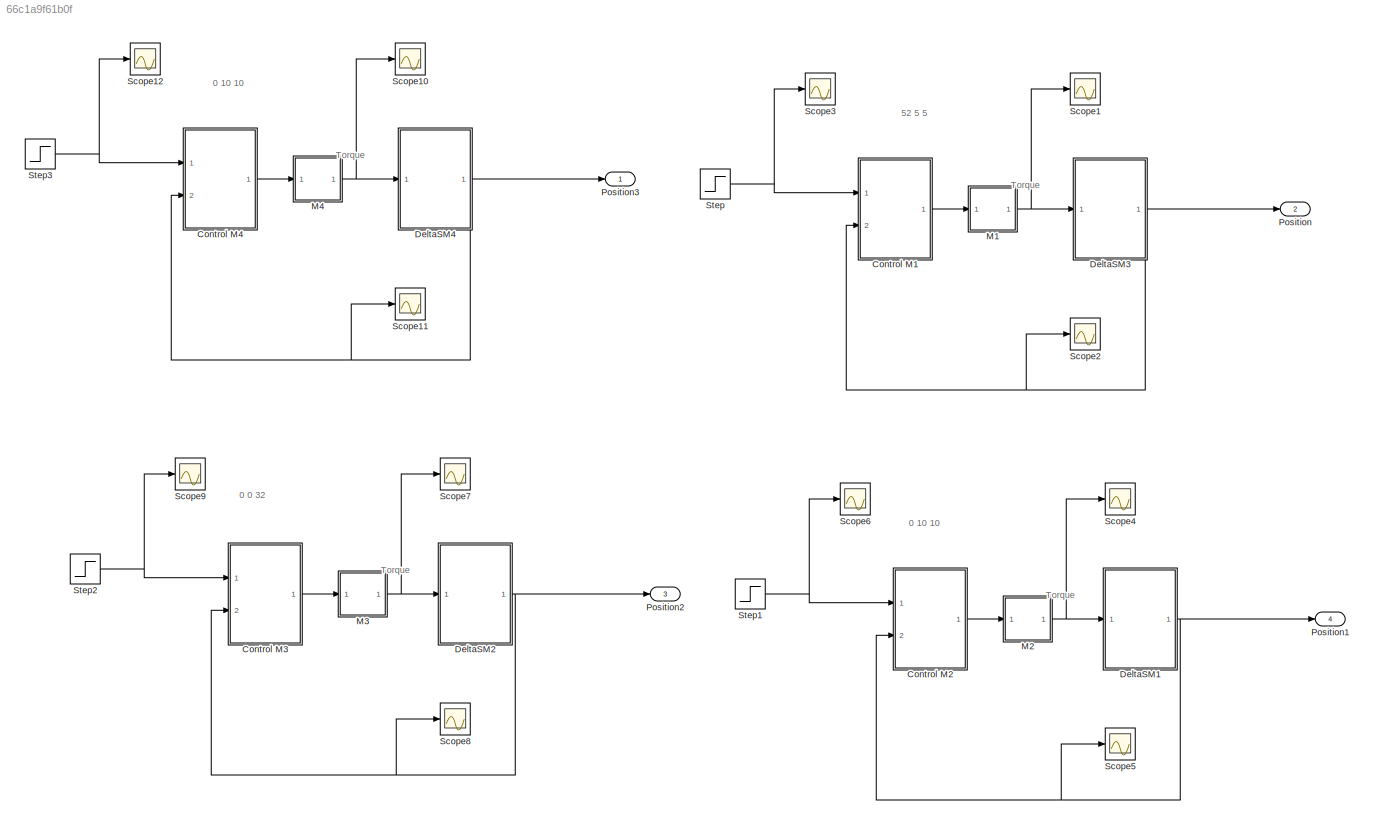
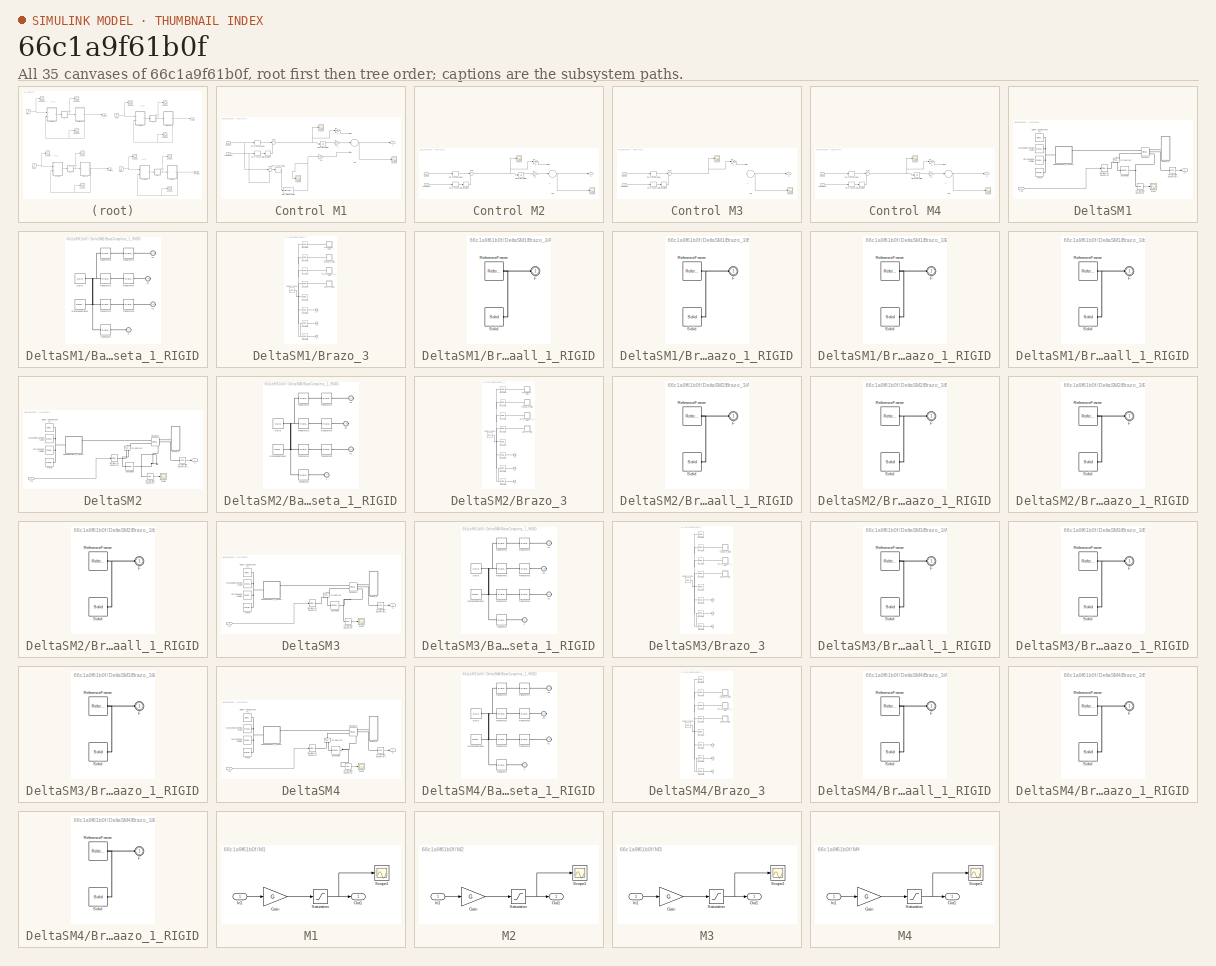
[diagram: thumbnail index - all 35 canvases of the model, root first then tree order]
MODEL slx_66c1a9f61b0f
KIND model
CONFIG InitFcn =  %Fs=0.44;\n% Fc=0.7947;\n%\n%Fs=0.3737+0.3\n%Fc=0.5379+0.1\n\n\n%Fs=0.3737+0\n%Fc=0.5379+0.15\n\n\n\nP=32/8;\nI=0*1000/2048;\nD=0*4/1000\n%TLimit=4;
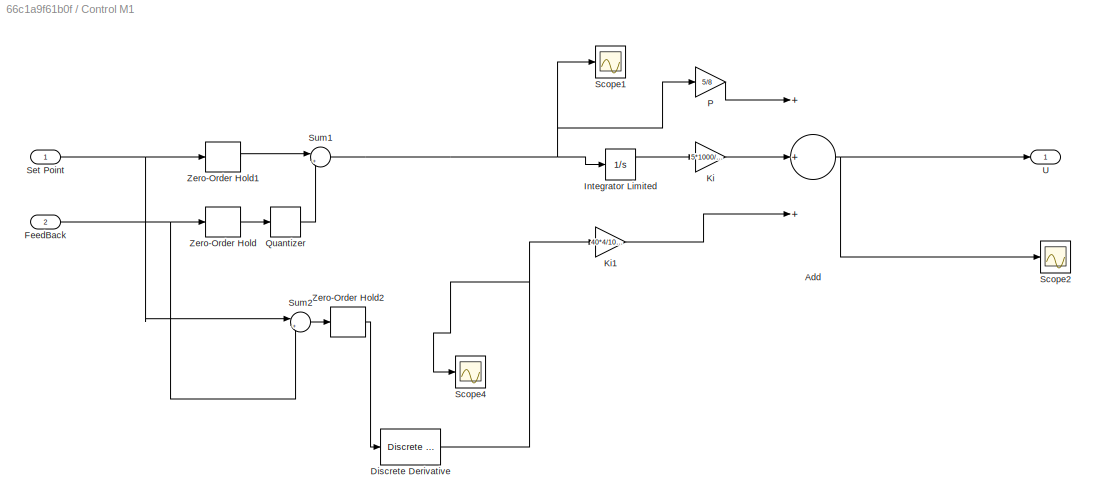
BLOCK [SubSystem] Control M1
  Ports = [2, 1]
  RequestExecContextInheritance = off
BLOCK [Sum] Control M1/Add
  InputSameDT = off
  Inputs = +++
  OutDataTypeStr = Inherit: Inherit via internal rule
  Ports = [3, 1]
  SaturateOnIntegerOverflow = off
BLOCK [Reference] Control M1/Discrete Derivative  REF=simulink/Discrete/Discrete Derivative
  DoSatur = off
  ICPrevScaledInput = 0.0
  InputProcessing = Inherited
  LockScale = off
  OutDataType = fixdt(1, 16)
  OutDataTypeStr = Inherit: Inherit via internal rule
  OutMax = []
  OutMin = []
  OutScaling = 2^-10
  OutputDataTypeScalingMode = Inherit via internal rule
  Ports = [1, 1]
  RndMeth = Floor
  SourceBlock = simulink/Discrete/Discrete Derivative
  SourceType = Discrete Derivative
  gainval = 1.0
BLOCK [Inport] Control M1/FeedBack
  IconDisplay = Port number
  Port = 2
BLOCK [Integrator] Control M1/Integrator Limited
  LimitOutput = on
  LowerSaturationLimit = -Ilimit
  Ports = [1, 2]
  ShowSaturationPort = on
  UpperSaturationLimit = Ilimit
BLOCK [Gain] Control M1/Ki
  Gain = 5*1000/2048
  OutDataTypeStr = Inherit: Inherit via internal rule
  ParamDataTypeStr = Inherit: Inherit via internal rule
  SaturateOnIntegerOverflow = off
BLOCK [Gain] Control M1/Ki1
  Gain = 40*4/1000
  OutDataTypeStr = Inherit: Inherit via internal rule
  ParamDataTypeStr = Inherit: Inherit via internal rule
  SaturateOnIntegerOverflow = off
BLOCK [Gain] Control M1/P
  Gain = 5/8
  OutDataTypeStr = Inherit: Inherit via internal rule
  ParamDataTypeStr = Inherit: Inherit via internal rule
  SaturateOnIntegerOverflow = off
BLOCK [Quantizer] Control M1/Quantizer
  QuantizationInterval = 0.0014
BLOCK [Scope] Control M1/Scope1
  Floating = off
  LimitDataPoints = off
  NumInputPorts = 1
  Ports = [1]
  SaveName = ScopeData4
  ShowLegends = off
  ZoomMode = xonly
BLOCK [Scope] Control M1/Scope2
  Floating = off
  LimitDataPoints = off
  NumInputPorts = 1
  Ports = [1]
  SaveName = ScopeData5
  ShowLegends = off
  ZoomMode = xonly
BLOCK [Scope] Control M1/Scope4
  Floating = off
  LimitDataPoints = off
  NumInputPorts = 1
  Ports = [1]
  SaveName = ScopeData8
  ShowLegends = off
  YMax = 349.066
  YMin = 349.066
  ZoomMode = yonly
BLOCK [Inport] Control M1/Set Point
  IconDisplay = Port number
BLOCK [Sum] Control M1/Sum1
  IconShape = round
  InputSameDT = off
  Inputs = |+-
  OutDataTypeStr = Inherit: Inherit via internal rule
  Ports = [2, 1]
  SaturateOnIntegerOverflow = off
BLOCK [Sum] Control M1/Sum2
  IconShape = round
  InputSameDT = off
  Inputs = |+-
  OutDataTypeStr = Inherit: Inherit via internal rule
  Ports = [2, 1]
  SaturateOnIntegerOverflow = off
BLOCK [Outport] Control M1/U
  IconDisplay = Port number
BLOCK [ZeroOrderHold] Control M1/Zero-Order Hold
  SampleTime = 0.0001
BLOCK [ZeroOrderHold] Control M1/Zero-Order Hold1
  SampleTime = 0.01
BLOCK [ZeroOrderHold] Control M1/Zero-Order Hold2
  SampleTime = 0.0001
BLOCK [SubSystem] Control M2
  Ports = [2, 1]
  RequestExecContextInheritance = off
BLOCK [Sum] Control M2/Add
  InputSameDT = off
  Inputs = +++
  OutDataTypeStr = Inherit: Inherit via internal rule
  Ports = [3, 1]
  SaturateOnIntegerOverflow = off
BLOCK [Inport] Control M2/FeedBack
  IconDisplay = Port number
  Port = 2
BLOCK [Integrator] Control M2/Integrator Limited
  LimitOutput = on
  LowerSaturationLimit = -Ilimit
  Ports = [1, 2]
  ShowSaturationPort = on
  UpperSaturationLimit = Ilimit
BLOCK [Gain] Control M2/Ki
  Gain = 10*1000/2048
  OutDataTypeStr = Inherit: Inherit via internal rule
  ParamDataTypeStr = Inherit: Inherit via internal rule
  SaturateOnIntegerOverflow = off
BLOCK [Gain] Control M2/P
  Gain = 10/8
  OutDataTypeStr = Inherit: Inherit via internal rule
  ParamDataTypeStr = Inherit: Inherit via internal rule
  SaturateOnIntegerOverflow = off
BLOCK [Quantizer] Control M2/Quantizer
  QuantizationInterval = 0.0014
BLOCK [Scope] Control M2/Scope1
  Floating = off
  LimitDataPoints = off
  NumInputPorts = 1
  Ports = [1]
  SaveName = ScopeData4
  ShowLegends = off
  ZoomMode = xonly
BLOCK [Scope] Control M2/Scope2
  Floating = off
  LimitDataPoints = off
  NumInputPorts = 1
  Ports = [1]
  SaveName = ScopeData5
  ShowLegends = off
  ZoomMode = xonly
BLOCK [Inport] Control M2/Set Point
  IconDisplay = Port number
BLOCK [Sum] Control M2/Sum1
  IconShape = round
  InputSameDT = off
  Inputs = |+-
  OutDataTypeStr = Inherit: Inherit via internal rule
  Ports = [2, 1]
  SaturateOnIntegerOverflow = off
BLOCK [Outport] Control M2/U
  IconDisplay = Port number
BLOCK [ZeroOrderHold] Control M2/Zero-Order Hold
  SampleTime = 0.0001
BLOCK [ZeroOrderHold] Control M2/Zero-Order Hold1
  SampleTime = 0.01
BLOCK [SubSystem] Control M3
  Ports = [2, 1]
  RequestExecContextInheritance = off
BLOCK [Sum] Control M3/Add
  InputSameDT = off
  Inputs = +++
  OutDataTypeStr = Inherit: Inherit via internal rule
  Ports = [3, 1]
  SaturateOnIntegerOverflow = off
BLOCK [Inport] Control M3/FeedBack
  IconDisplay = Port number
  Port = 2
BLOCK [Gain] Control M3/P
  Gain = 32/8
  OutDataTypeStr = Inherit: Inherit via internal rule
  ParamDataTypeStr = Inherit: Inherit via internal rule
  SaturateOnIntegerOverflow = off
BLOCK [Quantizer] Control M3/Quantizer
  QuantizationInterval = 0.0014
BLOCK [Scope] Control M3/Scope1
  Floating = off
  LimitDataPoints = off
  NumInputPorts = 1
  Ports = [1]
  SaveName = ScopeData4
  ShowLegends = off
  ZoomMode = xonly
BLOCK [Scope] Control M3/Scope2
  Floating = off
  LimitDataPoints = off
  NumInputPorts = 1
  Ports = [1]
  SaveName = ScopeData5
  ShowLegends = off
  ZoomMode = xonly
BLOCK [Inport] Control M3/Set Point
  IconDisplay = Port number
BLOCK [Sum] Control M3/Sum1
  IconShape = round
  InputSameDT = off
  Inputs = |+-
  OutDataTypeStr = Inherit: Inherit via internal rule
  Ports = [2, 1]
  SaturateOnIntegerOverflow = off
BLOCK [Outport] Control M3/U
  IconDisplay = Port number
BLOCK [ZeroOrderHold] Control M3/Zero-Order Hold
  SampleTime = 0.0001
BLOCK [ZeroOrderHold] Control M3/Zero-Order Hold1
  SampleTime = 0.01
BLOCK [SubSystem] Control M4
  Ports = [2, 1]
  RequestExecContextInheritance = off
BLOCK [Sum] Control M4/Add
  InputSameDT = off
  Inputs = +++
  OutDataTypeStr = Inherit: Inherit via internal rule
  Ports = [3, 1]
  SaturateOnIntegerOverflow = off
BLOCK [Inport] Control M4/FeedBack
  IconDisplay = Port number
  Port = 2
BLOCK [Integrator] Control M4/Integrator Limited
  LimitOutput = on
  LowerSaturationLimit = -Ilimit
  Ports = [1, 2]
  ShowSaturationPort = on
  UpperSaturationLimit = Ilimit
BLOCK [Gain] Control M4/Ki
  Gain = 10*1000/2048
  OutDataTypeStr = Inherit: Inherit via internal rule
  ParamDataTypeStr = Inherit: Inherit via internal rule
  SaturateOnIntegerOverflow = off
BLOCK [Gain] Control M4/P
  Gain = 10/8
  OutDataTypeStr = Inherit: Inherit via internal rule
  ParamDataTypeStr = Inherit: Inherit via internal rule
  SaturateOnIntegerOverflow = off
BLOCK [Quantizer] Control M4/Quantizer
  QuantizationInterval = 0.0014
BLOCK [Scope] Control M4/Scope1
  Floating = off
  LimitDataPoints = off
  NumInputPorts = 1
  Ports = [1]
  SaveName = ScopeData4
  ShowLegends = off
  ZoomMode = xonly
BLOCK [Scope] Control M4/Scope2
  Floating = off
  LimitDataPoints = off
  NumInputPorts = 1
  Ports = [1]
  SaveName = ScopeData5
  ShowLegends = off
  ZoomMode = xonly
BLOCK [Inport] Control M4/Set Point
  IconDisplay = Port number
BLOCK [Sum] Control M4/Sum1
  IconShape = round
  InputSameDT = off
  Inputs = |+-
  OutDataTypeStr = Inherit: Inherit via internal rule
  Ports = [2, 1]
  SaturateOnIntegerOverflow = off
BLOCK [Outport] Control M4/U
  IconDisplay = Port number
BLOCK [ZeroOrderHold] Control M4/Zero-Order Hold
  SampleTime = 0.0001
BLOCK [ZeroOrderHold] Control M4/Zero-Order Hold1
  SampleTime = 0.01
BLOCK [SubSystem] DeltaSM1
  Ports = [1, 1]
  RequestExecContextInheritance = off
BLOCK [SubSystem] DeltaSM1/BaseCompleta_1_RIGID
  Ports = [0, 0, 0, 0, 0, 1, 3]
  RequestExecContextInheritance = off
BLOCK [PMIOPort] DeltaSM1/BaseCompleta_1_RIGID/F
  Port = 4
  Side = Left
BLOCK [PMIOPort] DeltaSM1/BaseCompleta_1_RIGID/F1
  Port = 2
  Side = Right
BLOCK [PMIOPort] DeltaSM1/BaseCompleta_1_RIGID/F2
  Port = 3
  Side = Right
BLOCK [PMIOPort] DeltaSM1/BaseCompleta_1_RIGID/F3
  Port = 1
  Side = Right
BLOCK [Reference] DeltaSM1/BaseCompleta_1_RIGID/ReferenceFrame  REF=sm_lib/Frames and
Transforms/Reference
Frame
  BlockFunction = simmechanics.library.frames_transforms.reference_frame
  ClassName = ReferenceFrame
  Ports = [0, 0, 0, 0, 0, 0, 1]
  SourceBlock = sm_lib/Frames and\nTransforms/Reference\nFrame
  SourceType = Reference\nFrame
BLOCK [Reference] DeltaSM1/BaseCompleta_1_RIGID/Solid  REF=sm_lib/Body Elements/Solid
  BlockFunction = simmechanics.library.body_elements.solid
  BrickDimensionUnits = m
  BrickDimensions = [1 1 1]
  CenterOfMass = [-4.5062155923240521 0 -4.277486502253776]
  CenterOfMassUnits = mm
  ClassName = Solid
  CylinderLength = 1
  CylinderLengthUnits = m
  CylinderRadius = 1
  CylinderRadiusUnits = m
  Density = 1000
  DensityBased = on
  DensityUnits = kg/(m^3)
  EllipsoidRadii = [1 1 1]
  EllipsoidRadiiUnits = m
  ExtGeomFileName = BaseCompleta_Predeterminado_sldprt.STL
  ExtGeomFileType = STL
  ExtGeomFileUnits = mm
  ExtrusionCrossSection = [1 1; -1 1; -1 -1; 1 -1]
  ExtrusionCrossSectionUnits = m
  ExtrusionLength = 1
  ExtrusionLengthUnits = m
  GeometryShape = FromFile
  GraphicAmbientColor = [0.15 0.15 0.15 1.0]
  GraphicDiffuseColor = [0.792156862745098 0.81960784313725488 0.93333333333333335]
  GraphicEmissiveColor = [0.0 0.0 0.0 1.0]
  GraphicOpacity = 1
  GraphicShininess = 75
  GraphicSpecularColor = [0.5 0.5 0.5 1.0]
  GraphicType = FromGeometry
  GraphicVisPropType = SimpleVisualProperties
  InertiaType = Custom
  MarkerShape = Sphere
  MarkerSize = 10
  MarkerSizeUnits = m
  Mass = 0.13810452721903221
  MassUnits = kg
  MomentsOfInertia = [258.59197461879108 258.58810647683998 484.80194129818653]
  MomentsOfInertiaUnits = kg*mm^2
  PolygonNumSides = 3
  PolygonOuterRadius = 1
  PolygonOuterRadiusUnits = m
  Ports = [0, 0, 0, 0, 0, 0, 1]
  ProductsOfInertia = [0 0.0058178041696079815 0]
  ProductsOfInertiaUnits = kg*mm^2
  RectangleSize = [1 1]
  RectangleSizeUnits = m
  RevolutionAngle = 180
  RevolutionAngleUnits = deg
  RevolutionCrossSection = [1 1; 1 -1; 2 -1; 2 1]
  RevolutionCrossSectionUnits = m
  RevolutionExtent = Full
  SourceBlock = sm_lib/Body Elements/Solid
  SourceType = Solid
  SphereRadius = 1
  SphereRadiusUnits = m
BLOCK [Reference] DeltaSM1/BaseCompleta_1_RIGID/Transform  REF=sm_lib/Frames and
Transforms/Rigid
Transform
  BaseAlignAxisA = +Y
  BaseAlignAxisB = +Z
  BlockFunction = simmechanics.library.frames_transforms.rigid_transform
  ClassName = RigidTransform
  FollAlignAxisA = +X
  FollAlignAxisB = +Y
  Ports = [0, 0, 0, 0, 0, 1, 1]
  RotationAngle = 0
  RotationAngleUnits = rad
  RotationArbitraryAxis = [0 0 0]
  RotationMethod = ArbitraryAxis
  RotationStandardAxis = +Z
  SourceBlock = sm_lib/Frames and\nTransforms/Rigid\nTransform
  SourceType = Rigid\nTransform
  TranslationCartesianOffset = [0 0 0]
  TranslationLengthUnit = mm
  TranslationMethod = Cartesian
  TranslationROffset = 0
  TranslationROffsetUnits = m
  TranslationStandardAxis = +Z
  TranslationStandardOffset = 0
  TranslationThetaOffset = 0
  TranslationThetaOffsetUnits = deg
  TranslationZOffset = 0
  TranslationZOffsetUnits = m
BLOCK [Reference] DeltaSM1/BaseCompleta_1_RIGID/Transform1  REF=sm_lib/Frames and
Transforms/Rigid
Transform
  BaseAlignAxisA = +Y
  BaseAlignAxisB = +Z
  BlockFunction = simmechanics.library.frames_transforms.rigid_transform
  ClassName = RigidTransform
  FollAlignAxisA = +X
  FollAlignAxisB = +Y
  Ports = [0, 0, 0, 0, 0, 1, 1]
  RotationAngle = 2.4188584057763776
  RotationAngleUnits = rad
  RotationArbitraryAxis = [-0.37796447300922714 -0.6546536707079772 0.6546536707079772]
  RotationMethod = ArbitraryAxis
  RotationStandardAxis = +Z
  SourceBlock = sm_lib/Frames and\nTransforms/Rigid\nTransform
  SourceType = Rigid\nTransform
  TranslationCartesianOffset = [-44.010734985004049 49.934600438418464 -24.000000000000014]
  TranslationLengthUnit = mm
  TranslationMethod = Cartesian
  TranslationROffset = 0
  TranslationROffsetUnits = m
  TranslationStandardAxis = +Z
  TranslationStandardOffset = 0
  TranslationThetaOffset = 0
  TranslationThetaOffsetUnits = deg
  TranslationZOffset = 0
  TranslationZOffsetUnits = m
BLOCK [Reference] DeltaSM1/BaseCompleta_1_RIGID/Transform2  REF=sm_lib/Frames and
Transforms/Rigid
Transform
  BaseAlignAxisA = +Y
  BaseAlignAxisB = +Z
  BlockFunction = simmechanics.library.frames_transforms.rigid_transform
  ClassName = RigidTransform
  FollAlignAxisA = +X
  FollAlignAxisB = +Y
  Ports = [0, 0, 0, 0, 0, 1, 1]
  RotationAngle = 2.0943951023931953
  RotationAngleUnits = rad
  RotationArbitraryAxis = [-0.57735026918962584 -0.57735026918962584 -0.57735026918962584]
  RotationMethod = ArbitraryAxis
  RotationStandardAxis = +Z
  SourceBlock = sm_lib/Frames and\nTransforms/Rigid\nTransform
  SourceType = Rigid\nTransform
  TranslationCartesianOffset = [58.5 9.2499999999999982 -24.000000000000004]
  TranslationLengthUnit = mm
  TranslationMethod = Cartesian
  TranslationROffset = 0
  TranslationROffsetUnits = m
  TranslationStandardAxis = +Z
  TranslationStandardOffset = 0
  TranslationThetaOffset = 0
  TranslationThetaOffsetUnits = deg
  TranslationZOffset = 0
  TranslationZOffsetUnits = m
BLOCK [Reference] DeltaSM1/BaseCompleta_1_RIGID/Transform3  REF=sm_lib/Frames and
Transforms/Rigid
Transform
  BaseAlignAxisA = +Y
  BaseAlignAxisB = +Z
  BlockFunction = simmechanics.library.frames_transforms.rigid_transform
  ClassName = RigidTransform
  FollAlignAxisA = +X
  FollAlignAxisB = +Y
  Ports = [0, 0, 0, 0, 0, 1, 1]
  RotationAngle = 1.8234765819369754
  RotationAngleUnits = rad
  RotationArbitraryAxis = [-0.77459666924148329 -0.44721359549995809 0.44721359549995809]
  RotationMethod = ArbitraryAxis
  RotationStandardAxis = +Z
  SourceBlock = sm_lib/Frames and\nTransforms/Rigid\nTransform
  SourceType = Rigid\nTransform
  TranslationCartesianOffset = [-27.989265014991929 -59.184600438418421 -24.000000000000007]
  TranslationLengthUnit = mm
  TranslationMethod = Cartesian
  TranslationROffset = 0
  TranslationROffsetUnits = m
  TranslationStandardAxis = +Z
  TranslationStandardOffset = 0
  TranslationThetaOffset = 0
  TranslationThetaOffsetUnits = deg
  TranslationZOffset = 0
  TranslationZOffsetUnits = m
BLOCK [Reference] DeltaSM1/BaseCompleta_1_RIGID/Transform4  REF=sm_lib/Frames and
Transforms/Rigid
Transform
  BaseAlignAxisA = +Y
  BaseAlignAxisB = +Z
  BlockFunction = simmechanics.library.frames_transforms.rigid_transform
  ClassName = RigidTransform
  FollAlignAxisA = +X
  FollAlignAxisB = +Y
  Ports = [0, 0, 0, 0, 0, 1, 1]
  RotationAngle = -90
  RotationAngleUnits = deg
  RotationArbitraryAxis = [0 0 1]
  RotationMethod = ArbitraryAxis
  RotationStandardAxis = +Z
  SourceBlock = sm_lib/Frames and\nTransforms/Rigid\nTransform
  SourceType = Rigid\nTransform
  TranslationCartesianOffset = [0 0 0]
  TranslationLengthUnit = mm
  TranslationMethod = Cartesian
  TranslationROffset = 0
  TranslationROffsetUnits = m
  TranslationStandardAxis = +Z
  TranslationStandardOffset = 0
  TranslationThetaOffset = 0
  TranslationThetaOffsetUnits = deg
  TranslationZOffset = 0
  TranslationZOffsetUnits = m
BLOCK [Reference] DeltaSM1/BaseCompleta_1_RIGID/Transform5  REF=sm_lib/Frames and
Transforms/Rigid
Transform
  BaseAlignAxisA = +Y
  BaseAlignAxisB = +Z
  BlockFunction = simmechanics.library.frames_transforms.rigid_transform
  ClassName = RigidTransform
  FollAlignAxisA = +X
  FollAlignAxisB = +Y
  Ports = [0, 0, 0, 0, 0, 1, 1]
  RotationAngle = 0
  RotationAngleUnits = deg
  RotationArbitraryAxis = [0 0 0]
  RotationMethod = ArbitraryAxis
  RotationStandardAxis = +Z
  SourceBlock = sm_lib/Frames and\nTransforms/Rigid\nTransform
  SourceType = Rigid\nTransform
  TranslationCartesianOffset = [0 0 0]
  TranslationLengthUnit = mm
  TranslationMethod = Cartesian
  TranslationROffset = 0
  TranslationROffsetUnits = m
  TranslationStandardAxis = +Z
  TranslationStandardOffset = 0
  TranslationThetaOffset = 0
  TranslationThetaOffsetUnits = deg
  TranslationZOffset = 0
  TranslationZOffsetUnits = m
BLOCK [Reference] DeltaSM1/BaseCompleta_1_RIGID/Transform6  REF=sm_lib/Frames and
Transforms/Rigid
Transform
  BaseAlignAxisA = +Y
  BaseAlignAxisB = +Z
  BlockFunction = simmechanics.library.frames_transforms.rigid_transform
  ClassName = RigidTransform
  FollAlignAxisA = +X
  FollAlignAxisB = +Y
  Ports = [0, 0, 0, 0, 0, 1, 1]
  RotationAngle = 90
  RotationAngleUnits = deg
  RotationArbitraryAxis = [0 0 1]
  RotationMethod = ArbitraryAxis
  RotationStandardAxis = +Z
  SourceBlock = sm_lib/Frames and\nTransforms/Rigid\nTransform
  SourceType = Rigid\nTransform
  TranslationCartesianOffset = [0 0 0]
  TranslationLengthUnit = mm
  TranslationMethod = Cartesian
  TranslationROffset = 0
  TranslationROffsetUnits = m
  TranslationStandardAxis = +Z
  TranslationStandardOffset = 0
  TranslationThetaOffset = 0
  TranslationThetaOffsetUnits = deg
  TranslationZOffset = 0
  TranslationZOffsetUnits = m
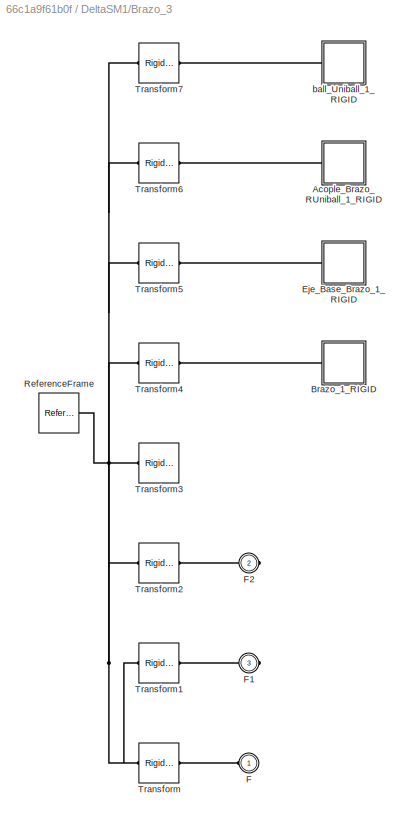
BLOCK [SubSystem] DeltaSM1/Brazo_3
  Ports = [0, 0, 0, 0, 0, 1, 2]
  RequestExecContextInheritance = off
BLOCK [SubSystem] DeltaSM1/Brazo_3/Acople_Brazo_RUniball_1_RIGID
  Ports = [0, 0, 0, 0, 0, 1]
  RequestExecContextInheritance = off
BLOCK [PMIOPort] DeltaSM1/Brazo_3/Acople_Brazo_RUniball_1_RIGID/F
  Port = 1
  Side = Left
BLOCK [Reference] DeltaSM1/Brazo_3/Acople_Brazo_RUniball_1_RIGID/ReferenceFrame  REF=sm_lib/Frames and
Transforms/Reference
Frame
  BlockFunction = simmechanics.library.frames_transforms.reference_frame
  ClassName = ReferenceFrame
  Ports = [0, 0, 0, 0, 0, 0, 1]
  SourceBlock = sm_lib/Frames and\nTransforms/Reference\nFrame
  SourceType = Reference\nFrame
BLOCK [Reference] DeltaSM1/Brazo_3/Acople_Brazo_RUniball_1_RIGID/Solid  REF=sm_lib/Body Elements/Solid
  BlockFunction = simmechanics.library.body_elements.solid
  BrickDimensionUnits = m
  BrickDimensions = [1 1 1]
  CenterOfMass = [0 0 24.965115751248298]
  CenterOfMassUnits = mm
  ClassName = Solid
  CylinderLength = 1
  CylinderLengthUnits = m
  CylinderRadius = 1
  CylinderRadiusUnits = m
  Density = 1000
  DensityBased = on
  DensityUnits = kg/(m^3)
  EllipsoidRadii = [1 1 1]
  EllipsoidRadiiUnits = m
  ExtGeomFileName = Acople-Brazo-RUniball_Predeterminado_sldprt.STL
  ExtGeomFileType = STL
  ExtGeomFileUnits = mm
  ExtrusionCrossSection = [1 1; -1 1; -1 -1; 1 -1]
  ExtrusionCrossSectionUnits = m
  ExtrusionLength = 1
  ExtrusionLengthUnits = m
  GeometryShape = FromFile
  GraphicAmbientColor = [0.15 0.15 0.15 1.0]
  GraphicDiffuseColor = [0.6470588235294118 0.61960784313725492 0.58823529411764708]
  GraphicEmissiveColor = [0.0 0.0 0.0 1.0]
  GraphicOpacity = 1
  GraphicShininess = 75
  GraphicSpecularColor = [0.5 0.5 0.5 1.0]
  GraphicType = FromGeometry
  GraphicVisPropType = SimpleVisualProperties
  InertiaType = Custom
  MarkerShape = Sphere
  MarkerSize = 10
  MarkerSizeUnits = m
  Mass = 0.017544554041200817
  MassUnits = kg
  MomentsOfInertia = [2.6343187710862899 2.6343187710862899 0.27673388244730435]
  MomentsOfInertiaUnits = kg*mm^2
  PolygonNumSides = 3
  PolygonOuterRadius = 1
  PolygonOuterRadiusUnits = m
  Ports = [0, 0, 0, 0, 0, 0, 1]
  ProductsOfInertia = [0 0 0]
  ProductsOfInertiaUnits = kg*mm^2
  RectangleSize = [1 1]
  RectangleSizeUnits = m
  RevolutionAngle = 180
  RevolutionAngleUnits = deg
  RevolutionCrossSection = [1 1; 1 -1; 2 -1; 2 1]
  RevolutionCrossSectionUnits = m
  RevolutionExtent = Full
  SourceBlock = sm_lib/Body Elements/Solid
  SourceType = Solid
  SphereRadius = 1
  SphereRadiusUnits = m
BLOCK [SubSystem] DeltaSM1/Brazo_3/Brazo_1_RIGID
  Ports = [0, 0, 0, 0, 0, 1]
  RequestExecContextInheritance = off
BLOCK [PMIOPort] DeltaSM1/Brazo_3/Brazo_1_RIGID/F
  Port = 1
  Side = Left
BLOCK [Reference] DeltaSM1/Brazo_3/Brazo_1_RIGID/ReferenceFrame  REF=sm_lib/Frames and
Transforms/Reference
Frame
  BlockFunction = simmechanics.library.frames_transforms.reference_frame
  ClassName = ReferenceFrame
  Ports = [0, 0, 0, 0, 0, 0, 1]
  SourceBlock = sm_lib/Frames and\nTransforms/Reference\nFrame
  SourceType = Reference\nFrame
BLOCK [Reference] DeltaSM1/Brazo_3/Brazo_1_RIGID/Solid  REF=sm_lib/Body Elements/Solid
  BlockFunction = simmechanics.library.body_elements.solid
  BrickDimensionUnits = m
  BrickDimensions = [1 1 1]
  CenterOfMass = [0 15.149188933492065 3.1999999999999993]
  CenterOfMassUnits = mm
  ClassName = Solid
  CylinderLength = 1
  CylinderLengthUnits = m
  CylinderRadius = 1
  CylinderRadiusUnits = m
  Density = 1000
  DensityBased = on
  DensityUnits = kg/(m^3)
  EllipsoidRadii = [1 1 1]
  EllipsoidRadiiUnits = m
  ExtGeomFileName = Brazo_Predeterminado_sldprt.STL
  ExtGeomFileType = STL
  ExtGeomFileUnits = mm
  ExtrusionCrossSection = [1 1; -1 1; -1 -1; 1 -1]
  ExtrusionCrossSectionUnits = m
  ExtrusionLength = 1
  ExtrusionLengthUnits = m
  GeometryShape = FromFile
  GraphicAmbientColor = [0.15 0.15 0.15 1.0]
  GraphicDiffuseColor = [0.89803921568627454 0.91764705882352937 0.92941176470588238]
  GraphicEmissiveColor = [0.0 0.0 0.0 1.0]
  GraphicOpacity = 1
  GraphicShininess = 75
  GraphicSpecularColor = [0.5 0.5 0.5 1.0]
  GraphicType = FromGeometry
  GraphicVisPropType = SimpleVisualProperties
  InertiaType = Custom
  MarkerShape = Sphere
  MarkerSize = 10
  MarkerSizeUnits = m
  Mass = 0.041547055126806294
  MassUnits = kg
  MomentsOfInertia = [103.29833751524856 1.1755842324920094 104.19029385140823]
  MomentsOfInertiaUnits = kg*mm^2
  PolygonNumSides = 3
  PolygonOuterRadius = 1
  PolygonOuterRadiusUnits = m
  Ports = [0, 0, 0, 0, 0, 0, 1]
  ProductsOfInertia = [0 0 0]
  ProductsOfInertiaUnits = kg*mm^2
  RectangleSize = [1 1]
  RectangleSizeUnits = m
  RevolutionAngle = 180
  RevolutionAngleUnits = deg
  RevolutionCrossSection = [1 1; 1 -1; 2 -1; 2 1]
  RevolutionCrossSectionUnits = m
  RevolutionExtent = Full
  SourceBlock = sm_lib/Body Elements/Solid
  SourceType = Solid
  SphereRadius = 1
  SphereRadiusUnits = m
BLOCK [SubSystem] DeltaSM1/Brazo_3/Eje_Base_Brazo_1_RIGID
  Ports = [0, 0, 0, 0, 0, 1]
  RequestExecContextInheritance = off
BLOCK [PMIOPort] DeltaSM1/Brazo_3/Eje_Base_Brazo_1_RIGID/F
  Port = 1
  Side = Left
BLOCK [Reference] DeltaSM1/Brazo_3/Eje_Base_Brazo_1_RIGID/ReferenceFrame  REF=sm_lib/Frames and
Transforms/Reference
Frame
  BlockFunction = simmechanics.library.frames_transforms.reference_frame
  ClassName = ReferenceFrame
  Ports = [0, 0, 0, 0, 0, 0, 1]
  SourceBlock = sm_lib/Frames and\nTransforms/Reference\nFrame
  SourceType = Reference\nFrame
BLOCK [Reference] DeltaSM1/Brazo_3/Eje_Base_Brazo_1_RIGID/Solid  REF=sm_lib/Body Elements/Solid
  BlockFunction = simmechanics.library.body_elements.solid
  BrickDimensionUnits = m
  BrickDimensions = [1 1 1]
  CenterOfMass = [0 0 33.334706918231461]
  CenterOfMassUnits = mm
  ClassName = Solid
  CylinderLength = 1
  CylinderLengthUnits = m
  CylinderRadius = 1
  CylinderRadiusUnits = m
  Density = 1000
  DensityBased = on
  DensityUnits = kg/(m^3)
  EllipsoidRadii = [1 1 1]
  EllipsoidRadiiUnits = m
  ExtGeomFileName = Eje-Base-Brazo_Predeterminado_sldprt.STL
  ExtGeomFileType = STL
  ExtGeomFileUnits = mm
  ExtrusionCrossSection = [1 1; -1 1; -1 -1; 1 -1]
  ExtrusionCrossSectionUnits = m
  ExtrusionLength = 1
  ExtrusionLengthUnits = m
  GeometryShape = FromFile
  GraphicAmbientColor = [0.15 0.15 0.15 1.0]
  GraphicDiffuseColor = [0.6470588235294118 0.61960784313725492 0.58823529411764708]
  GraphicEmissiveColor = [0.0 0.0 0.0 1.0]
  GraphicOpacity = 1
  GraphicShininess = 75
  GraphicSpecularColor = [0.5 0.5 0.5 1.0]
  GraphicType = FromGeometry
  GraphicVisPropType = SimpleVisualProperties
  InertiaType = Custom
  MarkerShape = Sphere
  MarkerSize = 10
  MarkerSizeUnits = m
  Mass = 0.020144835731794566
  MassUnits = kg
  MomentsOfInertia = [5.86336391941924 5.86336391941924 0.27724265206973575]
  MomentsOfInertiaUnits = kg*mm^2
  PolygonNumSides = 3
  PolygonOuterRadius = 1
  PolygonOuterRadiusUnits = m
  Ports = [0, 0, 0, 0, 0, 0, 1]
  ProductsOfInertia = [0 0 0]
  ProductsOfInertiaUnits = kg*mm^2
  RectangleSize = [1 1]
  RectangleSizeUnits = m
  RevolutionAngle = 180
  RevolutionAngleUnits = deg
  RevolutionCrossSection = [1 1; 1 -1; 2 -1; 2 1]
  RevolutionCrossSectionUnits = m
  RevolutionExtent = Full
  SourceBlock = sm_lib/Body Elements/Solid
  SourceType = Solid
  SphereRadius = 1
  SphereRadiusUnits = m
BLOCK [PMIOPort] DeltaSM1/Brazo_3/F
  Port = 1
  Side = Left
BLOCK [PMIOPort] DeltaSM1/Brazo_3/F1
  Port = 3
  Side = Right
BLOCK [PMIOPort] DeltaSM1/Brazo_3/F2
  Port = 2
  Side = Right
BLOCK [Reference] DeltaSM1/Brazo_3/ReferenceFrame  REF=sm_lib/Frames and
Transforms/Reference
Frame
  BlockFunction = simmechanics.library.frames_transforms.reference_frame
  ClassName = ReferenceFrame
  Ports = [0, 0, 0, 0, 0, 0, 1]
  SourceBlock = sm_lib/Frames and\nTransforms/Reference\nFrame
  SourceType = Reference\nFrame
BLOCK [Reference] DeltaSM1/Brazo_3/Transform  REF=sm_lib/Frames and
Transforms/Rigid
Transform
  BaseAlignAxisA = +Y
  BaseAlignAxisB = +Z
  BlockFunction = simmechanics.library.frames_transforms.rigid_transform
  ClassName = RigidTransform
  FollAlignAxisA = +X
  FollAlignAxisB = +Y
  Ports = [0, 0, 0, 0, 0, 1, 1]
  RotationAngle = 4.5159153695772639e-16
  RotationAngleUnits = rad
  RotationArbitraryAxis = [0.54102487993210191 -0.84100658695069364 -1.0273831376344183e-16]
  RotationMethod = ArbitraryAxis
  RotationStandardAxis = +Z
  SourceBlock = sm_lib/Frames and\nTransforms/Rigid\nTransform
  SourceType = Rigid\nTransform
  TranslationCartesianOffset = [-6.0000000000000426 124.97640195117162 -12.449999999999967]
  TranslationLengthUnit = mm
  TranslationMethod = Cartesian
  TranslationROffset = 0
  TranslationROffsetUnits = m
  TranslationStandardAxis = +Z
  TranslationStandardOffset = 0
  TranslationThetaOffset = 0
  TranslationThetaOffsetUnits = deg
  TranslationZOffset = 0
  TranslationZOffsetUnits = m
BLOCK [Reference] DeltaSM1/Brazo_3/Transform1  REF=sm_lib/Frames and
Transforms/Rigid
Transform
  BaseAlignAxisA = +Y
  BaseAlignAxisB = +Z
  BlockFunction = simmechanics.library.frames_transforms.rigid_transform
  ClassName = RigidTransform
  FollAlignAxisA = +X
  FollAlignAxisB = +Y
  Ports = [0, 0, 0, 0, 0, 1, 1]
  RotationAngle = 0
  RotationAngleUnits = rad
  RotationArbitraryAxis = [0 0 0]
  RotationMethod = ArbitraryAxis
  RotationStandardAxis = +Z
  SourceBlock = sm_lib/Frames and\nTransforms/Rigid\nTransform
  SourceType = Rigid\nTransform
  TranslationCartesianOffset = [-5.9999999999999911 -5.0235980488284868 -27.249999999999993]
  TranslationLengthUnit = mm
  TranslationMethod = Cartesian
  TranslationROffset = 0
  TranslationROffsetUnits = m
  TranslationStandardAxis = +Z
  TranslationStandardOffset = 0
  TranslationThetaOffset = 0
  TranslationThetaOffsetUnits = deg
  TranslationZOffset = 0
  TranslationZOffsetUnits = m
BLOCK [Reference] DeltaSM1/Brazo_3/Transform2  REF=sm_lib/Frames and
Transforms/Rigid
Transform
  BaseAlignAxisA = +Y
  BaseAlignAxisB = +Z
  BlockFunction = simmechanics.library.frames_transforms.rigid_transform
  ClassName = RigidTransform
  FollAlignAxisA = +X
  FollAlignAxisB = +Y
  Ports = [0, 0, 0, 0, 0, 1, 1]
  RotationAngle = 0
  RotationAngleUnits = rad
  RotationArbitraryAxis = [0 0 0]
  RotationMethod = ArbitraryAxis
  RotationStandardAxis = +Z
  SourceBlock = sm_lib/Frames and\nTransforms/Rigid\nTransform
  SourceType = Rigid\nTransform
  TranslationCartesianOffset = [-6.0000000000000053 -5.0235980488284868 20.850000000000001]
  TranslationLengthUnit = mm
  TranslationMethod = Cartesian
  TranslationROffset = 0
  TranslationROffsetUnits = m
  TranslationStandardAxis = +Z
  TranslationStandardOffset = 0
  TranslationThetaOffset = 0
  TranslationThetaOffsetUnits = deg
  TranslationZOffset = 0
  TranslationZOffsetUnits = m
BLOCK [Reference] DeltaSM1/Brazo_3/Transform3  REF=sm_lib/Frames and
Transforms/Rigid
Transform
  BaseAlignAxisA = +Y
  BaseAlignAxisB = +Z
  BlockFunction = simmechanics.library.frames_transforms.rigid_transform
  ClassName = RigidTransform
  FollAlignAxisA = +X
  FollAlignAxisB = +Y
  Ports = [0, 0, 0, 0, 0, 1, 1]
  RotationAngle = 3.1415926535897931
  RotationAngleUnits = rad
  RotationArbitraryAxis = [8.3266726846886741e-17 1 1.040834085586084e-16]
  RotationMethod = ArbitraryAxis
  RotationStandardAxis = +Z
  SourceBlock = sm_lib/Frames and\nTransforms/Rigid\nTransform
  SourceType = Rigid\nTransform
  TranslationCartesianOffset = [-5.9999999999999911 -5.0235980488284868 -27.249999999999993]
  TranslationLengthUnit = mm
  TranslationMethod = Cartesian
  TranslationROffset = 0
  TranslationROffsetUnits = m
  TranslationStandardAxis = +Z
  TranslationStandardOffset = 0
  TranslationThetaOffset = 0
  TranslationThetaOffsetUnits = deg
  TranslationZOffset = 0
  TranslationZOffsetUnits = m
BLOCK [Reference] DeltaSM1/Brazo_3/Transform4  REF=sm_lib/Frames and
Transforms/Rigid
Transform
  BaseAlignAxisA = +Y
  BaseAlignAxisB = +Z
  BlockFunction = simmechanics.library.frames_transforms.rigid_transform
  ClassName = RigidTransform
  FollAlignAxisA = +X
  FollAlignAxisB = +Y
  Ports = [0, 0, 0, 0, 0, 1, 1]
  RotationAngle = 3.1415926535897931
  RotationAngleUnits = rad
  RotationArbitraryAxis = [1.1102230246251565e-16 1 0]
  RotationMethod = ArbitraryAxis
  RotationStandardAxis = +Z
  SourceBlock = sm_lib/Frames and\nTransforms/Rigid\nTransform
  SourceType = Rigid\nTransform
  TranslationCartesianOffset = [-6.0000000000000053 44.827213017679505 0]
  TranslationLengthUnit = mm
  TranslationMethod = Cartesian
  TranslationROffset = 0
  TranslationROffsetUnits = m
  TranslationStandardAxis = +Z
  TranslationStandardOffset = 0
  TranslationThetaOffset = 0
  TranslationThetaOffsetUnits = deg
  TranslationZOffset = 0
  TranslationZOffsetUnits = m
BLOCK [Reference] DeltaSM1/Brazo_3/Transform5  REF=sm_lib/Frames and
Transforms/Rigid
Transform
  BaseAlignAxisA = +Y
  BaseAlignAxisB = +Z
  BlockFunction = simmechanics.library.frames_transforms.rigid_transform
  ClassName = RigidTransform
  FollAlignAxisA = +X
  FollAlignAxisB = +Y
  Ports = [0, 0, 0, 0, 0, 1, 1]
  RotationAngle = 3.1415926535897931
  RotationAngleUnits = rad
  RotationArbitraryAxis = [1.1102230246251565e-16 1 0]
  RotationMethod = ArbitraryAxis
  RotationStandardAxis = +Z
  SourceBlock = sm_lib/Frames and\nTransforms/Rigid\nTransform
  SourceType = Rigid\nTransform
  TranslationCartesianOffset = [-6.0000000000000329 124.97640195117161 26.049999999999997]
  TranslationLengthUnit = mm
  TranslationMethod = Cartesian
  TranslationROffset = 0
  TranslationROffsetUnits = m
  TranslationStandardAxis = +Z
  TranslationStandardOffset = 0
  TranslationThetaOffset = 0
  TranslationThetaOffsetUnits = deg
  TranslationZOffset = 0
  TranslationZOffsetUnits = m
BLOCK [Reference] DeltaSM1/Brazo_3/Transform6  REF=sm_lib/Frames and
Transforms/Rigid
Transform
  BaseAlignAxisA = +Y
  BaseAlignAxisB = +Z
  BlockFunction = simmechanics.library.frames_transforms.rigid_transform
  ClassName = RigidTransform
  FollAlignAxisA = +X
  FollAlignAxisB = +Y
  Ports = [0, 0, 0, 0, 0, 1, 1]
  RotationAngle = 3.1415926535897931
  RotationAngleUnits = rad
  RotationArbitraryAxis = [1.1102230246251565e-16 1 0]
  RotationMethod = ArbitraryAxis
  RotationStandardAxis = +Z
  SourceBlock = sm_lib/Frames and\nTransforms/Rigid\nTransform
  SourceType = Rigid\nTransform
  TranslationCartesianOffset = [-5.9999999999999911 -5.0235980488284868 20.850000000000009]
  TranslationLengthUnit = mm
  TranslationMethod = Cartesian
  TranslationROffset = 0
  TranslationROffsetUnits = m
  TranslationStandardAxis = +Z
  TranslationStandardOffset = 0
  TranslationThetaOffset = 0
  TranslationThetaOffsetUnits = deg
  TranslationZOffset = 0
  TranslationZOffsetUnits = m
BLOCK [Reference] DeltaSM1/Brazo_3/Transform7  REF=sm_lib/Frames and
Transforms/Rigid
Transform
  BaseAlignAxisA = +Y
  BaseAlignAxisB = +Z
  BlockFunction = simmechanics.library.frames_transforms.rigid_transform
  ClassName = RigidTransform
  FollAlignAxisA = +X
  FollAlignAxisB = +Y
  Ports = [0, 0, 0, 0, 0, 1, 1]
  RotationAngle = 0.39309481042652039
  RotationAngleUnits = rad
  RotationArbitraryAxis = [0 2.173787820725543e-16 -1]
  RotationMethod = ArbitraryAxis
  RotationStandardAxis = +Z
  SourceBlock = sm_lib/Frames and\nTransforms/Rigid\nTransform
  SourceType = Rigid\nTransform
  TranslationCartesianOffset = [-6.0000000000000053 -5.0235980488284868 20.850000000000001]
  TranslationLengthUnit = mm
  TranslationMethod = Cartesian
  TranslationROffset = 0
  TranslationROffsetUnits = m
  TranslationStandardAxis = +Z
  TranslationStandardOffset = 0
  TranslationThetaOffset = 0
  TranslationThetaOffsetUnits = deg
  TranslationZOffset = 0
  TranslationZOffsetUnits = m
BLOCK [SubSystem] DeltaSM1/Brazo_3/ball_Uniball_1_RIGID
  Ports = [0, 0, 0, 0, 0, 1]
  RequestExecContextInheritance = off
BLOCK [PMIOPort] DeltaSM1/Brazo_3/ball_Uniball_1_RIGID/F
  Port = 1
  Side = Left
BLOCK [Reference] DeltaSM1/Brazo_3/ball_Uniball_1_RIGID/ReferenceFrame  REF=sm_lib/Frames and
Transforms/Reference
Frame
  BlockFunction = simmechanics.library.frames_transforms.reference_frame
  ClassName = ReferenceFrame
  Ports = [0, 0, 0, 0, 0, 0, 1]
  SourceBlock = sm_lib/Frames and\nTransforms/Reference\nFrame
  SourceType = Reference\nFrame
BLOCK [Reference] DeltaSM1/Brazo_3/ball_Uniball_1_RIGID/Solid  REF=sm_lib/Body Elements/Solid
  BlockFunction = simmechanics.library.body_elements.solid
  BrickDimensionUnits = m
  BrickDimensions = [1 1 1]
  CenterOfMass = [-2.6002689251073309e-05 0 0]
  CenterOfMassUnits = mm
  ClassName = Solid
  CylinderLength = 1
  CylinderLengthUnits = m
  CylinderRadius = 1
  CylinderRadiusUnits = m
  Density = 1000
  DensityBased = on
  DensityUnits = kg/(m^3)
  EllipsoidRadii = [1 1 1]
  EllipsoidRadiiUnits = m
  ExtGeomFileName = ball_Uniball_?? ?????????_sldprt.STL
  ExtGeomFileType = STL
  ExtGeomFileUnits = mm
  ExtrusionCrossSection = [1 1; -1 1; -1 -1; 1 -1]
  ExtrusionCrossSectionUnits = m
  ExtrusionLength = 1
  ExtrusionLengthUnits = m
  GeometryShape = FromFile
  GraphicAmbientColor = [0.15 0.15 0.15 1.0]
  GraphicDiffuseColor = [0.89803921568627454 0.89803921568627454 0.89803921568627454]
  GraphicEmissiveColor = [0.0 0.0 0.0 1.0]
  GraphicOpacity = 1
  GraphicShininess = 75
  GraphicSpecularColor = [0.5 0.5 0.5 1.0]
  GraphicType = FromGeometry
  GraphicVisPropType = SimpleVisualProperties
  InertiaType = Custom
  MarkerShape = Sphere
  MarkerSize = 10
  MarkerSizeUnits = m
  Mass = 0.0055458151739754217+0.420
  MassUnits = kg
  MomentsOfInertia = [0.091219033457233048 0.091225744336999384 0.12400458181757036]
  MomentsOfInertiaUnits = kg*mm^2
  PolygonNumSides = 3
  PolygonOuterRadius = 1
  PolygonOuterRadiusUnits = m
  Ports = [0, 0, 0, 0, 0, 0, 1]
  ProductsOfInertia = [0 0 0]
  ProductsOfInertiaUnits = kg*mm^2
  RectangleSize = [1 1]
  RectangleSizeUnits = m
  RevolutionAngle = 180
  RevolutionAngleUnits = deg
  RevolutionCrossSection = [1 1; 1 -1; 2 -1; 2 1]
  RevolutionCrossSectionUnits = m
  RevolutionExtent = Full
  SourceBlock = sm_lib/Body Elements/Solid
  SourceType = Solid
  SphereRadius = 1
  SphereRadiusUnits = m
BLOCK [Reference] DeltaSM1/Corrdenadas Iniciales   REF=sm_lib/Body Elements/Graphic
  BlockFunction = simmechanics.library.body_elements.graphic
  ClassName = Graphic
  GraphicAmbientColor = [0.5 0.5 0.5]
  GraphicDiffuseColor = [0.0 0.0 0.0]
  GraphicEmissiveColor = [0.0 0.0 0.0 1.0]
  GraphicOpacity = 1.0
  GraphicShininess = 24.0
  GraphicSpecularColor = [0.2 0.2 0.2]
  GraphicType = Marker
  GraphicVisPropType = SimpleVisualProperties
  MarkerShape = Frame
  MarkerSize = 25
  MarkerSizeUnits = m
  Ports = [0, 0, 0, 0, 0, 0, 1]
  SourceBlock = sm_lib/Body Elements/Graphic
  SourceType = Graphic
BLOCK [Reference] DeltaSM1/Expandido  REF=Fricciones/Expandido
  FunctionWithSeparateData = off
  GeneratePreprocessorConditionals = off
  Ports = [0, 0, 0, 0, 0, 1, 1]
  ShowPortLabels = FromPortIcon
  SourceBlock = Fricciones/Expandido
  SystemSampleTime = -1
BLOCK [Reference] DeltaSM1/MechanismConfiguration  REF=sm_lib/Utilities/Mechanism
Configuration
  BlockFunction = simmechanics.library.utilities.mechanism_configuration
  ClassName = MechanismConfiguration
  GravityUnits = m/s^2
  GravityVector = [0 0 -9.81]
  LinearizationDelta = 0.001
  Ports = [0, 0, 0, 0, 0, 0, 1]
  SourceBlock = sm_lib/Utilities/Mechanism\nConfiguration
  SourceType = Mechanism\nConfiguration
  UniformGravity = Constant
BLOCK [Reference] DeltaSM1/PS Subtract  REF=fl_lib/Physical Signals/Functions/PS Subtract
  ClassName = subtract
  ComponentPath = foundation.physical_signal.functions.subtract
  ComponentVariantNames = subtract
  ComponentVariants = foundation.physical_signal.functions.subtract
  Ports = [0, 0, 0, 0, 0, 2, 1]
  SchemaVersion = 1
  SourceBlock = fl_lib/Physical Signals/Functions/PS Subtract
  SourceFile = foundation.physical_signal.functions.subtract
  SourceType = PS Subtract
BLOCK [Reference] DeltaSM1/PS-Simulink Converter  REF=nesl_utility/PS-Simulink
Converter
  AffineConversion = off
  Frequencies = []
  LeftPortType = input
  PhysicalDomain = network_engine_domain
  Ports = [0, 1, 0, 0, 0, 1]
  PseudoPeriodic = off
  RightPortType = output
  SourceBlock = nesl_utility/PS-Simulink\nConverter
  SourceType = PS-Simulink\nConverter
  SubClassName = ps_output
  Unit = 1
BLOCK [Reference] DeltaSM1/PS-Simulink Converter1  REF=nesl_utility/PS-Simulink
Converter
  AffineConversion = off
  Frequencies = []
  LeftPortType = input
  PhysicalDomain = network_engine_domain
  Ports = [0, 1, 0, 0, 0, 1]
  PseudoPeriodic = off
  RightPortType = output
  SourceBlock = nesl_utility/PS-Simulink\nConverter
  SourceType = PS-Simulink\nConverter
  SubClassName = ps_output
  Unit = 1
BLOCK [Reference] DeltaSM1/Revolute1  REF=sm_lib/Joints/Revolute Joint
  BlockFunction = simmechanics.library.joints.revolute_joint
  ClassName = RevoluteJoint
  CompositeWrenchDir = FollowerOnBase
  CompositeWrenchFrame = BaseFrame
  DampingCoefficient = 0
  DampingCoefficientUnits = m*s*N/rad
  EquilibriumPosition = 0
  EquilibriumPositionUnits = rad
  MotionActuationMode = ComputedMotion
  Ports = [0, 0, 0, 0, 0, 2, 3]
  PositionTargetPriority = High
  PositionTargetSpecify = on
  PositionTargetValue = -53
  PositionTargetValueUnits = deg
  SenseAcceleration = off
  SenseConstraintForce = off
  SenseConstraintForceX = off
  SenseConstraintForceY = off
  SenseConstraintForceZ = off
  SenseConstraintTorque = off
  SenseConstraintTorqueX = off
  SenseConstraintTorqueY = off
  SenseConstraintTorqueZ = off
  SensePosition = on
  SenseTorqueForce = off
  SenseTotalForce = off
  SenseTotalForceX = off
  SenseTotalForceY = off
  SenseTotalForceZ = off
  SenseTotalTorque = off
  SenseTotalTorqueX = off
  SenseTotalTorqueY = off
  SenseTotalTorqueZ = off
  SenseVelocity = on
  SourceBlock = sm_lib/Joints/Revolute Joint
  SourceType = Revolute Joint
  SpringStiffness = 0
  SpringStiffnessUnits = m*N/rad
  TorqueActuationMode = InputTorque
  VelocityTargetPriority = High
  VelocityTargetSpecify = off
  VelocityTargetValue = 0
  VelocityTargetValueUnits = deg/s
BLOCK [Scope] DeltaSM1/Scope
  Floating = off
  LimitDataPoints = off
  NumInputPorts = 1
  Ports = [1]
  ShowLegends = off
  ZoomMode = xonly
BLOCK [Reference] DeltaSM1/Simulink-PS Converter  REF=nesl_utility/Simulink-PS
Converter
  AffineConversion = off
  Frequencies = []
  InputFilterTimeConstant = 0.001
  InputFiltering = off
  LeftPortType = input
  NoiseDistribution = none
  NoiseParameters = []
  PhysicalDomain = network_engine_domain
  Ports = [1, 0, 0, 0, 0, 0, 1]
  PseudoPeriodic = off
  RightPortType = output
  SimscapeFilterOrder = 1
  SourceBlock = nesl_utility/Simulink-PS\nConverter
  SourceType = Simulink-PS\nConverter
  SubClassName = ps_input
  UdotUserProvided = 1
  Unit = N*m
BLOCK [Reference] DeltaSM1/Solver Configuration1  REF=nesl_utility/Solver
Configuration
  AbsTol = 1e-06
  Accelerate = off
  AutomaticFiltering = on
  DelaysMemoryBudget = 2048
  DoDC = on
  DoFixedCost = off
  EnableSwitchedLinearOptims = on
  FilteringTimeConstant = 0.001
  FrequencyDomain = off
  Harmonics = []
  LeftPortType = input
  LinearAlgebra = Full
  LocalSolverChoice = NE_BACKWARD_EULER_ADVANCER
  LocalSolverSampleTime = 0.0005
  MaxModeIter = 2
  MaxNonlinIter = 30
  MinStep = 1e-09
  PhysicalDomain = network_engine_domain
  Ports = [0, 0, 0, 0, 0, 0, 1]
  Profile = off
  RelTol = 0.001
  ResidualTolerance = 1e-09
  RightPortType = generic
  SimulateNoise = off
  SourceBlock = nesl_utility/Solver\nConfiguration
  SourceType = Solver\nConfiguration
  SubClassName = solver
  ToWorkspace = off
  Tones = []
  UseCCode = off
  UseLocalSampling = off
  UseLocalSolver = off
BLOCK [Inport] DeltaSM1/T M
  IconDisplay = Port number
BLOCK [Reference] DeltaSM1/World  REF=sm_lib/Frames and
Transforms/World Frame
  BlockFunction = simmechanics.library.frames_transforms.world_frame
  ClassName = WorldFrame
  Ports = [0, 0, 0, 0, 0, 0, 1]
  SourceBlock = sm_lib/Frames and\nTransforms/World Frame
  SourceType = World Frame
BLOCK [Outport] DeltaSM1/q
  IconDisplay = Port number
BLOCK [SubSystem] DeltaSM2
  Ports = [1, 1]
  RequestExecContextInheritance = off
BLOCK [SubSystem] DeltaSM2/BaseCompleta_1_RIGID
  Ports = [0, 0, 0, 0, 0, 1, 3]
  RequestExecContextInheritance = off
BLOCK [PMIOPort] DeltaSM2/BaseCompleta_1_RIGID/F
  Port = 4
  Side = Left
BLOCK [PMIOPort] DeltaSM2/BaseCompleta_1_RIGID/F1
  Port = 2
  Side = Right
BLOCK [PMIOPort] DeltaSM2/BaseCompleta_1_RIGID/F2
  Port = 3
  Side = Right
BLOCK [PMIOPort] DeltaSM2/BaseCompleta_1_RIGID/F3
  Port = 1
  Side = Right
BLOCK [Reference] DeltaSM2/BaseCompleta_1_RIGID/ReferenceFrame  REF=sm_lib/Frames and
Transforms/Reference
Frame
  BlockFunction = simmechanics.library.frames_transforms.reference_frame
  ClassName = ReferenceFrame
  Ports = [0, 0, 0, 0, 0, 0, 1]
  SourceBlock = sm_lib/Frames and\nTransforms/Reference\nFrame
  SourceType = Reference\nFrame
BLOCK [Reference] DeltaSM2/BaseCompleta_1_RIGID/Solid  REF=sm_lib/Body Elements/Solid
  BlockFunction = simmechanics.library.body_elements.solid
  BrickDimensionUnits = m
  BrickDimensions = [1 1 1]
  CenterOfMass = [-4.5062155923240521 0 -4.277486502253776]
  CenterOfMassUnits = mm
  ClassName = Solid
  CylinderLength = 1
  CylinderLengthUnits = m
  CylinderRadius = 1
  CylinderRadiusUnits = m
  Density = 1000
  DensityBased = on
  DensityUnits = kg/(m^3)
  EllipsoidRadii = [1 1 1]
  EllipsoidRadiiUnits = m
  ExtGeomFileName = BaseCompleta_Predeterminado_sldprt.STL
  ExtGeomFileType = STL
  ExtGeomFileUnits = mm
  ExtrusionCrossSection = [1 1; -1 1; -1 -1; 1 -1]
  ExtrusionCrossSectionUnits = m
  ExtrusionLength = 1
  ExtrusionLengthUnits = m
  GeometryShape = FromFile
  GraphicAmbientColor = [0.15 0.15 0.15 1.0]
  GraphicDiffuseColor = [0.792156862745098 0.81960784313725488 0.93333333333333335]
  GraphicEmissiveColor = [0.0 0.0 0.0 1.0]
  GraphicOpacity = 1
  GraphicShininess = 75
  GraphicSpecularColor = [0.5 0.5 0.5 1.0]
  GraphicType = FromGeometry
  GraphicVisPropType = SimpleVisualProperties
  InertiaType = Custom
  MarkerShape = Sphere
  MarkerSize = 10
  MarkerSizeUnits = m
  Mass = 0.13810452721903221
  MassUnits = kg
  MomentsOfInertia = [258.59197461879108 258.58810647683998 484.80194129818653]
  MomentsOfInertiaUnits = kg*mm^2
  PolygonNumSides = 3
  PolygonOuterRadius = 1
  PolygonOuterRadiusUnits = m
  Ports = [0, 0, 0, 0, 0, 0, 1]
  ProductsOfInertia = [0 0.0058178041696079815 0]
  ProductsOfInertiaUnits = kg*mm^2
  RectangleSize = [1 1]
  RectangleSizeUnits = m
  RevolutionAngle = 180
  RevolutionAngleUnits = deg
  RevolutionCrossSection = [1 1; 1 -1; 2 -1; 2 1]
  RevolutionCrossSectionUnits = m
  RevolutionExtent = Full
  SourceBlock = sm_lib/Body Elements/Solid
  SourceType = Solid
  SphereRadius = 1
  SphereRadiusUnits = m
BLOCK [Reference] DeltaSM2/BaseCompleta_1_RIGID/Transform  REF=sm_lib/Frames and
Transforms/Rigid
Transform
  BaseAlignAxisA = +Y
  BaseAlignAxisB = +Z
  BlockFunction = simmechanics.library.frames_transforms.rigid_transform
  ClassName = RigidTransform
  FollAlignAxisA = +X
  FollAlignAxisB = +Y
  Ports = [0, 0, 0, 0, 0, 1, 1]
  RotationAngle = 0
  RotationAngleUnits = rad
  RotationArbitraryAxis = [0 0 0]
  RotationMethod = ArbitraryAxis
  RotationStandardAxis = +Z
  SourceBlock = sm_lib/Frames and\nTransforms/Rigid\nTransform
  SourceType = Rigid\nTransform
  TranslationCartesianOffset = [0 0 0]
  TranslationLengthUnit = mm
  TranslationMethod = Cartesian
  TranslationROffset = 0
  TranslationROffsetUnits = m
  TranslationStandardAxis = +Z
  TranslationStandardOffset = 0
  TranslationThetaOffset = 0
  TranslationThetaOffsetUnits = deg
  TranslationZOffset = 0
  TranslationZOffsetUnits = m
BLOCK [Reference] DeltaSM2/BaseCompleta_1_RIGID/Transform1  REF=sm_lib/Frames and
Transforms/Rigid
Transform
  BaseAlignAxisA = +Y
  BaseAlignAxisB = +Z
  BlockFunction = simmechanics.library.frames_transforms.rigid_transform
  ClassName = RigidTransform
  FollAlignAxisA = +X
  FollAlignAxisB = +Y
  Ports = [0, 0, 0, 0, 0, 1, 1]
  RotationAngle = 2.4188584057763776
  RotationAngleUnits = rad
  RotationArbitraryAxis = [-0.37796447300922714 -0.6546536707079772 0.6546536707079772]
  RotationMethod = ArbitraryAxis
  RotationStandardAxis = +Z
  SourceBlock = sm_lib/Frames and\nTransforms/Rigid\nTransform
  SourceType = Rigid\nTransform
  TranslationCartesianOffset = [-44.010734985004049 49.934600438418464 -24.000000000000014]
  TranslationLengthUnit = mm
  TranslationMethod = Cartesian
  TranslationROffset = 0
  TranslationROffsetUnits = m
  TranslationStandardAxis = +Z
  TranslationStandardOffset = 0
  TranslationThetaOffset = 0
  TranslationThetaOffsetUnits = deg
  TranslationZOffset = 0
  TranslationZOffsetUnits = m
BLOCK [Reference] DeltaSM2/BaseCompleta_1_RIGID/Transform2  REF=sm_lib/Frames and
Transforms/Rigid
Transform
  BaseAlignAxisA = +Y
  BaseAlignAxisB = +Z
  BlockFunction = simmechanics.library.frames_transforms.rigid_transform
  ClassName = RigidTransform
  FollAlignAxisA = +X
  FollAlignAxisB = +Y
  Ports = [0, 0, 0, 0, 0, 1, 1]
  RotationAngle = 2.0943951023931953
  RotationAngleUnits = rad
  RotationArbitraryAxis = [-0.57735026918962584 -0.57735026918962584 -0.57735026918962584]
  RotationMethod = ArbitraryAxis
  RotationStandardAxis = +Z
  SourceBlock = sm_lib/Frames and\nTransforms/Rigid\nTransform
  SourceType = Rigid\nTransform
  TranslationCartesianOffset = [58.5 9.2499999999999982 -24.000000000000004]
  TranslationLengthUnit = mm
  TranslationMethod = Cartesian
  TranslationROffset = 0
  TranslationROffsetUnits = m
  TranslationStandardAxis = +Z
  TranslationStandardOffset = 0
  TranslationThetaOffset = 0
  TranslationThetaOffsetUnits = deg
  TranslationZOffset = 0
  TranslationZOffsetUnits = m
BLOCK [Reference] DeltaSM2/BaseCompleta_1_RIGID/Transform3  REF=sm_lib/Frames and
Transforms/Rigid
Transform
  BaseAlignAxisA = +Y
  BaseAlignAxisB = +Z
  BlockFunction = simmechanics.library.frames_transforms.rigid_transform
  ClassName = RigidTransform
  FollAlignAxisA = +X
  FollAlignAxisB = +Y
  Ports = [0, 0, 0, 0, 0, 1, 1]
  RotationAngle = 1.8234765819369754
  RotationAngleUnits = rad
  RotationArbitraryAxis = [-0.77459666924148329 -0.44721359549995809 0.44721359549995809]
  RotationMethod = ArbitraryAxis
  RotationStandardAxis = +Z
  SourceBlock = sm_lib/Frames and\nTransforms/Rigid\nTransform
  SourceType = Rigid\nTransform
  TranslationCartesianOffset = [-27.989265014991929 -59.184600438418421 -24.000000000000007]
  TranslationLengthUnit = mm
  TranslationMethod = Cartesian
  TranslationROffset = 0
  TranslationROffsetUnits = m
  TranslationStandardAxis = +Z
  TranslationStandardOffset = 0
  TranslationThetaOffset = 0
  TranslationThetaOffsetUnits = deg
  TranslationZOffset = 0
  TranslationZOffsetUnits = m
BLOCK [Reference] DeltaSM2/BaseCompleta_1_RIGID/Transform4  REF=sm_lib/Frames and
Transforms/Rigid
Transform
  BaseAlignAxisA = +Y
  BaseAlignAxisB = +Z
  BlockFunction = simmechanics.library.frames_transforms.rigid_transform
  ClassName = RigidTransform
  FollAlignAxisA = +X
  FollAlignAxisB = +Y
  Ports = [0, 0, 0, 0, 0, 1, 1]
  RotationAngle = -90
  RotationAngleUnits = deg
  RotationArbitraryAxis = [0 0 1]
  RotationMethod = ArbitraryAxis
  RotationStandardAxis = +Z
  SourceBlock = sm_lib/Frames and\nTransforms/Rigid\nTransform
  SourceType = Rigid\nTransform
  TranslationCartesianOffset = [0 0 0]
  TranslationLengthUnit = mm
  TranslationMethod = Cartesian
  TranslationROffset = 0
  TranslationROffsetUnits = m
  TranslationStandardAxis = +Z
  TranslationStandardOffset = 0
  TranslationThetaOffset = 0
  TranslationThetaOffsetUnits = deg
  TranslationZOffset = 0
  TranslationZOffsetUnits = m
BLOCK [Reference] DeltaSM2/BaseCompleta_1_RIGID/Transform5  REF=sm_lib/Frames and
Transforms/Rigid
Transform
  BaseAlignAxisA = +Y
  BaseAlignAxisB = +Z
  BlockFunction = simmechanics.library.frames_transforms.rigid_transform
  ClassName = RigidTransform
  FollAlignAxisA = +X
  FollAlignAxisB = +Y
  Ports = [0, 0, 0, 0, 0, 1, 1]
  RotationAngle = 0
  RotationAngleUnits = deg
  RotationArbitraryAxis = [0 0 0]
  RotationMethod = ArbitraryAxis
  RotationStandardAxis = +Z
  SourceBlock = sm_lib/Frames and\nTransforms/Rigid\nTransform
  SourceType = Rigid\nTransform
  TranslationCartesianOffset = [0 0 0]
  TranslationLengthUnit = mm
  TranslationMethod = Cartesian
  TranslationROffset = 0
  TranslationROffsetUnits = m
  TranslationStandardAxis = +Z
  TranslationStandardOffset = 0
  TranslationThetaOffset = 0
  TranslationThetaOffsetUnits = deg
  TranslationZOffset = 0
  TranslationZOffsetUnits = m
BLOCK [Reference] DeltaSM2/BaseCompleta_1_RIGID/Transform6  REF=sm_lib/Frames and
Transforms/Rigid
Transform
  BaseAlignAxisA = +Y
  BaseAlignAxisB = +Z
  BlockFunction = simmechanics.library.frames_transforms.rigid_transform
  ClassName = RigidTransform
  FollAlignAxisA = +X
  FollAlignAxisB = +Y
  Ports = [0, 0, 0, 0, 0, 1, 1]
  RotationAngle = 90
  RotationAngleUnits = deg
  RotationArbitraryAxis = [0 0 1]
  RotationMethod = ArbitraryAxis
  RotationStandardAxis = +Z
  SourceBlock = sm_lib/Frames and\nTransforms/Rigid\nTransform
  SourceType = Rigid\nTransform
  TranslationCartesianOffset = [0 0 0]
  TranslationLengthUnit = mm
  TranslationMethod = Cartesian
  TranslationROffset = 0
  TranslationROffsetUnits = m
  TranslationStandardAxis = +Z
  TranslationStandardOffset = 0
  TranslationThetaOffset = 0
  TranslationThetaOffsetUnits = deg
  TranslationZOffset = 0
  TranslationZOffsetUnits = m
BLOCK [SubSystem] DeltaSM2/Brazo_3
  Ports = [0, 0, 0, 0, 0, 1, 2]
  RequestExecContextInheritance = off
BLOCK [SubSystem] DeltaSM2/Brazo_3/Acople_Brazo_RUniball_1_RIGID
  Ports = [0, 0, 0, 0, 0, 1]
  RequestExecContextInheritance = off
BLOCK [PMIOPort] DeltaSM2/Brazo_3/Acople_Brazo_RUniball_1_RIGID/F
  Port = 1
  Side = Left
BLOCK [Reference] DeltaSM2/Brazo_3/Acople_Brazo_RUniball_1_RIGID/ReferenceFrame  REF=sm_lib/Frames and
Transforms/Reference
Frame
  BlockFunction = simmechanics.library.frames_transforms.reference_frame
  ClassName = ReferenceFrame
  Ports = [0, 0, 0, 0, 0, 0, 1]
  SourceBlock = sm_lib/Frames and\nTransforms/Reference\nFrame
  SourceType = Reference\nFrame
BLOCK [Reference] DeltaSM2/Brazo_3/Acople_Brazo_RUniball_1_RIGID/Solid  REF=sm_lib/Body Elements/Solid
  BlockFunction = simmechanics.library.body_elements.solid
  BrickDimensionUnits = m
  BrickDimensions = [1 1 1]
  CenterOfMass = [0 0 24.965115751248298]
  CenterOfMassUnits = mm
  ClassName = Solid
  CylinderLength = 1
  CylinderLengthUnits = m
  CylinderRadius = 1
  CylinderRadiusUnits = m
  Density = 1000
  DensityBased = on
  DensityUnits = kg/(m^3)
  EllipsoidRadii = [1 1 1]
  EllipsoidRadiiUnits = m
  ExtGeomFileName = Acople-Brazo-RUniball_Predeterminado_sldprt.STL
  ExtGeomFileType = STL
  ExtGeomFileUnits = mm
  ExtrusionCrossSection = [1 1; -1 1; -1 -1; 1 -1]
  ExtrusionCrossSectionUnits = m
  ExtrusionLength = 1
  ExtrusionLengthUnits = m
  GeometryShape = FromFile
  GraphicAmbientColor = [0.15 0.15 0.15 1.0]
  GraphicDiffuseColor = [0.6470588235294118 0.61960784313725492 0.58823529411764708]
  GraphicEmissiveColor = [0.0 0.0 0.0 1.0]
  GraphicOpacity = 1
  GraphicShininess = 75
  GraphicSpecularColor = [0.5 0.5 0.5 1.0]
  GraphicType = FromGeometry
  GraphicVisPropType = SimpleVisualProperties
  InertiaType = Custom
  MarkerShape = Sphere
  MarkerSize = 10
  MarkerSizeUnits = m
  Mass = 0.017544554041200817
  MassUnits = kg
  MomentsOfInertia = [2.6343187710862899 2.6343187710862899 0.27673388244730435]
  MomentsOfInertiaUnits = kg*mm^2
  PolygonNumSides = 3
  PolygonOuterRadius = 1
  PolygonOuterRadiusUnits = m
  Ports = [0, 0, 0, 0, 0, 0, 1]
  ProductsOfInertia = [0 0 0]
  ProductsOfInertiaUnits = kg*mm^2
  RectangleSize = [1 1]
  RectangleSizeUnits = m
  RevolutionAngle = 180
  RevolutionAngleUnits = deg
  RevolutionCrossSection = [1 1; 1 -1; 2 -1; 2 1]
  RevolutionCrossSectionUnits = m
  RevolutionExtent = Full
  SourceBlock = sm_lib/Body Elements/Solid
  SourceType = Solid
  SphereRadius = 1
  SphereRadiusUnits = m
BLOCK [SubSystem] DeltaSM2/Brazo_3/Brazo_1_RIGID
  Ports = [0, 0, 0, 0, 0, 1]
  RequestExecContextInheritance = off
BLOCK [PMIOPort] DeltaSM2/Brazo_3/Brazo_1_RIGID/F
  Port = 1
  Side = Left
BLOCK [Reference] DeltaSM2/Brazo_3/Brazo_1_RIGID/ReferenceFrame  REF=sm_lib/Frames and
Transforms/Reference
Frame
  BlockFunction = simmechanics.library.frames_transforms.reference_frame
  ClassName = ReferenceFrame
  Ports = [0, 0, 0, 0, 0, 0, 1]
  SourceBlock = sm_lib/Frames and\nTransforms/Reference\nFrame
  SourceType = Reference\nFrame
BLOCK [Reference] DeltaSM2/Brazo_3/Brazo_1_RIGID/Solid  REF=sm_lib/Body Elements/Solid
  BlockFunction = simmechanics.library.body_elements.solid
  BrickDimensionUnits = m
  BrickDimensions = [1 1 1]
  CenterOfMass = [0 15.149188933492065 3.1999999999999993]
  CenterOfMassUnits = mm
  ClassName = Solid
  CylinderLength = 1
  CylinderLengthUnits = m
  CylinderRadius = 1
  CylinderRadiusUnits = m
  Density = 1000
  DensityBased = on
  DensityUnits = kg/(m^3)
  EllipsoidRadii = [1 1 1]
  EllipsoidRadiiUnits = m
  ExtGeomFileName = Brazo_Predeterminado_sldprt.STL
  ExtGeomFileType = STL
  ExtGeomFileUnits = mm
  ExtrusionCrossSection = [1 1; -1 1; -1 -1; 1 -1]
  ExtrusionCrossSectionUnits = m
  ExtrusionLength = 1
  ExtrusionLengthUnits = m
  GeometryShape = FromFile
  GraphicAmbientColor = [0.15 0.15 0.15 1.0]
  GraphicDiffuseColor = [0.89803921568627454 0.91764705882352937 0.92941176470588238]
  GraphicEmissiveColor = [0.0 0.0 0.0 1.0]
  GraphicOpacity = 1
  GraphicShininess = 75
  GraphicSpecularColor = [0.5 0.5 0.5 1.0]
  GraphicType = FromGeometry
  GraphicVisPropType = SimpleVisualProperties
  InertiaType = Custom
  MarkerShape = Sphere
  MarkerSize = 10
  MarkerSizeUnits = m
  Mass = 0.041547055126806294
  MassUnits = kg
  MomentsOfInertia = [103.29833751524856 1.1755842324920094 104.19029385140823]
  MomentsOfInertiaUnits = kg*mm^2
  PolygonNumSides = 3
  PolygonOuterRadius = 1
  PolygonOuterRadiusUnits = m
  Ports = [0, 0, 0, 0, 0, 0, 1]
  ProductsOfInertia = [0 0 0]
  ProductsOfInertiaUnits = kg*mm^2
  RectangleSize = [1 1]
  RectangleSizeUnits = m
  RevolutionAngle = 180
  RevolutionAngleUnits = deg
  RevolutionCrossSection = [1 1; 1 -1; 2 -1; 2 1]
  RevolutionCrossSectionUnits = m
  RevolutionExtent = Full
  SourceBlock = sm_lib/Body Elements/Solid
  SourceType = Solid
  SphereRadius = 1
  SphereRadiusUnits = m
BLOCK [SubSystem] DeltaSM2/Brazo_3/Eje_Base_Brazo_1_RIGID
  Ports = [0, 0, 0, 0, 0, 1]
  RequestExecContextInheritance = off
BLOCK [PMIOPort] DeltaSM2/Brazo_3/Eje_Base_Brazo_1_RIGID/F
  Port = 1
  Side = Left
BLOCK [Reference] DeltaSM2/Brazo_3/Eje_Base_Brazo_1_RIGID/ReferenceFrame  REF=sm_lib/Frames and
Transforms/Reference
Frame
  BlockFunction = simmechanics.library.frames_transforms.reference_frame
  ClassName = ReferenceFrame
  Ports = [0, 0, 0, 0, 0, 0, 1]
  SourceBlock = sm_lib/Frames and\nTransforms/Reference\nFrame
  SourceType = Reference\nFrame
BLOCK [Reference] DeltaSM2/Brazo_3/Eje_Base_Brazo_1_RIGID/Solid  REF=sm_lib/Body Elements/Solid
  BlockFunction = simmechanics.library.body_elements.solid
  BrickDimensionUnits = m
  BrickDimensions = [1 1 1]
  CenterOfMass = [0 0 33.334706918231461]
  CenterOfMassUnits = mm
  ClassName = Solid
  CylinderLength = 1
  CylinderLengthUnits = m
  CylinderRadius = 1
  CylinderRadiusUnits = m
  Density = 1000
  DensityBased = on
  DensityUnits = kg/(m^3)
  EllipsoidRadii = [1 1 1]
  EllipsoidRadiiUnits = m
  ExtGeomFileName = Eje-Base-Brazo_Predeterminado_sldprt.STL
  ExtGeomFileType = STL
  ExtGeomFileUnits = mm
  ExtrusionCrossSection = [1 1; -1 1; -1 -1; 1 -1]
  ExtrusionCrossSectionUnits = m
  ExtrusionLength = 1
  ExtrusionLengthUnits = m
  GeometryShape = FromFile
  GraphicAmbientColor = [0.15 0.15 0.15 1.0]
  GraphicDiffuseColor = [0.6470588235294118 0.61960784313725492 0.58823529411764708]
  GraphicEmissiveColor = [0.0 0.0 0.0 1.0]
  GraphicOpacity = 1
  GraphicShininess = 75
  GraphicSpecularColor = [0.5 0.5 0.5 1.0]
  GraphicType = FromGeometry
  GraphicVisPropType = SimpleVisualProperties
  InertiaType = Custom
  MarkerShape = Sphere
  MarkerSize = 10
  MarkerSizeUnits = m
  Mass = 0.020144835731794566
  MassUnits = kg
  MomentsOfInertia = [5.86336391941924 5.86336391941924 0.27724265206973575]
  MomentsOfInertiaUnits = kg*mm^2
  PolygonNumSides = 3
  PolygonOuterRadius = 1
  PolygonOuterRadiusUnits = m
  Ports = [0, 0, 0, 0, 0, 0, 1]
  ProductsOfInertia = [0 0 0]
  ProductsOfInertiaUnits = kg*mm^2
  RectangleSize = [1 1]
  RectangleSizeUnits = m
  RevolutionAngle = 180
  RevolutionAngleUnits = deg
  RevolutionCrossSection = [1 1; 1 -1; 2 -1; 2 1]
  RevolutionCrossSectionUnits = m
  RevolutionExtent = Full
  SourceBlock = sm_lib/Body Elements/Solid
  SourceType = Solid
  SphereRadius = 1
  SphereRadiusUnits = m
BLOCK [PMIOPort] DeltaSM2/Brazo_3/F
  Port = 1
  Side = Left
BLOCK [PMIOPort] DeltaSM2/Brazo_3/F1
  Port = 3
  Side = Right
BLOCK [PMIOPort] DeltaSM2/Brazo_3/F2
  Port = 2
  Side = Right
BLOCK [Reference] DeltaSM2/Brazo_3/ReferenceFrame  REF=sm_lib/Frames and
Transforms/Reference
Frame
  BlockFunction = simmechanics.library.frames_transforms.reference_frame
  ClassName = ReferenceFrame
  Ports = [0, 0, 0, 0, 0, 0, 1]
  SourceBlock = sm_lib/Frames and\nTransforms/Reference\nFrame
  SourceType = Reference\nFrame
BLOCK [Reference] DeltaSM2/Brazo_3/Transform  REF=sm_lib/Frames and
Transforms/Rigid
Transform
  BaseAlignAxisA = +Y
  BaseAlignAxisB = +Z
  BlockFunction = simmechanics.library.frames_transforms.rigid_transform
  ClassName = RigidTransform
  FollAlignAxisA = +X
  FollAlignAxisB = +Y
  Ports = [0, 0, 0, 0, 0, 1, 1]
  RotationAngle = 4.5159153695772639e-16
  RotationAngleUnits = rad
  RotationArbitraryAxis = [0.54102487993210191 -0.84100658695069364 -1.0273831376344183e-16]
  RotationMethod = ArbitraryAxis
  RotationStandardAxis = +Z
  SourceBlock = sm_lib/Frames and\nTransforms/Rigid\nTransform
  SourceType = Rigid\nTransform
  TranslationCartesianOffset = [-6.0000000000000426 124.97640195117162 -12.449999999999967]
  TranslationLengthUnit = mm
  TranslationMethod = Cartesian
  TranslationROffset = 0
  TranslationROffsetUnits = m
  TranslationStandardAxis = +Z
  TranslationStandardOffset = 0
  TranslationThetaOffset = 0
  TranslationThetaOffsetUnits = deg
  TranslationZOffset = 0
  TranslationZOffsetUnits = m
BLOCK [Reference] DeltaSM2/Brazo_3/Transform1  REF=sm_lib/Frames and
Transforms/Rigid
Transform
  BaseAlignAxisA = +Y
  BaseAlignAxisB = +Z
  BlockFunction = simmechanics.library.frames_transforms.rigid_transform
  ClassName = RigidTransform
  FollAlignAxisA = +X
  FollAlignAxisB = +Y
  Ports = [0, 0, 0, 0, 0, 1, 1]
  RotationAngle = 0
  RotationAngleUnits = rad
  RotationArbitraryAxis = [0 0 0]
  RotationMethod = ArbitraryAxis
  RotationStandardAxis = +Z
  SourceBlock = sm_lib/Frames and\nTransforms/Rigid\nTransform
  SourceType = Rigid\nTransform
  TranslationCartesianOffset = [-5.9999999999999911 -5.0235980488284868 -27.249999999999993]
  TranslationLengthUnit = mm
  TranslationMethod = Cartesian
  TranslationROffset = 0
  TranslationROffsetUnits = m
  TranslationStandardAxis = +Z
  TranslationStandardOffset = 0
  TranslationThetaOffset = 0
  TranslationThetaOffsetUnits = deg
  TranslationZOffset = 0
  TranslationZOffsetUnits = m
BLOCK [Reference] DeltaSM2/Brazo_3/Transform2  REF=sm_lib/Frames and
Transforms/Rigid
Transform
  BaseAlignAxisA = +Y
  BaseAlignAxisB = +Z
  BlockFunction = simmechanics.library.frames_transforms.rigid_transform
  ClassName = RigidTransform
  FollAlignAxisA = +X
  FollAlignAxisB = +Y
  Ports = [0, 0, 0, 0, 0, 1, 1]
  RotationAngle = 0
  RotationAngleUnits = rad
  RotationArbitraryAxis = [0 0 0]
  RotationMethod = ArbitraryAxis
  RotationStandardAxis = +Z
  SourceBlock = sm_lib/Frames and\nTransforms/Rigid\nTransform
  SourceType = Rigid\nTransform
  TranslationCartesianOffset = [-6.0000000000000053 -5.0235980488284868 20.850000000000001]
  TranslationLengthUnit = mm
  TranslationMethod = Cartesian
  TranslationROffset = 0
  TranslationROffsetUnits = m
  TranslationStandardAxis = +Z
  TranslationStandardOffset = 0
  TranslationThetaOffset = 0
  TranslationThetaOffsetUnits = deg
  TranslationZOffset = 0
  TranslationZOffsetUnits = m
BLOCK [Reference] DeltaSM2/Brazo_3/Transform3  REF=sm_lib/Frames and
Transforms/Rigid
Transform
  BaseAlignAxisA = +Y
  BaseAlignAxisB = +Z
  BlockFunction = simmechanics.library.frames_transforms.rigid_transform
  ClassName = RigidTransform
  FollAlignAxisA = +X
  FollAlignAxisB = +Y
  Ports = [0, 0, 0, 0, 0, 1, 1]
  RotationAngle = 3.1415926535897931
  RotationAngleUnits = rad
  RotationArbitraryAxis = [8.3266726846886741e-17 1 1.040834085586084e-16]
  RotationMethod = ArbitraryAxis
  RotationStandardAxis = +Z
  SourceBlock = sm_lib/Frames and\nTransforms/Rigid\nTransform
  SourceType = Rigid\nTransform
  TranslationCartesianOffset = [-5.9999999999999911 -5.0235980488284868 -27.249999999999993]
  TranslationLengthUnit = mm
  TranslationMethod = Cartesian
  TranslationROffset = 0
  TranslationROffsetUnits = m
  TranslationStandardAxis = +Z
  TranslationStandardOffset = 0
  TranslationThetaOffset = 0
  TranslationThetaOffsetUnits = deg
  TranslationZOffset = 0
  TranslationZOffsetUnits = m
BLOCK [Reference] DeltaSM2/Brazo_3/Transform4  REF=sm_lib/Frames and
Transforms/Rigid
Transform
  BaseAlignAxisA = +Y
  BaseAlignAxisB = +Z
  BlockFunction = simmechanics.library.frames_transforms.rigid_transform
  ClassName = RigidTransform
  FollAlignAxisA = +X
  FollAlignAxisB = +Y
  Ports = [0, 0, 0, 0, 0, 1, 1]
  RotationAngle = 3.1415926535897931
  RotationAngleUnits = rad
  RotationArbitraryAxis = [1.1102230246251565e-16 1 0]
  RotationMethod = ArbitraryAxis
  RotationStandardAxis = +Z
  SourceBlock = sm_lib/Frames and\nTransforms/Rigid\nTransform
  SourceType = Rigid\nTransform
  TranslationCartesianOffset = [-6.0000000000000053 44.827213017679505 0]
  TranslationLengthUnit = mm
  TranslationMethod = Cartesian
  TranslationROffset = 0
  TranslationROffsetUnits = m
  TranslationStandardAxis = +Z
  TranslationStandardOffset = 0
  TranslationThetaOffset = 0
  TranslationThetaOffsetUnits = deg
  TranslationZOffset = 0
  TranslationZOffsetUnits = m
BLOCK [Reference] DeltaSM2/Brazo_3/Transform5  REF=sm_lib/Frames and
Transforms/Rigid
Transform
  BaseAlignAxisA = +Y
  BaseAlignAxisB = +Z
  BlockFunction = simmechanics.library.frames_transforms.rigid_transform
  ClassName = RigidTransform
  FollAlignAxisA = +X
  FollAlignAxisB = +Y
  Ports = [0, 0, 0, 0, 0, 1, 1]
  RotationAngle = 3.1415926535897931
  RotationAngleUnits = rad
  RotationArbitraryAxis = [1.1102230246251565e-16 1 0]
  RotationMethod = ArbitraryAxis
  RotationStandardAxis = +Z
  SourceBlock = sm_lib/Frames and\nTransforms/Rigid\nTransform
  SourceType = Rigid\nTransform
  TranslationCartesianOffset = [-6.0000000000000329 124.97640195117161 26.049999999999997]
  TranslationLengthUnit = mm
  TranslationMethod = Cartesian
  TranslationROffset = 0
  TranslationROffsetUnits = m
  TranslationStandardAxis = +Z
  TranslationStandardOffset = 0
  TranslationThetaOffset = 0
  TranslationThetaOffsetUnits = deg
  TranslationZOffset = 0
  TranslationZOffsetUnits = m
BLOCK [Reference] DeltaSM2/Brazo_3/Transform6  REF=sm_lib/Frames and
Transforms/Rigid
Transform
  BaseAlignAxisA = +Y
  BaseAlignAxisB = +Z
  BlockFunction = simmechanics.library.frames_transforms.rigid_transform
  ClassName = RigidTransform
  FollAlignAxisA = +X
  FollAlignAxisB = +Y
  Ports = [0, 0, 0, 0, 0, 1, 1]
  RotationAngle = 3.1415926535897931
  RotationAngleUnits = rad
  RotationArbitraryAxis = [1.1102230246251565e-16 1 0]
  RotationMethod = ArbitraryAxis
  RotationStandardAxis = +Z
  SourceBlock = sm_lib/Frames and\nTransforms/Rigid\nTransform
  SourceType = Rigid\nTransform
  TranslationCartesianOffset = [-5.9999999999999911 -5.0235980488284868 20.850000000000009]
  TranslationLengthUnit = mm
  TranslationMethod = Cartesian
  TranslationROffset = 0
  TranslationROffsetUnits = m
  TranslationStandardAxis = +Z
  TranslationStandardOffset = 0
  TranslationThetaOffset = 0
  TranslationThetaOffsetUnits = deg
  TranslationZOffset = 0
  TranslationZOffsetUnits = m
BLOCK [Reference] DeltaSM2/Brazo_3/Transform7  REF=sm_lib/Frames and
Transforms/Rigid
Transform
  BaseAlignAxisA = +Y
  BaseAlignAxisB = +Z
  BlockFunction = simmechanics.library.frames_transforms.rigid_transform
  ClassName = RigidTransform
  FollAlignAxisA = +X
  FollAlignAxisB = +Y
  Ports = [0, 0, 0, 0, 0, 1, 1]
  RotationAngle = 0.39309481042652039
  RotationAngleUnits = rad
  RotationArbitraryAxis = [0 2.173787820725543e-16 -1]
  RotationMethod = ArbitraryAxis
  RotationStandardAxis = +Z
  SourceBlock = sm_lib/Frames and\nTransforms/Rigid\nTransform
  SourceType = Rigid\nTransform
  TranslationCartesianOffset = [-6.0000000000000053 -5.0235980488284868 20.850000000000001]
  TranslationLengthUnit = mm
  TranslationMethod = Cartesian
  TranslationROffset = 0
  TranslationROffsetUnits = m
  TranslationStandardAxis = +Z
  TranslationStandardOffset = 0
  TranslationThetaOffset = 0
  TranslationThetaOffsetUnits = deg
  TranslationZOffset = 0
  TranslationZOffsetUnits = m
BLOCK [SubSystem] DeltaSM2/Brazo_3/ball_Uniball_1_RIGID
  Ports = [0, 0, 0, 0, 0, 1]
  RequestExecContextInheritance = off
BLOCK [PMIOPort] DeltaSM2/Brazo_3/ball_Uniball_1_RIGID/F
  Port = 1
  Side = Left
BLOCK [Reference] DeltaSM2/Brazo_3/ball_Uniball_1_RIGID/ReferenceFrame  REF=sm_lib/Frames and
Transforms/Reference
Frame
  BlockFunction = simmechanics.library.frames_transforms.reference_frame
  ClassName = ReferenceFrame
  Ports = [0, 0, 0, 0, 0, 0, 1]
  SourceBlock = sm_lib/Frames and\nTransforms/Reference\nFrame
  SourceType = Reference\nFrame
BLOCK [Reference] DeltaSM2/Brazo_3/ball_Uniball_1_RIGID/Solid  REF=sm_lib/Body Elements/Solid
  BlockFunction = simmechanics.library.body_elements.solid
  BrickDimensionUnits = m
  BrickDimensions = [1 1 1]
  CenterOfMass = [-2.6002689251073309e-05 0 0]
  CenterOfMassUnits = mm
  ClassName = Solid
  CylinderLength = 1
  CylinderLengthUnits = m
  CylinderRadius = 1
  CylinderRadiusUnits = m
  Density = 1000
  DensityBased = on
  DensityUnits = kg/(m^3)
  EllipsoidRadii = [1 1 1]
  EllipsoidRadiiUnits = m
  ExtGeomFileName = ball_Uniball_?? ?????????_sldprt.STL
  ExtGeomFileType = STL
  ExtGeomFileUnits = mm
  ExtrusionCrossSection = [1 1; -1 1; -1 -1; 1 -1]
  ExtrusionCrossSectionUnits = m
  ExtrusionLength = 1
  ExtrusionLengthUnits = m
  GeometryShape = FromFile
  GraphicAmbientColor = [0.15 0.15 0.15 1.0]
  GraphicDiffuseColor = [0.89803921568627454 0.89803921568627454 0.89803921568627454]
  GraphicEmissiveColor = [0.0 0.0 0.0 1.0]
  GraphicOpacity = 1
  GraphicShininess = 75
  GraphicSpecularColor = [0.5 0.5 0.5 1.0]
  GraphicType = FromGeometry
  GraphicVisPropType = SimpleVisualProperties
  InertiaType = Custom
  MarkerShape = Sphere
  MarkerSize = 10
  MarkerSizeUnits = m
  Mass = 0.0055458151739754217+0.420
  MassUnits = kg
  MomentsOfInertia = [0.091219033457233048 0.091225744336999384 0.12400458181757036]
  MomentsOfInertiaUnits = kg*mm^2
  PolygonNumSides = 3
  PolygonOuterRadius = 1
  PolygonOuterRadiusUnits = m
  Ports = [0, 0, 0, 0, 0, 0, 1]
  ProductsOfInertia = [0 0 0]
  ProductsOfInertiaUnits = kg*mm^2
  RectangleSize = [1 1]
  RectangleSizeUnits = m
  RevolutionAngle = 180
  RevolutionAngleUnits = deg
  RevolutionCrossSection = [1 1; 1 -1; 2 -1; 2 1]
  RevolutionCrossSectionUnits = m
  RevolutionExtent = Full
  SourceBlock = sm_lib/Body Elements/Solid
  SourceType = Solid
  SphereRadius = 1
  SphereRadiusUnits = m
BLOCK [Reference] DeltaSM2/Corrdenadas Iniciales   REF=sm_lib/Body Elements/Graphic
  BlockFunction = simmechanics.library.body_elements.graphic
  ClassName = Graphic
  GraphicAmbientColor = [0.5 0.5 0.5]
  GraphicDiffuseColor = [0.0 0.0 0.0]
  GraphicEmissiveColor = [0.0 0.0 0.0 1.0]
  GraphicOpacity = 1.0
  GraphicShininess = 24.0
  GraphicSpecularColor = [0.2 0.2 0.2]
  GraphicType = Marker
  GraphicVisPropType = SimpleVisualProperties
  MarkerShape = Frame
  MarkerSize = 25
  MarkerSizeUnits = m
  Ports = [0, 0, 0, 0, 0, 0, 1]
  SourceBlock = sm_lib/Body Elements/Graphic
  SourceType = Graphic
BLOCK [Reference] DeltaSM2/Expandido  REF=Fricciones/Expandido
  FunctionWithSeparateData = off
  GeneratePreprocessorConditionals = off
  Ports = [0, 0, 0, 0, 0, 1, 1]
  ShowPortLabels = FromPortIcon
  SourceBlock = Fricciones/Expandido
  SystemSampleTime = -1
BLOCK [Reference] DeltaSM2/MechanismConfiguration  REF=sm_lib/Utilities/Mechanism
Configuration
  BlockFunction = simmechanics.library.utilities.mechanism_configuration
  ClassName = MechanismConfiguration
  GravityUnits = m/s^2
  GravityVector = [0 0 -9.81]
  LinearizationDelta = 0.001
  Ports = [0, 0, 0, 0, 0, 0, 1]
  SourceBlock = sm_lib/Utilities/Mechanism\nConfiguration
  SourceType = Mechanism\nConfiguration
  UniformGravity = Constant
BLOCK [Reference] DeltaSM2/PS Subtract  REF=fl_lib/Physical Signals/Functions/PS Subtract
  ClassName = subtract
  ComponentPath = foundation.physical_signal.functions.subtract
  ComponentVariantNames = subtract
  ComponentVariants = foundation.physical_signal.functions.subtract
  Ports = [0, 0, 0, 0, 0, 2, 1]
  SchemaVersion = 1
  SourceBlock = fl_lib/Physical Signals/Functions/PS Subtract
  SourceFile = foundation.physical_signal.functions.subtract
  SourceType = PS Subtract
BLOCK [Reference] DeltaSM2/PS-Simulink Converter  REF=nesl_utility/PS-Simulink
Converter
  AffineConversion = off
  Frequencies = []
  LeftPortType = input
  PhysicalDomain = network_engine_domain
  Ports = [0, 1, 0, 0, 0, 1]
  PseudoPeriodic = off
  RightPortType = output
  SourceBlock = nesl_utility/PS-Simulink\nConverter
  SourceType = PS-Simulink\nConverter
  SubClassName = ps_output
  Unit = 1
BLOCK [Reference] DeltaSM2/PS-Simulink Converter1  REF=nesl_utility/PS-Simulink
Converter
  AffineConversion = off
  Frequencies = []
  LeftPortType = input
  PhysicalDomain = network_engine_domain
  Ports = [0, 1, 0, 0, 0, 1]
  PseudoPeriodic = off
  RightPortType = output
  SourceBlock = nesl_utility/PS-Simulink\nConverter
  SourceType = PS-Simulink\nConverter
  SubClassName = ps_output
  Unit = 1
BLOCK [Reference] DeltaSM2/Revolute1  REF=sm_lib/Joints/Revolute Joint
  BlockFunction = simmechanics.library.joints.revolute_joint
  ClassName = RevoluteJoint
  CompositeWrenchDir = FollowerOnBase
  CompositeWrenchFrame = BaseFrame
  DampingCoefficient = 0
  DampingCoefficientUnits = m*s*N/rad
  EquilibriumPosition = 0
  EquilibriumPositionUnits = rad
  MotionActuationMode = ComputedMotion
  Ports = [0, 0, 0, 0, 0, 2, 3]
  PositionTargetPriority = High
  PositionTargetSpecify = on
  PositionTargetValue = -53
  PositionTargetValueUnits = deg
  SenseAcceleration = off
  SenseConstraintForce = off
  SenseConstraintForceX = off
  SenseConstraintForceY = off
  SenseConstraintForceZ = off
  SenseConstraintTorque = off
  SenseConstraintTorqueX = off
  SenseConstraintTorqueY = off
  SenseConstraintTorqueZ = off
  SensePosition = on
  SenseTorqueForce = off
  SenseTotalForce = off
  SenseTotalForceX = off
  SenseTotalForceY = off
  SenseTotalForceZ = off
  SenseTotalTorque = off
  SenseTotalTorqueX = off
  SenseTotalTorqueY = off
  SenseTotalTorqueZ = off
  SenseVelocity = on
  SourceBlock = sm_lib/Joints/Revolute Joint
  SourceType = Revolute Joint
  SpringStiffness = 0
  SpringStiffnessUnits = m*N/rad
  TorqueActuationMode = InputTorque
  VelocityTargetPriority = High
  VelocityTargetSpecify = off
  VelocityTargetValue = 0
  VelocityTargetValueUnits = deg/s
BLOCK [Scope] DeltaSM2/Scope
  Floating = off
  LimitDataPoints = off
  NumInputPorts = 1
  Ports = [1]
  ShowLegends = off
  ZoomMode = xonly
BLOCK [Reference] DeltaSM2/Simulink-PS Converter  REF=nesl_utility/Simulink-PS
Converter
  AffineConversion = off
  Frequencies = []
  InputFilterTimeConstant = 0.001
  InputFiltering = off
  LeftPortType = input
  NoiseDistribution = none
  NoiseParameters = []
  PhysicalDomain = network_engine_domain
  Ports = [1, 0, 0, 0, 0, 0, 1]
  PseudoPeriodic = off
  RightPortType = output
  SimscapeFilterOrder = 1
  SourceBlock = nesl_utility/Simulink-PS\nConverter
  SourceType = Simulink-PS\nConverter
  SubClassName = ps_input
  UdotUserProvided = 1
  Unit = N*m
BLOCK [Reference] DeltaSM2/Solver Configuration1  REF=nesl_utility/Solver
Configuration
  AbsTol = 1e-06
  Accelerate = off
  AutomaticFiltering = on
  DelaysMemoryBudget = 2048
  DoDC = on
  DoFixedCost = off
  EnableSwitchedLinearOptims = on
  FilteringTimeConstant = 0.001
  FrequencyDomain = off
  Harmonics = []
  LeftPortType = input
  LinearAlgebra = Full
  LocalSolverChoice = NE_BACKWARD_EULER_ADVANCER
  LocalSolverSampleTime = 0.0005
  MaxModeIter = 2
  MaxNonlinIter = 30
  MinStep = 1e-09
  PhysicalDomain = network_engine_domain
  Ports = [0, 0, 0, 0, 0, 0, 1]
  Profile = off
  RelTol = 0.001
  ResidualTolerance = 1e-09
  RightPortType = generic
  SimulateNoise = off
  SourceBlock = nesl_utility/Solver\nConfiguration
  SourceType = Solver\nConfiguration
  SubClassName = solver
  ToWorkspace = off
  Tones = []
  UseCCode = off
  UseLocalSampling = off
  UseLocalSolver = off
BLOCK [Inport] DeltaSM2/T M
  IconDisplay = Port number
BLOCK [Reference] DeltaSM2/World  REF=sm_lib/Frames and
Transforms/World Frame
  BlockFunction = simmechanics.library.frames_transforms.world_frame
  ClassName = WorldFrame
  Ports = [0, 0, 0, 0, 0, 0, 1]
  SourceBlock = sm_lib/Frames and\nTransforms/World Frame
  SourceType = World Frame
BLOCK [Outport] DeltaSM2/q
  IconDisplay = Port number
BLOCK [SubSystem] DeltaSM3
  Ports = [1, 1]
  RequestExecContextInheritance = off
BLOCK [SubSystem] DeltaSM3/BaseCompleta_1_RIGID
  Ports = [0, 0, 0, 0, 0, 1, 3]
  RequestExecContextInheritance = off
BLOCK [PMIOPort] DeltaSM3/BaseCompleta_1_RIGID/F
  Port = 4
  Side = Left
BLOCK [PMIOPort] DeltaSM3/BaseCompleta_1_RIGID/F1
  Port = 2
  Side = Right
BLOCK [PMIOPort] DeltaSM3/BaseCompleta_1_RIGID/F2
  Port = 3
  Side = Right
BLOCK [PMIOPort] DeltaSM3/BaseCompleta_1_RIGID/F3
  Port = 1
  Side = Right
BLOCK [Reference] DeltaSM3/BaseCompleta_1_RIGID/ReferenceFrame  REF=sm_lib/Frames and
Transforms/Reference
Frame
  BlockFunction = simmechanics.library.frames_transforms.reference_frame
  ClassName = ReferenceFrame
  Ports = [0, 0, 0, 0, 0, 0, 1]
  SourceBlock = sm_lib/Frames and\nTransforms/Reference\nFrame
  SourceType = Reference\nFrame
BLOCK [Reference] DeltaSM3/BaseCompleta_1_RIGID/Solid  REF=sm_lib/Body Elements/Solid
  BlockFunction = simmechanics.library.body_elements.solid
  BrickDimensionUnits = m
  BrickDimensions = [1 1 1]
  CenterOfMass = [-4.5062155923240521 0 -4.277486502253776]
  CenterOfMassUnits = mm
  ClassName = Solid
  CylinderLength = 1
  CylinderLengthUnits = m
  CylinderRadius = 1
  CylinderRadiusUnits = m
  Density = 1000
  DensityBased = on
  DensityUnits = kg/(m^3)
  EllipsoidRadii = [1 1 1]
  EllipsoidRadiiUnits = m
  ExtGeomFileName = BaseCompleta_Predeterminado_sldprt.STL
  ExtGeomFileType = STL
  ExtGeomFileUnits = mm
  ExtrusionCrossSection = [1 1; -1 1; -1 -1; 1 -1]
  ExtrusionCrossSectionUnits = m
  ExtrusionLength = 1
  ExtrusionLengthUnits = m
  GeometryShape = FromFile
  GraphicAmbientColor = [0.15 0.15 0.15 1.0]
  GraphicDiffuseColor = [0.792156862745098 0.81960784313725488 0.93333333333333335]
  GraphicEmissiveColor = [0.0 0.0 0.0 1.0]
  GraphicOpacity = 1
  GraphicShininess = 75
  GraphicSpecularColor = [0.5 0.5 0.5 1.0]
  GraphicType = FromGeometry
  GraphicVisPropType = SimpleVisualProperties
  InertiaType = Custom
  MarkerShape = Sphere
  MarkerSize = 10
  MarkerSizeUnits = m
  Mass = 0.13810452721903221
  MassUnits = kg
  MomentsOfInertia = [258.59197461879108 258.58810647683998 484.80194129818653]
  MomentsOfInertiaUnits = kg*mm^2
  PolygonNumSides = 3
  PolygonOuterRadius = 1
  PolygonOuterRadiusUnits = m
  Ports = [0, 0, 0, 0, 0, 0, 1]
  ProductsOfInertia = [0 0.0058178041696079815 0]
  ProductsOfInertiaUnits = kg*mm^2
  RectangleSize = [1 1]
  RectangleSizeUnits = m
  RevolutionAngle = 180
  RevolutionAngleUnits = deg
  RevolutionCrossSection = [1 1; 1 -1; 2 -1; 2 1]
  RevolutionCrossSectionUnits = m
  RevolutionExtent = Full
  SourceBlock = sm_lib/Body Elements/Solid
  SourceType = Solid
  SphereRadius = 1
  SphereRadiusUnits = m
BLOCK [Reference] DeltaSM3/BaseCompleta_1_RIGID/Transform  REF=sm_lib/Frames and
Transforms/Rigid
Transform
  BaseAlignAxisA = +Y
  BaseAlignAxisB = +Z
  BlockFunction = simmechanics.library.frames_transforms.rigid_transform
  ClassName = RigidTransform
  FollAlignAxisA = +X
  FollAlignAxisB = +Y
  Ports = [0, 0, 0, 0, 0, 1, 1]
  RotationAngle = 0
  RotationAngleUnits = rad
  RotationArbitraryAxis = [0 0 0]
  RotationMethod = ArbitraryAxis
  RotationStandardAxis = +Z
  SourceBlock = sm_lib/Frames and\nTransforms/Rigid\nTransform
  SourceType = Rigid\nTransform
  TranslationCartesianOffset = [0 0 0]
  TranslationLengthUnit = mm
  TranslationMethod = Cartesian
  TranslationROffset = 0
  TranslationROffsetUnits = m
  TranslationStandardAxis = +Z
  TranslationStandardOffset = 0
  TranslationThetaOffset = 0
  TranslationThetaOffsetUnits = deg
  TranslationZOffset = 0
  TranslationZOffsetUnits = m
BLOCK [Reference] DeltaSM3/BaseCompleta_1_RIGID/Transform1  REF=sm_lib/Frames and
Transforms/Rigid
Transform
  BaseAlignAxisA = +Y
  BaseAlignAxisB = +Z
  BlockFunction = simmechanics.library.frames_transforms.rigid_transform
  ClassName = RigidTransform
  FollAlignAxisA = +X
  FollAlignAxisB = +Y
  Ports = [0, 0, 0, 0, 0, 1, 1]
  RotationAngle = 2.4188584057763776
  RotationAngleUnits = rad
  RotationArbitraryAxis = [-0.37796447300922714 -0.6546536707079772 0.6546536707079772]
  RotationMethod = ArbitraryAxis
  RotationStandardAxis = +Z
  SourceBlock = sm_lib/Frames and\nTransforms/Rigid\nTransform
  SourceType = Rigid\nTransform
  TranslationCartesianOffset = [-44.010734985004049 49.934600438418464 -24.000000000000014]
  TranslationLengthUnit = mm
  TranslationMethod = Cartesian
  TranslationROffset = 0
  TranslationROffsetUnits = m
  TranslationStandardAxis = +Z
  TranslationStandardOffset = 0
  TranslationThetaOffset = 0
  TranslationThetaOffsetUnits = deg
  TranslationZOffset = 0
  TranslationZOffsetUnits = m
BLOCK [Reference] DeltaSM3/BaseCompleta_1_RIGID/Transform2  REF=sm_lib/Frames and
Transforms/Rigid
Transform
  BaseAlignAxisA = +Y
  BaseAlignAxisB = +Z
  BlockFunction = simmechanics.library.frames_transforms.rigid_transform
  ClassName = RigidTransform
  FollAlignAxisA = +X
  FollAlignAxisB = +Y
  Ports = [0, 0, 0, 0, 0, 1, 1]
  RotationAngle = 2.0943951023931953
  RotationAngleUnits = rad
  RotationArbitraryAxis = [-0.57735026918962584 -0.57735026918962584 -0.57735026918962584]
  RotationMethod = ArbitraryAxis
  RotationStandardAxis = +Z
  SourceBlock = sm_lib/Frames and\nTransforms/Rigid\nTransform
  SourceType = Rigid\nTransform
  TranslationCartesianOffset = [58.5 9.2499999999999982 -24.000000000000004]
  TranslationLengthUnit = mm
  TranslationMethod = Cartesian
  TranslationROffset = 0
  TranslationROffsetUnits = m
  TranslationStandardAxis = +Z
  TranslationStandardOffset = 0
  TranslationThetaOffset = 0
  TranslationThetaOffsetUnits = deg
  TranslationZOffset = 0
  TranslationZOffsetUnits = m
BLOCK [Reference] DeltaSM3/BaseCompleta_1_RIGID/Transform3  REF=sm_lib/Frames and
Transforms/Rigid
Transform
  BaseAlignAxisA = +Y
  BaseAlignAxisB = +Z
  BlockFunction = simmechanics.library.frames_transforms.rigid_transform
  ClassName = RigidTransform
  FollAlignAxisA = +X
  FollAlignAxisB = +Y
  Ports = [0, 0, 0, 0, 0, 1, 1]
  RotationAngle = 1.8234765819369754
  RotationAngleUnits = rad
  RotationArbitraryAxis = [-0.77459666924148329 -0.44721359549995809 0.44721359549995809]
  RotationMethod = ArbitraryAxis
  RotationStandardAxis = +Z
  SourceBlock = sm_lib/Frames and\nTransforms/Rigid\nTransform
  SourceType = Rigid\nTransform
  TranslationCartesianOffset = [-27.989265014991929 -59.184600438418421 -24.000000000000007]
  TranslationLengthUnit = mm
  TranslationMethod = Cartesian
  TranslationROffset = 0
  TranslationROffsetUnits = m
  TranslationStandardAxis = +Z
  TranslationStandardOffset = 0
  TranslationThetaOffset = 0
  TranslationThetaOffsetUnits = deg
  TranslationZOffset = 0
  TranslationZOffsetUnits = m
BLOCK [Reference] DeltaSM3/BaseCompleta_1_RIGID/Transform4  REF=sm_lib/Frames and
Transforms/Rigid
Transform
  BaseAlignAxisA = +Y
  BaseAlignAxisB = +Z
  BlockFunction = simmechanics.library.frames_transforms.rigid_transform
  ClassName = RigidTransform
  FollAlignAxisA = +X
  FollAlignAxisB = +Y
  Ports = [0, 0, 0, 0, 0, 1, 1]
  RotationAngle = -90
  RotationAngleUnits = deg
  RotationArbitraryAxis = [0 0 1]
  RotationMethod = ArbitraryAxis
  RotationStandardAxis = +Z
  SourceBlock = sm_lib/Frames and\nTransforms/Rigid\nTransform
  SourceType = Rigid\nTransform
  TranslationCartesianOffset = [0 0 0]
  TranslationLengthUnit = mm
  TranslationMethod = Cartesian
  TranslationROffset = 0
  TranslationROffsetUnits = m
  TranslationStandardAxis = +Z
  TranslationStandardOffset = 0
  TranslationThetaOffset = 0
  TranslationThetaOffsetUnits = deg
  TranslationZOffset = 0
  TranslationZOffsetUnits = m
BLOCK [Reference] DeltaSM3/BaseCompleta_1_RIGID/Transform5  REF=sm_lib/Frames and
Transforms/Rigid
Transform
  BaseAlignAxisA = +Y
  BaseAlignAxisB = +Z
  BlockFunction = simmechanics.library.frames_transforms.rigid_transform
  ClassName = RigidTransform
  FollAlignAxisA = +X
  FollAlignAxisB = +Y
  Ports = [0, 0, 0, 0, 0, 1, 1]
  RotationAngle = 0
  RotationAngleUnits = deg
  RotationArbitraryAxis = [0 0 0]
  RotationMethod = ArbitraryAxis
  RotationStandardAxis = +Z
  SourceBlock = sm_lib/Frames and\nTransforms/Rigid\nTransform
  SourceType = Rigid\nTransform
  TranslationCartesianOffset = [0 0 0]
  TranslationLengthUnit = mm
  TranslationMethod = Cartesian
  TranslationROffset = 0
  TranslationROffsetUnits = m
  TranslationStandardAxis = +Z
  TranslationStandardOffset = 0
  TranslationThetaOffset = 0
  TranslationThetaOffsetUnits = deg
  TranslationZOffset = 0
  TranslationZOffsetUnits = m
BLOCK [Reference] DeltaSM3/BaseCompleta_1_RIGID/Transform6  REF=sm_lib/Frames and
Transforms/Rigid
Transform
  BaseAlignAxisA = +Y
  BaseAlignAxisB = +Z
  BlockFunction = simmechanics.library.frames_transforms.rigid_transform
  ClassName = RigidTransform
  FollAlignAxisA = +X
  FollAlignAxisB = +Y
  Ports = [0, 0, 0, 0, 0, 1, 1]
  RotationAngle = 90
  RotationAngleUnits = deg
  RotationArbitraryAxis = [0 0 1]
  RotationMethod = ArbitraryAxis
  RotationStandardAxis = +Z
  SourceBlock = sm_lib/Frames and\nTransforms/Rigid\nTransform
  SourceType = Rigid\nTransform
  TranslationCartesianOffset = [0 0 0]
  TranslationLengthUnit = mm
  TranslationMethod = Cartesian
  TranslationROffset = 0
  TranslationROffsetUnits = m
  TranslationStandardAxis = +Z
  TranslationStandardOffset = 0
  TranslationThetaOffset = 0
  TranslationThetaOffsetUnits = deg
  TranslationZOffset = 0
  TranslationZOffsetUnits = m
BLOCK [SubSystem] DeltaSM3/Brazo_3
  Ports = [0, 0, 0, 0, 0, 1, 2]
  RequestExecContextInheritance = off
BLOCK [SubSystem] DeltaSM3/Brazo_3/Acople_Brazo_RUniball_1_RIGID
  Ports = [0, 0, 0, 0, 0, 1]
  RequestExecContextInheritance = off
BLOCK [PMIOPort] DeltaSM3/Brazo_3/Acople_Brazo_RUniball_1_RIGID/F
  Port = 1
  Side = Left
BLOCK [Reference] DeltaSM3/Brazo_3/Acople_Brazo_RUniball_1_RIGID/ReferenceFrame  REF=sm_lib/Frames and
Transforms/Reference
Frame
  BlockFunction = simmechanics.library.frames_transforms.reference_frame
  ClassName = ReferenceFrame
  Ports = [0, 0, 0, 0, 0, 0, 1]
  SourceBlock = sm_lib/Frames and\nTransforms/Reference\nFrame
  SourceType = Reference\nFrame
BLOCK [Reference] DeltaSM3/Brazo_3/Acople_Brazo_RUniball_1_RIGID/Solid  REF=sm_lib/Body Elements/Solid
  BlockFunction = simmechanics.library.body_elements.solid
  BrickDimensionUnits = m
  BrickDimensions = [1 1 1]
  CenterOfMass = [0 0 24.965115751248298]
  CenterOfMassUnits = mm
  ClassName = Solid
  CylinderLength = 1
  CylinderLengthUnits = m
  CylinderRadius = 1
  CylinderRadiusUnits = m
  Density = 1000
  DensityBased = on
  DensityUnits = kg/(m^3)
  EllipsoidRadii = [1 1 1]
  EllipsoidRadiiUnits = m
  ExtGeomFileName = Acople-Brazo-RUniball_Predeterminado_sldprt.STL
  ExtGeomFileType = STL
  ExtGeomFileUnits = mm
  ExtrusionCrossSection = [1 1; -1 1; -1 -1; 1 -1]
  ExtrusionCrossSectionUnits = m
  ExtrusionLength = 1
  ExtrusionLengthUnits = m
  GeometryShape = FromFile
  GraphicAmbientColor = [0.15 0.15 0.15 1.0]
  GraphicDiffuseColor = [0.6470588235294118 0.61960784313725492 0.58823529411764708]
  GraphicEmissiveColor = [0.0 0.0 0.0 1.0]
  GraphicOpacity = 1
  GraphicShininess = 75
  GraphicSpecularColor = [0.5 0.5 0.5 1.0]
  GraphicType = FromGeometry
  GraphicVisPropType = SimpleVisualProperties
  InertiaType = Custom
  MarkerShape = Sphere
  MarkerSize = 10
  MarkerSizeUnits = m
  Mass = 0.017544554041200817
  MassUnits = kg
  MomentsOfInertia = [2.6343187710862899 2.6343187710862899 0.27673388244730435]
  MomentsOfInertiaUnits = kg*mm^2
  PolygonNumSides = 3
  PolygonOuterRadius = 1
  PolygonOuterRadiusUnits = m
  Ports = [0, 0, 0, 0, 0, 0, 1]
  ProductsOfInertia = [0 0 0]
  ProductsOfInertiaUnits = kg*mm^2
  RectangleSize = [1 1]
  RectangleSizeUnits = m
  RevolutionAngle = 180
  RevolutionAngleUnits = deg
  RevolutionCrossSection = [1 1; 1 -1; 2 -1; 2 1]
  RevolutionCrossSectionUnits = m
  RevolutionExtent = Full
  SourceBlock = sm_lib/Body Elements/Solid
  SourceType = Solid
  SphereRadius = 1
  SphereRadiusUnits = m
BLOCK [SubSystem] DeltaSM3/Brazo_3/Brazo_1_RIGID
  Ports = [0, 0, 0, 0, 0, 1]
  RequestExecContextInheritance = off
BLOCK [PMIOPort] DeltaSM3/Brazo_3/Brazo_1_RIGID/F
  Port = 1
  Side = Left
BLOCK [Reference] DeltaSM3/Brazo_3/Brazo_1_RIGID/ReferenceFrame  REF=sm_lib/Frames and
Transforms/Reference
Frame
  BlockFunction = simmechanics.library.frames_transforms.reference_frame
  ClassName = ReferenceFrame
  Ports = [0, 0, 0, 0, 0, 0, 1]
  SourceBlock = sm_lib/Frames and\nTransforms/Reference\nFrame
  SourceType = Reference\nFrame
BLOCK [Reference] DeltaSM3/Brazo_3/Brazo_1_RIGID/Solid  REF=sm_lib/Body Elements/Solid
  BlockFunction = simmechanics.library.body_elements.solid
  BrickDimensionUnits = m
  BrickDimensions = [1 1 1]
  CenterOfMass = [0 15.149188933492065 3.1999999999999993]
  CenterOfMassUnits = mm
  ClassName = Solid
  CylinderLength = 1
  CylinderLengthUnits = m
  CylinderRadius = 1
  CylinderRadiusUnits = m
  Density = 1000
  DensityBased = on
  DensityUnits = kg/(m^3)
  EllipsoidRadii = [1 1 1]
  EllipsoidRadiiUnits = m
  ExtGeomFileName = Brazo_Predeterminado_sldprt.STL
  ExtGeomFileType = STL
  ExtGeomFileUnits = mm
  ExtrusionCrossSection = [1 1; -1 1; -1 -1; 1 -1]
  ExtrusionCrossSectionUnits = m
  ExtrusionLength = 1
  ExtrusionLengthUnits = m
  GeometryShape = FromFile
  GraphicAmbientColor = [0.15 0.15 0.15 1.0]
  GraphicDiffuseColor = [0.89803921568627454 0.91764705882352937 0.92941176470588238]
  GraphicEmissiveColor = [0.0 0.0 0.0 1.0]
  GraphicOpacity = 1
  GraphicShininess = 75
  GraphicSpecularColor = [0.5 0.5 0.5 1.0]
  GraphicType = FromGeometry
  GraphicVisPropType = SimpleVisualProperties
  InertiaType = Custom
  MarkerShape = Sphere
  MarkerSize = 10
  MarkerSizeUnits = m
  Mass = 0.041547055126806294
  MassUnits = kg
  MomentsOfInertia = [103.29833751524856 1.1755842324920094 104.19029385140823]
  MomentsOfInertiaUnits = kg*mm^2
  PolygonNumSides = 3
  PolygonOuterRadius = 1
  PolygonOuterRadiusUnits = m
  Ports = [0, 0, 0, 0, 0, 0, 1]
  ProductsOfInertia = [0 0 0]
  ProductsOfInertiaUnits = kg*mm^2
  RectangleSize = [1 1]
  RectangleSizeUnits = m
  RevolutionAngle = 180
  RevolutionAngleUnits = deg
  RevolutionCrossSection = [1 1; 1 -1; 2 -1; 2 1]
  RevolutionCrossSectionUnits = m
  RevolutionExtent = Full
  SourceBlock = sm_lib/Body Elements/Solid
  SourceType = Solid
  SphereRadius = 1
  SphereRadiusUnits = m
BLOCK [SubSystem] DeltaSM3/Brazo_3/Eje_Base_Brazo_1_RIGID
  Ports = [0, 0, 0, 0, 0, 1]
  RequestExecContextInheritance = off
BLOCK [PMIOPort] DeltaSM3/Brazo_3/Eje_Base_Brazo_1_RIGID/F
  Port = 1
  Side = Left
BLOCK [Reference] DeltaSM3/Brazo_3/Eje_Base_Brazo_1_RIGID/ReferenceFrame  REF=sm_lib/Frames and
Transforms/Reference
Frame
  BlockFunction = simmechanics.library.frames_transforms.reference_frame
  ClassName = ReferenceFrame
  Ports = [0, 0, 0, 0, 0, 0, 1]
  SourceBlock = sm_lib/Frames and\nTransforms/Reference\nFrame
  SourceType = Reference\nFrame
BLOCK [Reference] DeltaSM3/Brazo_3/Eje_Base_Brazo_1_RIGID/Solid  REF=sm_lib/Body Elements/Solid
  BlockFunction = simmechanics.library.body_elements.solid
  BrickDimensionUnits = m
  BrickDimensions = [1 1 1]
  CenterOfMass = [0 0 33.334706918231461]
  CenterOfMassUnits = mm
  ClassName = Solid
  CylinderLength = 1
  CylinderLengthUnits = m
  CylinderRadius = 1
  CylinderRadiusUnits = m
  Density = 1000
  DensityBased = on
  DensityUnits = kg/(m^3)
  EllipsoidRadii = [1 1 1]
  EllipsoidRadiiUnits = m
  ExtGeomFileName = Eje-Base-Brazo_Predeterminado_sldprt.STL
  ExtGeomFileType = STL
  ExtGeomFileUnits = mm
  ExtrusionCrossSection = [1 1; -1 1; -1 -1; 1 -1]
  ExtrusionCrossSectionUnits = m
  ExtrusionLength = 1
  ExtrusionLengthUnits = m
  GeometryShape = FromFile
  GraphicAmbientColor = [0.15 0.15 0.15 1.0]
  GraphicDiffuseColor = [0.6470588235294118 0.61960784313725492 0.58823529411764708]
  GraphicEmissiveColor = [0.0 0.0 0.0 1.0]
  GraphicOpacity = 1
  GraphicShininess = 75
  GraphicSpecularColor = [0.5 0.5 0.5 1.0]
  GraphicType = FromGeometry
  GraphicVisPropType = SimpleVisualProperties
  InertiaType = Custom
  MarkerShape = Sphere
  MarkerSize = 10
  MarkerSizeUnits = m
  Mass = 0.020144835731794566
  MassUnits = kg
  MomentsOfInertia = [5.86336391941924 5.86336391941924 0.27724265206973575]
  MomentsOfInertiaUnits = kg*mm^2
  PolygonNumSides = 3
  PolygonOuterRadius = 1
  PolygonOuterRadiusUnits = m
  Ports = [0, 0, 0, 0, 0, 0, 1]
  ProductsOfInertia = [0 0 0]
  ProductsOfInertiaUnits = kg*mm^2
  RectangleSize = [1 1]
  RectangleSizeUnits = m
  RevolutionAngle = 180
  RevolutionAngleUnits = deg
  RevolutionCrossSection = [1 1; 1 -1; 2 -1; 2 1]
  RevolutionCrossSectionUnits = m
  RevolutionExtent = Full
  SourceBlock = sm_lib/Body Elements/Solid
  SourceType = Solid
  SphereRadius = 1
  SphereRadiusUnits = m
BLOCK [PMIOPort] DeltaSM3/Brazo_3/F
  Port = 1
  Side = Left
BLOCK [PMIOPort] DeltaSM3/Brazo_3/F1
  Port = 3
  Side = Right
BLOCK [PMIOPort] DeltaSM3/Brazo_3/F2
  Port = 2
  Side = Right
BLOCK [Reference] DeltaSM3/Brazo_3/ReferenceFrame  REF=sm_lib/Frames and
Transforms/Reference
Frame
  BlockFunction = simmechanics.library.frames_transforms.reference_frame
  ClassName = ReferenceFrame
  Ports = [0, 0, 0, 0, 0, 0, 1]
  SourceBlock = sm_lib/Frames and\nTransforms/Reference\nFrame
  SourceType = Reference\nFrame
BLOCK [Reference] DeltaSM3/Brazo_3/Transform  REF=sm_lib/Frames and
Transforms/Rigid
Transform
  BaseAlignAxisA = +Y
  BaseAlignAxisB = +Z
  BlockFunction = simmechanics.library.frames_transforms.rigid_transform
  ClassName = RigidTransform
  FollAlignAxisA = +X
  FollAlignAxisB = +Y
  Ports = [0, 0, 0, 0, 0, 1, 1]
  RotationAngle = 4.5159153695772639e-16
  RotationAngleUnits = rad
  RotationArbitraryAxis = [0.54102487993210191 -0.84100658695069364 -1.0273831376344183e-16]
  RotationMethod = ArbitraryAxis
  RotationStandardAxis = +Z
  SourceBlock = sm_lib/Frames and\nTransforms/Rigid\nTransform
  SourceType = Rigid\nTransform
  TranslationCartesianOffset = [-6.0000000000000426 124.97640195117162 -12.449999999999967]
  TranslationLengthUnit = mm
  TranslationMethod = Cartesian
  TranslationROffset = 0
  TranslationROffsetUnits = m
  TranslationStandardAxis = +Z
  TranslationStandardOffset = 0
  TranslationThetaOffset = 0
  TranslationThetaOffsetUnits = deg
  TranslationZOffset = 0
  TranslationZOffsetUnits = m
BLOCK [Reference] DeltaSM3/Brazo_3/Transform1  REF=sm_lib/Frames and
Transforms/Rigid
Transform
  BaseAlignAxisA = +Y
  BaseAlignAxisB = +Z
  BlockFunction = simmechanics.library.frames_transforms.rigid_transform
  ClassName = RigidTransform
  FollAlignAxisA = +X
  FollAlignAxisB = +Y
  Ports = [0, 0, 0, 0, 0, 1, 1]
  RotationAngle = 0
  RotationAngleUnits = rad
  RotationArbitraryAxis = [0 0 0]
  RotationMethod = ArbitraryAxis
  RotationStandardAxis = +Z
  SourceBlock = sm_lib/Frames and\nTransforms/Rigid\nTransform
  SourceType = Rigid\nTransform
  TranslationCartesianOffset = [-5.9999999999999911 -5.0235980488284868 -27.249999999999993]
  TranslationLengthUnit = mm
  TranslationMethod = Cartesian
  TranslationROffset = 0
  TranslationROffsetUnits = m
  TranslationStandardAxis = +Z
  TranslationStandardOffset = 0
  TranslationThetaOffset = 0
  TranslationThetaOffsetUnits = deg
  TranslationZOffset = 0
  TranslationZOffsetUnits = m
BLOCK [Reference] DeltaSM3/Brazo_3/Transform2  REF=sm_lib/Frames and
Transforms/Rigid
Transform
  BaseAlignAxisA = +Y
  BaseAlignAxisB = +Z
  BlockFunction = simmechanics.library.frames_transforms.rigid_transform
  ClassName = RigidTransform
  FollAlignAxisA = +X
  FollAlignAxisB = +Y
  Ports = [0, 0, 0, 0, 0, 1, 1]
  RotationAngle = 0
  RotationAngleUnits = rad
  RotationArbitraryAxis = [0 0 0]
  RotationMethod = ArbitraryAxis
  RotationStandardAxis = +Z
  SourceBlock = sm_lib/Frames and\nTransforms/Rigid\nTransform
  SourceType = Rigid\nTransform
  TranslationCartesianOffset = [-6.0000000000000053 -5.0235980488284868 20.850000000000001]
  TranslationLengthUnit = mm
  TranslationMethod = Cartesian
  TranslationROffset = 0
  TranslationROffsetUnits = m
  TranslationStandardAxis = +Z
  TranslationStandardOffset = 0
  TranslationThetaOffset = 0
  TranslationThetaOffsetUnits = deg
  TranslationZOffset = 0
  TranslationZOffsetUnits = m
BLOCK [Reference] DeltaSM3/Brazo_3/Transform3  REF=sm_lib/Frames and
Transforms/Rigid
Transform
  BaseAlignAxisA = +Y
  BaseAlignAxisB = +Z
  BlockFunction = simmechanics.library.frames_transforms.rigid_transform
  ClassName = RigidTransform
  FollAlignAxisA = +X
  FollAlignAxisB = +Y
  Ports = [0, 0, 0, 0, 0, 1, 1]
  RotationAngle = 3.1415926535897931
  RotationAngleUnits = rad
  RotationArbitraryAxis = [8.3266726846886741e-17 1 1.040834085586084e-16]
  RotationMethod = ArbitraryAxis
  RotationStandardAxis = +Z
  SourceBlock = sm_lib/Frames and\nTransforms/Rigid\nTransform
  SourceType = Rigid\nTransform
  TranslationCartesianOffset = [-5.9999999999999911 -5.0235980488284868 -27.249999999999993]
  TranslationLengthUnit = mm
  TranslationMethod = Cartesian
  TranslationROffset = 0
  TranslationROffsetUnits = m
  TranslationStandardAxis = +Z
  TranslationStandardOffset = 0
  TranslationThetaOffset = 0
  TranslationThetaOffsetUnits = deg
  TranslationZOffset = 0
  TranslationZOffsetUnits = m
BLOCK [Reference] DeltaSM3/Brazo_3/Transform4  REF=sm_lib/Frames and
Transforms/Rigid
Transform
  BaseAlignAxisA = +Y
  BaseAlignAxisB = +Z
  BlockFunction = simmechanics.library.frames_transforms.rigid_transform
  ClassName = RigidTransform
  FollAlignAxisA = +X
  FollAlignAxisB = +Y
  Ports = [0, 0, 0, 0, 0, 1, 1]
  RotationAngle = 3.1415926535897931
  RotationAngleUnits = rad
  RotationArbitraryAxis = [1.1102230246251565e-16 1 0]
  RotationMethod = ArbitraryAxis
  RotationStandardAxis = +Z
  SourceBlock = sm_lib/Frames and\nTransforms/Rigid\nTransform
  SourceType = Rigid\nTransform
  TranslationCartesianOffset = [-6.0000000000000053 44.827213017679505 0]
  TranslationLengthUnit = mm
  TranslationMethod = Cartesian
  TranslationROffset = 0
  TranslationROffsetUnits = m
  TranslationStandardAxis = +Z
  TranslationStandardOffset = 0
  TranslationThetaOffset = 0
  TranslationThetaOffsetUnits = deg
  TranslationZOffset = 0
  TranslationZOffsetUnits = m
BLOCK [Reference] DeltaSM3/Brazo_3/Transform5  REF=sm_lib/Frames and
Transforms/Rigid
Transform
  BaseAlignAxisA = +Y
  BaseAlignAxisB = +Z
  BlockFunction = simmechanics.library.frames_transforms.rigid_transform
  ClassName = RigidTransform
  FollAlignAxisA = +X
  FollAlignAxisB = +Y
  Ports = [0, 0, 0, 0, 0, 1, 1]
  RotationAngle = 3.1415926535897931
  RotationAngleUnits = rad
  RotationArbitraryAxis = [1.1102230246251565e-16 1 0]
  RotationMethod = ArbitraryAxis
  RotationStandardAxis = +Z
  SourceBlock = sm_lib/Frames and\nTransforms/Rigid\nTransform
  SourceType = Rigid\nTransform
  TranslationCartesianOffset = [-6.0000000000000329 124.97640195117161 26.049999999999997]
  TranslationLengthUnit = mm
  TranslationMethod = Cartesian
  TranslationROffset = 0
  TranslationROffsetUnits = m
  TranslationStandardAxis = +Z
  TranslationStandardOffset = 0
  TranslationThetaOffset = 0
  TranslationThetaOffsetUnits = deg
  TranslationZOffset = 0
  TranslationZOffsetUnits = m
BLOCK [Reference] DeltaSM3/Brazo_3/Transform6  REF=sm_lib/Frames and
Transforms/Rigid
Transform
  BaseAlignAxisA = +Y
  BaseAlignAxisB = +Z
  BlockFunction = simmechanics.library.frames_transforms.rigid_transform
  ClassName = RigidTransform
  FollAlignAxisA = +X
  FollAlignAxisB = +Y
  Ports = [0, 0, 0, 0, 0, 1, 1]
  RotationAngle = 3.1415926535897931
  RotationAngleUnits = rad
  RotationArbitraryAxis = [1.1102230246251565e-16 1 0]
  RotationMethod = ArbitraryAxis
  RotationStandardAxis = +Z
  SourceBlock = sm_lib/Frames and\nTransforms/Rigid\nTransform
  SourceType = Rigid\nTransform
  TranslationCartesianOffset = [-5.9999999999999911 -5.0235980488284868 20.850000000000009]
  TranslationLengthUnit = mm
  TranslationMethod = Cartesian
  TranslationROffset = 0
  TranslationROffsetUnits = m
  TranslationStandardAxis = +Z
  TranslationStandardOffset = 0
  TranslationThetaOffset = 0
  TranslationThetaOffsetUnits = deg
  TranslationZOffset = 0
  TranslationZOffsetUnits = m
BLOCK [Reference] DeltaSM3/Brazo_3/Transform7  REF=sm_lib/Frames and
Transforms/Rigid
Transform
  BaseAlignAxisA = +Y
  BaseAlignAxisB = +Z
  BlockFunction = simmechanics.library.frames_transforms.rigid_transform
  ClassName = RigidTransform
  FollAlignAxisA = +X
  FollAlignAxisB = +Y
  Ports = [0, 0, 0, 0, 0, 1, 1]
  RotationAngle = 0.39309481042652039
  RotationAngleUnits = rad
  RotationArbitraryAxis = [0 2.173787820725543e-16 -1]
  RotationMethod = ArbitraryAxis
  RotationStandardAxis = +Z
  SourceBlock = sm_lib/Frames and\nTransforms/Rigid\nTransform
  SourceType = Rigid\nTransform
  TranslationCartesianOffset = [-6.0000000000000053 -5.0235980488284868 20.850000000000001]
  TranslationLengthUnit = mm
  TranslationMethod = Cartesian
  TranslationROffset = 0
  TranslationROffsetUnits = m
  TranslationStandardAxis = +Z
  TranslationStandardOffset = 0
  TranslationThetaOffset = 0
  TranslationThetaOffsetUnits = deg
  TranslationZOffset = 0
  TranslationZOffsetUnits = m
BLOCK [Reference] DeltaSM3/Corrdenadas Iniciales   REF=sm_lib/Body Elements/Graphic
  BlockFunction = simmechanics.library.body_elements.graphic
  ClassName = Graphic
  GraphicAmbientColor = [0.5 0.5 0.5]
  GraphicDiffuseColor = [0.0 0.0 0.0]
  GraphicEmissiveColor = [0.0 0.0 0.0 1.0]
  GraphicOpacity = 1.0
  GraphicShininess = 24.0
  GraphicSpecularColor = [0.2 0.2 0.2]
  GraphicType = Marker
  GraphicVisPropType = SimpleVisualProperties
  MarkerShape = Frame
  MarkerSize = 25
  MarkerSizeUnits = m
  Ports = [0, 0, 0, 0, 0, 0, 1]
  SourceBlock = sm_lib/Body Elements/Graphic
  SourceType = Graphic
BLOCK [Reference] DeltaSM3/Expandido  REF=Fricciones/Expandido
  FunctionWithSeparateData = off
  GeneratePreprocessorConditionals = off
  Ports = [0, 0, 0, 0, 0, 1, 1]
  ShowPortLabels = FromPortIcon
  SourceBlock = Fricciones/Expandido
  SystemSampleTime = -1
BLOCK [Reference] DeltaSM3/MechanismConfiguration  REF=sm_lib/Utilities/Mechanism
Configuration
  BlockFunction = simmechanics.library.utilities.mechanism_configuration
  ClassName = MechanismConfiguration
  GravityUnits = m/s^2
  GravityVector = [0 0 -9.81]
  LinearizationDelta = 0.001
  Ports = [0, 0, 0, 0, 0, 0, 1]
  SourceBlock = sm_lib/Utilities/Mechanism\nConfiguration
  SourceType = Mechanism\nConfiguration
  UniformGravity = Constant
BLOCK [Reference] DeltaSM3/PS Subtract  REF=fl_lib/Physical Signals/Functions/PS Subtract
  ClassName = subtract
  ComponentPath = foundation.physical_signal.functions.subtract
  ComponentVariantNames = subtract
  ComponentVariants = foundation.physical_signal.functions.subtract
  Ports = [0, 0, 0, 0, 0, 2, 1]
  SchemaVersion = 1
  SourceBlock = fl_lib/Physical Signals/Functions/PS Subtract
  SourceFile = foundation.physical_signal.functions.subtract
  SourceType = PS Subtract
BLOCK [Reference] DeltaSM3/PS-Simulink Converter  REF=nesl_utility/PS-Simulink
Converter
  AffineConversion = off
  Frequencies = []
  LeftPortType = input
  PhysicalDomain = network_engine_domain
  Ports = [0, 1, 0, 0, 0, 1]
  PseudoPeriodic = off
  RightPortType = output
  SourceBlock = nesl_utility/PS-Simulink\nConverter
  SourceType = PS-Simulink\nConverter
  SubClassName = ps_output
  Unit = 1
BLOCK [Reference] DeltaSM3/PS-Simulink Converter1  REF=nesl_utility/PS-Simulink
Converter
  AffineConversion = off
  Frequencies = []
  LeftPortType = input
  PhysicalDomain = network_engine_domain
  Ports = [0, 1, 0, 0, 0, 1]
  PseudoPeriodic = off
  RightPortType = output
  SourceBlock = nesl_utility/PS-Simulink\nConverter
  SourceType = PS-Simulink\nConverter
  SubClassName = ps_output
  Unit = 1
BLOCK [Reference] DeltaSM3/Revolute1  REF=sm_lib/Joints/Revolute Joint
  BlockFunction = simmechanics.library.joints.revolute_joint
  ClassName = RevoluteJoint
  CompositeWrenchDir = FollowerOnBase
  CompositeWrenchFrame = BaseFrame
  DampingCoefficient = 0
  DampingCoefficientUnits = m*s*N/rad
  EquilibriumPosition = 0
  EquilibriumPositionUnits = rad
  MotionActuationMode = ComputedMotion
  Ports = [0, 0, 0, 0, 0, 2, 3]
  PositionTargetPriority = High
  PositionTargetSpecify = on
  PositionTargetValue = -53
  PositionTargetValueUnits = deg
  SenseAcceleration = off
  SenseConstraintForce = off
  SenseConstraintForceX = off
  SenseConstraintForceY = off
  SenseConstraintForceZ = off
  SenseConstraintTorque = off
  SenseConstraintTorqueX = off
  SenseConstraintTorqueY = off
  SenseConstraintTorqueZ = off
  SensePosition = on
  SenseTorqueForce = off
  SenseTotalForce = off
  SenseTotalForceX = off
  SenseTotalForceY = off
  SenseTotalForceZ = off
  SenseTotalTorque = off
  SenseTotalTorqueX = off
  SenseTotalTorqueY = off
  SenseTotalTorqueZ = off
  SenseVelocity = on
  SourceBlock = sm_lib/Joints/Revolute Joint
  SourceType = Revolute Joint
  SpringStiffness = 0
  SpringStiffnessUnits = m*N/rad
  TorqueActuationMode = InputTorque
  VelocityTargetPriority = High
  VelocityTargetSpecify = off
  VelocityTargetValue = 0
  VelocityTargetValueUnits = deg/s
BLOCK [Scope] DeltaSM3/Scope
  Floating = off
  LimitDataPoints = off
  NumInputPorts = 1
  Ports = [1]
  ShowLegends = off
  ZoomMode = xonly
BLOCK [Reference] DeltaSM3/Simulink-PS Converter  REF=nesl_utility/Simulink-PS
Converter
  AffineConversion = off
  Frequencies = []
  InputFilterTimeConstant = 0.001
  InputFiltering = off
  LeftPortType = input
  NoiseDistribution = none
  NoiseParameters = []
  PhysicalDomain = network_engine_domain
  Ports = [1, 0, 0, 0, 0, 0, 1]
  PseudoPeriodic = off
  RightPortType = output
  SimscapeFilterOrder = 1
  SourceBlock = nesl_utility/Simulink-PS\nConverter
  SourceType = Simulink-PS\nConverter
  SubClassName = ps_input
  UdotUserProvided = 1
  Unit = N*m
BLOCK [Reference] DeltaSM3/Solver Configuration1  REF=nesl_utility/Solver
Configuration
  AbsTol = 1e-06
  Accelerate = off
  AutomaticFiltering = on
  DelaysMemoryBudget = 2048
  DoDC = on
  DoFixedCost = off
  EnableSwitchedLinearOptims = on
  FilteringTimeConstant = 0.001
  FrequencyDomain = off
  Harmonics = []
  LeftPortType = input
  LinearAlgebra = Full
  LocalSolverChoice = NE_BACKWARD_EULER_ADVANCER
  LocalSolverSampleTime = 0.0005
  MaxModeIter = 2
  MaxNonlinIter = 30
  MinStep = 1e-09
  PhysicalDomain = network_engine_domain
  Ports = [0, 0, 0, 0, 0, 0, 1]
  Profile = off
  RelTol = 0.001
  ResidualTolerance = 1e-09
  RightPortType = generic
  SimulateNoise = off
  SourceBlock = nesl_utility/Solver\nConfiguration
  SourceType = Solver\nConfiguration
  SubClassName = solver
  ToWorkspace = off
  Tones = []
  UseCCode = off
  UseLocalSampling = off
  UseLocalSolver = off
BLOCK [Inport] DeltaSM3/T M
  IconDisplay = Port number
BLOCK [Reference] DeltaSM3/World  REF=sm_lib/Frames and
Transforms/World Frame
  BlockFunction = simmechanics.library.frames_transforms.world_frame
  ClassName = WorldFrame
  Ports = [0, 0, 0, 0, 0, 0, 1]
  SourceBlock = sm_lib/Frames and\nTransforms/World Frame
  SourceType = World Frame
BLOCK [Outport] DeltaSM3/q
  IconDisplay = Port number
BLOCK [SubSystem] DeltaSM4
  Ports = [1, 1]
  RequestExecContextInheritance = off
BLOCK [SubSystem] DeltaSM4/BaseCompleta_1_RIGID
  Ports = [0, 0, 0, 0, 0, 1, 3]
  RequestExecContextInheritance = off
BLOCK [PMIOPort] DeltaSM4/BaseCompleta_1_RIGID/F
  Port = 4
  Side = Left
BLOCK [PMIOPort] DeltaSM4/BaseCompleta_1_RIGID/F1
  Port = 2
  Side = Right
BLOCK [PMIOPort] DeltaSM4/BaseCompleta_1_RIGID/F2
  Port = 3
  Side = Right
BLOCK [PMIOPort] DeltaSM4/BaseCompleta_1_RIGID/F3
  Port = 1
  Side = Right
BLOCK [Reference] DeltaSM4/BaseCompleta_1_RIGID/ReferenceFrame  REF=sm_lib/Frames and
Transforms/Reference
Frame
  BlockFunction = simmechanics.library.frames_transforms.reference_frame
  ClassName = ReferenceFrame
  Ports = [0, 0, 0, 0, 0, 0, 1]
  SourceBlock = sm_lib/Frames and\nTransforms/Reference\nFrame
  SourceType = Reference\nFrame
BLOCK [Reference] DeltaSM4/BaseCompleta_1_RIGID/Solid  REF=sm_lib/Body Elements/Solid
  BlockFunction = simmechanics.library.body_elements.solid
  BrickDimensionUnits = m
  BrickDimensions = [1 1 1]
  CenterOfMass = [-4.5062155923240521 0 -4.277486502253776]
  CenterOfMassUnits = mm
  ClassName = Solid
  CylinderLength = 1
  CylinderLengthUnits = m
  CylinderRadius = 1
  CylinderRadiusUnits = m
  Density = 1000
  DensityBased = on
  DensityUnits = kg/(m^3)
  EllipsoidRadii = [1 1 1]
  EllipsoidRadiiUnits = m
  ExtGeomFileName = BaseCompleta_Predeterminado_sldprt.STL
  ExtGeomFileType = STL
  ExtGeomFileUnits = mm
  ExtrusionCrossSection = [1 1; -1 1; -1 -1; 1 -1]
  ExtrusionCrossSectionUnits = m
  ExtrusionLength = 1
  ExtrusionLengthUnits = m
  GeometryShape = FromFile
  GraphicAmbientColor = [0.15 0.15 0.15 1.0]
  GraphicDiffuseColor = [0.792156862745098 0.81960784313725488 0.93333333333333335]
  GraphicEmissiveColor = [0.0 0.0 0.0 1.0]
  GraphicOpacity = 1
  GraphicShininess = 75
  GraphicSpecularColor = [0.5 0.5 0.5 1.0]
  GraphicType = FromGeometry
  GraphicVisPropType = SimpleVisualProperties
  InertiaType = Custom
  MarkerShape = Sphere
  MarkerSize = 10
  MarkerSizeUnits = m
  Mass = 0.13810452721903221
  MassUnits = kg
  MomentsOfInertia = [258.59197461879108 258.58810647683998 484.80194129818653]
  MomentsOfInertiaUnits = kg*mm^2
  PolygonNumSides = 3
  PolygonOuterRadius = 1
  PolygonOuterRadiusUnits = m
  Ports = [0, 0, 0, 0, 0, 0, 1]
  ProductsOfInertia = [0 0.0058178041696079815 0]
  ProductsOfInertiaUnits = kg*mm^2
  RectangleSize = [1 1]
  RectangleSizeUnits = m
  RevolutionAngle = 180
  RevolutionAngleUnits = deg
  RevolutionCrossSection = [1 1; 1 -1; 2 -1; 2 1]
  RevolutionCrossSectionUnits = m
  RevolutionExtent = Full
  SourceBlock = sm_lib/Body Elements/Solid
  SourceType = Solid
  SphereRadius = 1
  SphereRadiusUnits = m
BLOCK [Reference] DeltaSM4/BaseCompleta_1_RIGID/Transform  REF=sm_lib/Frames and
Transforms/Rigid
Transform
  BaseAlignAxisA = +Y
  BaseAlignAxisB = +Z
  BlockFunction = simmechanics.library.frames_transforms.rigid_transform
  ClassName = RigidTransform
  FollAlignAxisA = +X
  FollAlignAxisB = +Y
  Ports = [0, 0, 0, 0, 0, 1, 1]
  RotationAngle = 0
  RotationAngleUnits = rad
  RotationArbitraryAxis = [0 0 0]
  RotationMethod = ArbitraryAxis
  RotationStandardAxis = +Z
  SourceBlock = sm_lib/Frames and\nTransforms/Rigid\nTransform
  SourceType = Rigid\nTransform
  TranslationCartesianOffset = [0 0 0]
  TranslationLengthUnit = mm
  TranslationMethod = Cartesian
  TranslationROffset = 0
  TranslationROffsetUnits = m
  TranslationStandardAxis = +Z
  TranslationStandardOffset = 0
  TranslationThetaOffset = 0
  TranslationThetaOffsetUnits = deg
  TranslationZOffset = 0
  TranslationZOffsetUnits = m
BLOCK [Reference] DeltaSM4/BaseCompleta_1_RIGID/Transform1  REF=sm_lib/Frames and
Transforms/Rigid
Transform
  BaseAlignAxisA = +Y
  BaseAlignAxisB = +Z
  BlockFunction = simmechanics.library.frames_transforms.rigid_transform
  ClassName = RigidTransform
  FollAlignAxisA = +X
  FollAlignAxisB = +Y
  Ports = [0, 0, 0, 0, 0, 1, 1]
  RotationAngle = 2.4188584057763776
  RotationAngleUnits = rad
  RotationArbitraryAxis = [-0.37796447300922714 -0.6546536707079772 0.6546536707079772]
  RotationMethod = ArbitraryAxis
  RotationStandardAxis = +Z
  SourceBlock = sm_lib/Frames and\nTransforms/Rigid\nTransform
  SourceType = Rigid\nTransform
  TranslationCartesianOffset = [-44.010734985004049 49.934600438418464 -24.000000000000014]
  TranslationLengthUnit = mm
  TranslationMethod = Cartesian
  TranslationROffset = 0
  TranslationROffsetUnits = m
  TranslationStandardAxis = +Z
  TranslationStandardOffset = 0
  TranslationThetaOffset = 0
  TranslationThetaOffsetUnits = deg
  TranslationZOffset = 0
  TranslationZOffsetUnits = m
BLOCK [Reference] DeltaSM4/BaseCompleta_1_RIGID/Transform2  REF=sm_lib/Frames and
Transforms/Rigid
Transform
  BaseAlignAxisA = +Y
  BaseAlignAxisB = +Z
  BlockFunction = simmechanics.library.frames_transforms.rigid_transform
  ClassName = RigidTransform
  FollAlignAxisA = +X
  FollAlignAxisB = +Y
  Ports = [0, 0, 0, 0, 0, 1, 1]
  RotationAngle = 2.0943951023931953
  RotationAngleUnits = rad
  RotationArbitraryAxis = [-0.57735026918962584 -0.57735026918962584 -0.57735026918962584]
  RotationMethod = ArbitraryAxis
  RotationStandardAxis = +Z
  SourceBlock = sm_lib/Frames and\nTransforms/Rigid\nTransform
  SourceType = Rigid\nTransform
  TranslationCartesianOffset = [58.5 9.2499999999999982 -24.000000000000004]
  TranslationLengthUnit = mm
  TranslationMethod = Cartesian
  TranslationROffset = 0
  TranslationROffsetUnits = m
  TranslationStandardAxis = +Z
  TranslationStandardOffset = 0
  TranslationThetaOffset = 0
  TranslationThetaOffsetUnits = deg
  TranslationZOffset = 0
  TranslationZOffsetUnits = m
BLOCK [Reference] DeltaSM4/BaseCompleta_1_RIGID/Transform3  REF=sm_lib/Frames and
Transforms/Rigid
Transform
  BaseAlignAxisA = +Y
  BaseAlignAxisB = +Z
  BlockFunction = simmechanics.library.frames_transforms.rigid_transform
  ClassName = RigidTransform
  FollAlignAxisA = +X
  FollAlignAxisB = +Y
  Ports = [0, 0, 0, 0, 0, 1, 1]
  RotationAngle = 1.8234765819369754
  RotationAngleUnits = rad
  RotationArbitraryAxis = [-0.77459666924148329 -0.44721359549995809 0.44721359549995809]
  RotationMethod = ArbitraryAxis
  RotationStandardAxis = +Z
  SourceBlock = sm_lib/Frames and\nTransforms/Rigid\nTransform
  SourceType = Rigid\nTransform
  TranslationCartesianOffset = [-27.989265014991929 -59.184600438418421 -24.000000000000007]
  TranslationLengthUnit = mm
  TranslationMethod = Cartesian
  TranslationROffset = 0
  TranslationROffsetUnits = m
  TranslationStandardAxis = +Z
  TranslationStandardOffset = 0
  TranslationThetaOffset = 0
  TranslationThetaOffsetUnits = deg
  TranslationZOffset = 0
  TranslationZOffsetUnits = m
BLOCK [Reference] DeltaSM4/BaseCompleta_1_RIGID/Transform4  REF=sm_lib/Frames and
Transforms/Rigid
Transform
  BaseAlignAxisA = +Y
  BaseAlignAxisB = +Z
  BlockFunction = simmechanics.library.frames_transforms.rigid_transform
  ClassName = RigidTransform
  FollAlignAxisA = +X
  FollAlignAxisB = +Y
  Ports = [0, 0, 0, 0, 0, 1, 1]
  RotationAngle = -90
  RotationAngleUnits = deg
  RotationArbitraryAxis = [0 0 1]
  RotationMethod = ArbitraryAxis
  RotationStandardAxis = +Z
  SourceBlock = sm_lib/Frames and\nTransforms/Rigid\nTransform
  SourceType = Rigid\nTransform
  TranslationCartesianOffset = [0 0 0]
  TranslationLengthUnit = mm
  TranslationMethod = Cartesian
  TranslationROffset = 0
  TranslationROffsetUnits = m
  TranslationStandardAxis = +Z
  TranslationStandardOffset = 0
  TranslationThetaOffset = 0
  TranslationThetaOffsetUnits = deg
  TranslationZOffset = 0
  TranslationZOffsetUnits = m
BLOCK [Reference] DeltaSM4/BaseCompleta_1_RIGID/Transform5  REF=sm_lib/Frames and
Transforms/Rigid
Transform
  BaseAlignAxisA = +Y
  BaseAlignAxisB = +Z
  BlockFunction = simmechanics.library.frames_transforms.rigid_transform
  ClassName = RigidTransform
  FollAlignAxisA = +X
  FollAlignAxisB = +Y
  Ports = [0, 0, 0, 0, 0, 1, 1]
  RotationAngle = 0
  RotationAngleUnits = deg
  RotationArbitraryAxis = [0 0 0]
  RotationMethod = ArbitraryAxis
  RotationStandardAxis = +Z
  SourceBlock = sm_lib/Frames and\nTransforms/Rigid\nTransform
  SourceType = Rigid\nTransform
  TranslationCartesianOffset = [0 0 0]
  TranslationLengthUnit = mm
  TranslationMethod = Cartesian
  TranslationROffset = 0
  TranslationROffsetUnits = m
  TranslationStandardAxis = +Z
  TranslationStandardOffset = 0
  TranslationThetaOffset = 0
  TranslationThetaOffsetUnits = deg
  TranslationZOffset = 0
  TranslationZOffsetUnits = m
BLOCK [Reference] DeltaSM4/BaseCompleta_1_RIGID/Transform6  REF=sm_lib/Frames and
Transforms/Rigid
Transform
  BaseAlignAxisA = +Y
  BaseAlignAxisB = +Z
  BlockFunction = simmechanics.library.frames_transforms.rigid_transform
  ClassName = RigidTransform
  FollAlignAxisA = +X
  FollAlignAxisB = +Y
  Ports = [0, 0, 0, 0, 0, 1, 1]
  RotationAngle = 90
  RotationAngleUnits = deg
  RotationArbitraryAxis = [0 0 1]
  RotationMethod = ArbitraryAxis
  RotationStandardAxis = +Z
  SourceBlock = sm_lib/Frames and\nTransforms/Rigid\nTransform
  SourceType = Rigid\nTransform
  TranslationCartesianOffset = [0 0 0]
  TranslationLengthUnit = mm
  TranslationMethod = Cartesian
  TranslationROffset = 0
  TranslationROffsetUnits = m
  TranslationStandardAxis = +Z
  TranslationStandardOffset = 0
  TranslationThetaOffset = 0
  TranslationThetaOffsetUnits = deg
  TranslationZOffset = 0
  TranslationZOffsetUnits = m
BLOCK [SubSystem] DeltaSM4/Brazo_3
  Ports = [0, 0, 0, 0, 0, 1, 2]
  RequestExecContextInheritance = off
BLOCK [SubSystem] DeltaSM4/Brazo_3/Acople_Brazo_RUniball_1_RIGID
  Ports = [0, 0, 0, 0, 0, 1]
  RequestExecContextInheritance = off
BLOCK [PMIOPort] DeltaSM4/Brazo_3/Acople_Brazo_RUniball_1_RIGID/F
  Port = 1
  Side = Left
BLOCK [Reference] DeltaSM4/Brazo_3/Acople_Brazo_RUniball_1_RIGID/ReferenceFrame  REF=sm_lib/Frames and
Transforms/Reference
Frame
  BlockFunction = simmechanics.library.frames_transforms.reference_frame
  ClassName = ReferenceFrame
  Ports = [0, 0, 0, 0, 0, 0, 1]
  SourceBlock = sm_lib/Frames and\nTransforms/Reference\nFrame
  SourceType = Reference\nFrame
BLOCK [Reference] DeltaSM4/Brazo_3/Acople_Brazo_RUniball_1_RIGID/Solid  REF=sm_lib/Body Elements/Solid
  BlockFunction = simmechanics.library.body_elements.solid
  BrickDimensionUnits = m
  BrickDimensions = [1 1 1]
  CenterOfMass = [0 0 24.965115751248298]
  CenterOfMassUnits = mm
  ClassName = Solid
  CylinderLength = 1
  CylinderLengthUnits = m
  CylinderRadius = 1
  CylinderRadiusUnits = m
  Density = 1000
  DensityBased = on
  DensityUnits = kg/(m^3)
  EllipsoidRadii = [1 1 1]
  EllipsoidRadiiUnits = m
  ExtGeomFileName = Acople-Brazo-RUniball_Predeterminado_sldprt.STL
  ExtGeomFileType = STL
  ExtGeomFileUnits = mm
  ExtrusionCrossSection = [1 1; -1 1; -1 -1; 1 -1]
  ExtrusionCrossSectionUnits = m
  ExtrusionLength = 1
  ExtrusionLengthUnits = m
  GeometryShape = FromFile
  GraphicAmbientColor = [0.15 0.15 0.15 1.0]
  GraphicDiffuseColor = [0.6470588235294118 0.61960784313725492 0.58823529411764708]
  GraphicEmissiveColor = [0.0 0.0 0.0 1.0]
  GraphicOpacity = 1
  GraphicShininess = 75
  GraphicSpecularColor = [0.5 0.5 0.5 1.0]
  GraphicType = FromGeometry
  GraphicVisPropType = SimpleVisualProperties
  InertiaType = Custom
  MarkerShape = Sphere
  MarkerSize = 10
  MarkerSizeUnits = m
  Mass = 0.017544554041200817
  MassUnits = kg
  MomentsOfInertia = [2.6343187710862899 2.6343187710862899 0.27673388244730435]
  MomentsOfInertiaUnits = kg*mm^2
  PolygonNumSides = 3
  PolygonOuterRadius = 1
  PolygonOuterRadiusUnits = m
  Ports = [0, 0, 0, 0, 0, 0, 1]
  ProductsOfInertia = [0 0 0]
  ProductsOfInertiaUnits = kg*mm^2
  RectangleSize = [1 1]
  RectangleSizeUnits = m
  RevolutionAngle = 180
  RevolutionAngleUnits = deg
  RevolutionCrossSection = [1 1; 1 -1; 2 -1; 2 1]
  RevolutionCrossSectionUnits = m
  RevolutionExtent = Full
  SourceBlock = sm_lib/Body Elements/Solid
  SourceType = Solid
  SphereRadius = 1
  SphereRadiusUnits = m
BLOCK [SubSystem] DeltaSM4/Brazo_3/Brazo_1_RIGID
  Ports = [0, 0, 0, 0, 0, 1]
  RequestExecContextInheritance = off
BLOCK [PMIOPort] DeltaSM4/Brazo_3/Brazo_1_RIGID/F
  Port = 1
  Side = Left
BLOCK [Reference] DeltaSM4/Brazo_3/Brazo_1_RIGID/ReferenceFrame  REF=sm_lib/Frames and
Transforms/Reference
Frame
  BlockFunction = simmechanics.library.frames_transforms.reference_frame
  ClassName = ReferenceFrame
  Ports = [0, 0, 0, 0, 0, 0, 1]
  SourceBlock = sm_lib/Frames and\nTransforms/Reference\nFrame
  SourceType = Reference\nFrame
BLOCK [Reference] DeltaSM4/Brazo_3/Brazo_1_RIGID/Solid  REF=sm_lib/Body Elements/Solid
  BlockFunction = simmechanics.library.body_elements.solid
  BrickDimensionUnits = m
  BrickDimensions = [1 1 1]
  CenterOfMass = [0 15.149188933492065 3.1999999999999993]
  CenterOfMassUnits = mm
  ClassName = Solid
  CylinderLength = 1
  CylinderLengthUnits = m
  CylinderRadius = 1
  CylinderRadiusUnits = m
  Density = 1000
  DensityBased = on
  DensityUnits = kg/(m^3)
  EllipsoidRadii = [1 1 1]
  EllipsoidRadiiUnits = m
  ExtGeomFileName = Brazo_Predeterminado_sldprt.STL
  ExtGeomFileType = STL
  ExtGeomFileUnits = mm
  ExtrusionCrossSection = [1 1; -1 1; -1 -1; 1 -1]
  ExtrusionCrossSectionUnits = m
  ExtrusionLength = 1
  ExtrusionLengthUnits = m
  GeometryShape = FromFile
  GraphicAmbientColor = [0.15 0.15 0.15 1.0]
  GraphicDiffuseColor = [0.89803921568627454 0.91764705882352937 0.92941176470588238]
  GraphicEmissiveColor = [0.0 0.0 0.0 1.0]
  GraphicOpacity = 1
  GraphicShininess = 75
  GraphicSpecularColor = [0.5 0.5 0.5 1.0]
  GraphicType = FromGeometry
  GraphicVisPropType = SimpleVisualProperties
  InertiaType = Custom
  MarkerShape = Sphere
  MarkerSize = 10
  MarkerSizeUnits = m
  Mass = 0.041547055126806294
  MassUnits = kg
  MomentsOfInertia = [103.29833751524856 1.1755842324920094 104.19029385140823]
  MomentsOfInertiaUnits = kg*mm^2
  PolygonNumSides = 3
  PolygonOuterRadius = 1
  PolygonOuterRadiusUnits = m
  Ports = [0, 0, 0, 0, 0, 0, 1]
  ProductsOfInertia = [0 0 0]
  ProductsOfInertiaUnits = kg*mm^2
  RectangleSize = [1 1]
  RectangleSizeUnits = m
  RevolutionAngle = 180
  RevolutionAngleUnits = deg
  RevolutionCrossSection = [1 1; 1 -1; 2 -1; 2 1]
  RevolutionCrossSectionUnits = m
  RevolutionExtent = Full
  SourceBlock = sm_lib/Body Elements/Solid
  SourceType = Solid
  SphereRadius = 1
  SphereRadiusUnits = m
BLOCK [SubSystem] DeltaSM4/Brazo_3/Eje_Base_Brazo_1_RIGID
  Ports = [0, 0, 0, 0, 0, 1]
  RequestExecContextInheritance = off
BLOCK [PMIOPort] DeltaSM4/Brazo_3/Eje_Base_Brazo_1_RIGID/F
  Port = 1
  Side = Left
BLOCK [Reference] DeltaSM4/Brazo_3/Eje_Base_Brazo_1_RIGID/ReferenceFrame  REF=sm_lib/Frames and
Transforms/Reference
Frame
  BlockFunction = simmechanics.library.frames_transforms.reference_frame
  ClassName = ReferenceFrame
  Ports = [0, 0, 0, 0, 0, 0, 1]
  SourceBlock = sm_lib/Frames and\nTransforms/Reference\nFrame
  SourceType = Reference\nFrame
BLOCK [Reference] DeltaSM4/Brazo_3/Eje_Base_Brazo_1_RIGID/Solid  REF=sm_lib/Body Elements/Solid
  BlockFunction = simmechanics.library.body_elements.solid
  BrickDimensionUnits = m
  BrickDimensions = [1 1 1]
  CenterOfMass = [0 0 33.334706918231461]
  CenterOfMassUnits = mm
  ClassName = Solid
  CylinderLength = 1
  CylinderLengthUnits = m
  CylinderRadius = 1
  CylinderRadiusUnits = m
  Density = 1000
  DensityBased = on
  DensityUnits = kg/(m^3)
  EllipsoidRadii = [1 1 1]
  EllipsoidRadiiUnits = m
  ExtGeomFileName = Eje-Base-Brazo_Predeterminado_sldprt.STL
  ExtGeomFileType = STL
  ExtGeomFileUnits = mm
  ExtrusionCrossSection = [1 1; -1 1; -1 -1; 1 -1]
  ExtrusionCrossSectionUnits = m
  ExtrusionLength = 1
  ExtrusionLengthUnits = m
  GeometryShape = FromFile
  GraphicAmbientColor = [0.15 0.15 0.15 1.0]
  GraphicDiffuseColor = [0.6470588235294118 0.61960784313725492 0.58823529411764708]
  GraphicEmissiveColor = [0.0 0.0 0.0 1.0]
  GraphicOpacity = 1
  GraphicShininess = 75
  GraphicSpecularColor = [0.5 0.5 0.5 1.0]
  GraphicType = FromGeometry
  GraphicVisPropType = SimpleVisualProperties
  InertiaType = Custom
  MarkerShape = Sphere
  MarkerSize = 10
  MarkerSizeUnits = m
  Mass = 0.020144835731794566
  MassUnits = kg
  MomentsOfInertia = [5.86336391941924 5.86336391941924 0.27724265206973575]
  MomentsOfInertiaUnits = kg*mm^2
  PolygonNumSides = 3
  PolygonOuterRadius = 1
  PolygonOuterRadiusUnits = m
  Ports = [0, 0, 0, 0, 0, 0, 1]
  ProductsOfInertia = [0 0 0]
  ProductsOfInertiaUnits = kg*mm^2
  RectangleSize = [1 1]
  RectangleSizeUnits = m
  RevolutionAngle = 180
  RevolutionAngleUnits = deg
  RevolutionCrossSection = [1 1; 1 -1; 2 -1; 2 1]
  RevolutionCrossSectionUnits = m
  RevolutionExtent = Full
  SourceBlock = sm_lib/Body Elements/Solid
  SourceType = Solid
  SphereRadius = 1
  SphereRadiusUnits = m
BLOCK [PMIOPort] DeltaSM4/Brazo_3/F
  Port = 1
  Side = Left
BLOCK [PMIOPort] DeltaSM4/Brazo_3/F1
  Port = 3
  Side = Right
BLOCK [PMIOPort] DeltaSM4/Brazo_3/F2
  Port = 2
  Side = Right
BLOCK [Reference] DeltaSM4/Brazo_3/ReferenceFrame  REF=sm_lib/Frames and
Transforms/Reference
Frame
  BlockFunction = simmechanics.library.frames_transforms.reference_frame
  ClassName = ReferenceFrame
  Ports = [0, 0, 0, 0, 0, 0, 1]
  SourceBlock = sm_lib/Frames and\nTransforms/Reference\nFrame
  SourceType = Reference\nFrame
BLOCK [Reference] DeltaSM4/Brazo_3/Transform  REF=sm_lib/Frames and
Transforms/Rigid
Transform
  BaseAlignAxisA = +Y
  BaseAlignAxisB = +Z
  BlockFunction = simmechanics.library.frames_transforms.rigid_transform
  ClassName = RigidTransform
  FollAlignAxisA = +X
  FollAlignAxisB = +Y
  Ports = [0, 0, 0, 0, 0, 1, 1]
  RotationAngle = 4.5159153695772639e-16
  RotationAngleUnits = rad
  RotationArbitraryAxis = [0.54102487993210191 -0.84100658695069364 -1.0273831376344183e-16]
  RotationMethod = ArbitraryAxis
  RotationStandardAxis = +Z
  SourceBlock = sm_lib/Frames and\nTransforms/Rigid\nTransform
  SourceType = Rigid\nTransform
  TranslationCartesianOffset = [-6.0000000000000426 124.97640195117162 -12.449999999999967]
  TranslationLengthUnit = mm
  TranslationMethod = Cartesian
  TranslationROffset = 0
  TranslationROffsetUnits = m
  TranslationStandardAxis = +Z
  TranslationStandardOffset = 0
  TranslationThetaOffset = 0
  TranslationThetaOffsetUnits = deg
  TranslationZOffset = 0
  TranslationZOffsetUnits = m
BLOCK [Reference] DeltaSM4/Brazo_3/Transform1  REF=sm_lib/Frames and
Transforms/Rigid
Transform
  BaseAlignAxisA = +Y
  BaseAlignAxisB = +Z
  BlockFunction = simmechanics.library.frames_transforms.rigid_transform
  ClassName = RigidTransform
  FollAlignAxisA = +X
  FollAlignAxisB = +Y
  Ports = [0, 0, 0, 0, 0, 1, 1]
  RotationAngle = 0
  RotationAngleUnits = rad
  RotationArbitraryAxis = [0 0 0]
  RotationMethod = ArbitraryAxis
  RotationStandardAxis = +Z
  SourceBlock = sm_lib/Frames and\nTransforms/Rigid\nTransform
  SourceType = Rigid\nTransform
  TranslationCartesianOffset = [-5.9999999999999911 -5.0235980488284868 -27.249999999999993]
  TranslationLengthUnit = mm
  TranslationMethod = Cartesian
  TranslationROffset = 0
  TranslationROffsetUnits = m
  TranslationStandardAxis = +Z
  TranslationStandardOffset = 0
  TranslationThetaOffset = 0
  TranslationThetaOffsetUnits = deg
  TranslationZOffset = 0
  TranslationZOffsetUnits = m
BLOCK [Reference] DeltaSM4/Brazo_3/Transform2  REF=sm_lib/Frames and
Transforms/Rigid
Transform
  BaseAlignAxisA = +Y
  BaseAlignAxisB = +Z
  BlockFunction = simmechanics.library.frames_transforms.rigid_transform
  ClassName = RigidTransform
  FollAlignAxisA = +X
  FollAlignAxisB = +Y
  Ports = [0, 0, 0, 0, 0, 1, 1]
  RotationAngle = 0
  RotationAngleUnits = rad
  RotationArbitraryAxis = [0 0 0]
  RotationMethod = ArbitraryAxis
  RotationStandardAxis = +Z
  SourceBlock = sm_lib/Frames and\nTransforms/Rigid\nTransform
  SourceType = Rigid\nTransform
  TranslationCartesianOffset = [-6.0000000000000053 -5.0235980488284868 20.850000000000001]
  TranslationLengthUnit = mm
  TranslationMethod = Cartesian
  TranslationROffset = 0
  TranslationROffsetUnits = m
  TranslationStandardAxis = +Z
  TranslationStandardOffset = 0
  TranslationThetaOffset = 0
  TranslationThetaOffsetUnits = deg
  TranslationZOffset = 0
  TranslationZOffsetUnits = m
BLOCK [Reference] DeltaSM4/Brazo_3/Transform3  REF=sm_lib/Frames and
Transforms/Rigid
Transform
  BaseAlignAxisA = +Y
  BaseAlignAxisB = +Z
  BlockFunction = simmechanics.library.frames_transforms.rigid_transform
  ClassName = RigidTransform
  FollAlignAxisA = +X
  FollAlignAxisB = +Y
  Ports = [0, 0, 0, 0, 0, 1, 1]
  RotationAngle = 3.1415926535897931
  RotationAngleUnits = rad
  RotationArbitraryAxis = [8.3266726846886741e-17 1 1.040834085586084e-16]
  RotationMethod = ArbitraryAxis
  RotationStandardAxis = +Z
  SourceBlock = sm_lib/Frames and\nTransforms/Rigid\nTransform
  SourceType = Rigid\nTransform
  TranslationCartesianOffset = [-5.9999999999999911 -5.0235980488284868 -27.249999999999993]
  TranslationLengthUnit = mm
  TranslationMethod = Cartesian
  TranslationROffset = 0
  TranslationROffsetUnits = m
  TranslationStandardAxis = +Z
  TranslationStandardOffset = 0
  TranslationThetaOffset = 0
  TranslationThetaOffsetUnits = deg
  TranslationZOffset = 0
  TranslationZOffsetUnits = m
BLOCK [Reference] DeltaSM4/Brazo_3/Transform4  REF=sm_lib/Frames and
Transforms/Rigid
Transform
  BaseAlignAxisA = +Y
  BaseAlignAxisB = +Z
  BlockFunction = simmechanics.library.frames_transforms.rigid_transform
  ClassName = RigidTransform
  FollAlignAxisA = +X
  FollAlignAxisB = +Y
  Ports = [0, 0, 0, 0, 0, 1, 1]
  RotationAngle = 3.1415926535897931
  RotationAngleUnits = rad
  RotationArbitraryAxis = [1.1102230246251565e-16 1 0]
  RotationMethod = ArbitraryAxis
  RotationStandardAxis = +Z
  SourceBlock = sm_lib/Frames and\nTransforms/Rigid\nTransform
  SourceType = Rigid\nTransform
  TranslationCartesianOffset = [-6.0000000000000053 44.827213017679505 0]
  TranslationLengthUnit = mm
  TranslationMethod = Cartesian
  TranslationROffset = 0
  TranslationROffsetUnits = m
  TranslationStandardAxis = +Z
  TranslationStandardOffset = 0
  TranslationThetaOffset = 0
  TranslationThetaOffsetUnits = deg
  TranslationZOffset = 0
  TranslationZOffsetUnits = m
BLOCK [Reference] DeltaSM4/Brazo_3/Transform5  REF=sm_lib/Frames and
Transforms/Rigid
Transform
  BaseAlignAxisA = +Y
  BaseAlignAxisB = +Z
  BlockFunction = simmechanics.library.frames_transforms.rigid_transform
  ClassName = RigidTransform
  FollAlignAxisA = +X
  FollAlignAxisB = +Y
  Ports = [0, 0, 0, 0, 0, 1, 1]
  RotationAngle = 3.1415926535897931
  RotationAngleUnits = rad
  RotationArbitraryAxis = [1.1102230246251565e-16 1 0]
  RotationMethod = ArbitraryAxis
  RotationStandardAxis = +Z
  SourceBlock = sm_lib/Frames and\nTransforms/Rigid\nTransform
  SourceType = Rigid\nTransform
  TranslationCartesianOffset = [-6.0000000000000329 124.97640195117161 26.049999999999997]
  TranslationLengthUnit = mm
  TranslationMethod = Cartesian
  TranslationROffset = 0
  TranslationROffsetUnits = m
  TranslationStandardAxis = +Z
  TranslationStandardOffset = 0
  TranslationThetaOffset = 0
  TranslationThetaOffsetUnits = deg
  TranslationZOffset = 0
  TranslationZOffsetUnits = m
BLOCK [Reference] DeltaSM4/Brazo_3/Transform6  REF=sm_lib/Frames and
Transforms/Rigid
Transform
  BaseAlignAxisA = +Y
  BaseAlignAxisB = +Z
  BlockFunction = simmechanics.library.frames_transforms.rigid_transform
  ClassName = RigidTransform
  FollAlignAxisA = +X
  FollAlignAxisB = +Y
  Ports = [0, 0, 0, 0, 0, 1, 1]
  RotationAngle = 3.1415926535897931
  RotationAngleUnits = rad
  RotationArbitraryAxis = [1.1102230246251565e-16 1 0]
  RotationMethod = ArbitraryAxis
  RotationStandardAxis = +Z
  SourceBlock = sm_lib/Frames and\nTransforms/Rigid\nTransform
  SourceType = Rigid\nTransform
  TranslationCartesianOffset = [-5.9999999999999911 -5.0235980488284868 20.850000000000009]
  TranslationLengthUnit = mm
  TranslationMethod = Cartesian
  TranslationROffset = 0
  TranslationROffsetUnits = m
  TranslationStandardAxis = +Z
  TranslationStandardOffset = 0
  TranslationThetaOffset = 0
  TranslationThetaOffsetUnits = deg
  TranslationZOffset = 0
  TranslationZOffsetUnits = m
BLOCK [Reference] DeltaSM4/Brazo_3/Transform7  REF=sm_lib/Frames and
Transforms/Rigid
Transform
  BaseAlignAxisA = +Y
  BaseAlignAxisB = +Z
  BlockFunction = simmechanics.library.frames_transforms.rigid_transform
  ClassName = RigidTransform
  FollAlignAxisA = +X
  FollAlignAxisB = +Y
  Ports = [0, 0, 0, 0, 0, 1, 1]
  RotationAngle = 0.39309481042652039
  RotationAngleUnits = rad
  RotationArbitraryAxis = [0 2.173787820725543e-16 -1]
  RotationMethod = ArbitraryAxis
  RotationStandardAxis = +Z
  SourceBlock = sm_lib/Frames and\nTransforms/Rigid\nTransform
  SourceType = Rigid\nTransform
  TranslationCartesianOffset = [-6.0000000000000053 -5.0235980488284868 20.850000000000001]
  TranslationLengthUnit = mm
  TranslationMethod = Cartesian
  TranslationROffset = 0
  TranslationROffsetUnits = m
  TranslationStandardAxis = +Z
  TranslationStandardOffset = 0
  TranslationThetaOffset = 0
  TranslationThetaOffsetUnits = deg
  TranslationZOffset = 0
  TranslationZOffsetUnits = m
BLOCK [Reference] DeltaSM4/Corrdenadas Iniciales   REF=sm_lib/Body Elements/Graphic
  BlockFunction = simmechanics.library.body_elements.graphic
  ClassName = Graphic
  GraphicAmbientColor = [0.5 0.5 0.5]
  GraphicDiffuseColor = [0.0 0.0 0.0]
  GraphicEmissiveColor = [0.0 0.0 0.0 1.0]
  GraphicOpacity = 1.0
  GraphicShininess = 24.0
  GraphicSpecularColor = [0.2 0.2 0.2]
  GraphicType = Marker
  GraphicVisPropType = SimpleVisualProperties
  MarkerShape = Frame
  MarkerSize = 25
  MarkerSizeUnits = m
  Ports = [0, 0, 0, 0, 0, 0, 1]
  SourceBlock = sm_lib/Body Elements/Graphic
  SourceType = Graphic
BLOCK [Reference] DeltaSM4/Expandido  REF=Fricciones/Expandido
  FunctionWithSeparateData = off
  GeneratePreprocessorConditionals = off
  Ports = [0, 0, 0, 0, 0, 1, 1]
  ShowPortLabels = FromPortIcon
  SourceBlock = Fricciones/Expandido
  SystemSampleTime = -1
BLOCK [Reference] DeltaSM4/MechanismConfiguration  REF=sm_lib/Utilities/Mechanism
Configuration
  BlockFunction = simmechanics.library.utilities.mechanism_configuration
  ClassName = MechanismConfiguration
  GravityUnits = m/s^2
  GravityVector = [0 0 -9.81]
  LinearizationDelta = 0.001
  Ports = [0, 0, 0, 0, 0, 0, 1]
  SourceBlock = sm_lib/Utilities/Mechanism\nConfiguration
  SourceType = Mechanism\nConfiguration
  UniformGravity = Constant
BLOCK [Reference] DeltaSM4/PS Subtract  REF=fl_lib/Physical Signals/Functions/PS Subtract
  ClassName = subtract
  ComponentPath = foundation.physical_signal.functions.subtract
  ComponentVariantNames = subtract
  ComponentVariants = foundation.physical_signal.functions.subtract
  Ports = [0, 0, 0, 0, 0, 2, 1]
  SchemaVersion = 1
  SourceBlock = fl_lib/Physical Signals/Functions/PS Subtract
  SourceFile = foundation.physical_signal.functions.subtract
  SourceType = PS Subtract
BLOCK [Reference] DeltaSM4/PS-Simulink Converter  REF=nesl_utility/PS-Simulink
Converter
  AffineConversion = off
  Frequencies = []
  LeftPortType = input
  PhysicalDomain = network_engine_domain
  Ports = [0, 1, 0, 0, 0, 1]
  PseudoPeriodic = off
  RightPortType = output
  SourceBlock = nesl_utility/PS-Simulink\nConverter
  SourceType = PS-Simulink\nConverter
  SubClassName = ps_output
  Unit = 1
BLOCK [Reference] DeltaSM4/PS-Simulink Converter1  REF=nesl_utility/PS-Simulink
Converter
  AffineConversion = off
  Frequencies = []
  LeftPortType = input
  PhysicalDomain = network_engine_domain
  Ports = [0, 1, 0, 0, 0, 1]
  PseudoPeriodic = off
  RightPortType = output
  SourceBlock = nesl_utility/PS-Simulink\nConverter
  SourceType = PS-Simulink\nConverter
  SubClassName = ps_output
  Unit = 1
BLOCK [Reference] DeltaSM4/Revolute1  REF=sm_lib/Joints/Revolute Joint
  BlockFunction = simmechanics.library.joints.revolute_joint
  ClassName = RevoluteJoint
  CompositeWrenchDir = FollowerOnBase
  CompositeWrenchFrame = BaseFrame
  DampingCoefficient = 0
  DampingCoefficientUnits = m*s*N/rad
  EquilibriumPosition = 0
  EquilibriumPositionUnits = rad
  MotionActuationMode = ComputedMotion
  Ports = [0, 0, 0, 0, 0, 2, 3]
  PositionTargetPriority = High
  PositionTargetSpecify = on
  PositionTargetValue = -53
  PositionTargetValueUnits = deg
  SenseAcceleration = off
  SenseConstraintForce = off
  SenseConstraintForceX = off
  SenseConstraintForceY = off
  SenseConstraintForceZ = off
  SenseConstraintTorque = off
  SenseConstraintTorqueX = off
  SenseConstraintTorqueY = off
  SenseConstraintTorqueZ = off
  SensePosition = on
  SenseTorqueForce = off
  SenseTotalForce = off
  SenseTotalForceX = off
  SenseTotalForceY = off
  SenseTotalForceZ = off
  SenseTotalTorque = off
  SenseTotalTorqueX = off
  SenseTotalTorqueY = off
  SenseTotalTorqueZ = off
  SenseVelocity = on
  SourceBlock = sm_lib/Joints/Revolute Joint
  SourceType = Revolute Joint
  SpringStiffness = 0
  SpringStiffnessUnits = m*N/rad
  TorqueActuationMode = InputTorque
  VelocityTargetPriority = High
  VelocityTargetSpecify = off
  VelocityTargetValue = 0
  VelocityTargetValueUnits = deg/s
BLOCK [Scope] DeltaSM4/Scope
  Floating = off
  LimitDataPoints = off
  NumInputPorts = 1
  Ports = [1]
  ShowLegends = off
  ZoomMode = xonly
BLOCK [Reference] DeltaSM4/Simulink-PS Converter  REF=nesl_utility/Simulink-PS
Converter
  AffineConversion = off
  Frequencies = []
  InputFilterTimeConstant = 0.001
  InputFiltering = off
  LeftPortType = input
  NoiseDistribution = none
  NoiseParameters = []
  PhysicalDomain = network_engine_domain
  Ports = [1, 0, 0, 0, 0, 0, 1]
  PseudoPeriodic = off
  RightPortType = output
  SimscapeFilterOrder = 1
  SourceBlock = nesl_utility/Simulink-PS\nConverter
  SourceType = Simulink-PS\nConverter
  SubClassName = ps_input
  UdotUserProvided = 1
  Unit = N*m
BLOCK [Reference] DeltaSM4/Solver Configuration1  REF=nesl_utility/Solver
Configuration
  AbsTol = 1e-06
  Accelerate = off
  AutomaticFiltering = on
  DelaysMemoryBudget = 2048
  DoDC = on
  DoFixedCost = off
  EnableSwitchedLinearOptims = on
  FilteringTimeConstant = 0.001
  FrequencyDomain = off
  Harmonics = []
  LeftPortType = input
  LinearAlgebra = Full
  LocalSolverChoice = NE_BACKWARD_EULER_ADVANCER
  LocalSolverSampleTime = 0.0005
  MaxModeIter = 2
  MaxNonlinIter = 30
  MinStep = 1e-09
  PhysicalDomain = network_engine_domain
  Ports = [0, 0, 0, 0, 0, 0, 1]
  Profile = off
  RelTol = 0.001
  ResidualTolerance = 1e-09
  RightPortType = generic
  SimulateNoise = off
  SourceBlock = nesl_utility/Solver\nConfiguration
  SourceType = Solver\nConfiguration
  SubClassName = solver
  ToWorkspace = off
  Tones = []
  UseCCode = off
  UseLocalSampling = off
  UseLocalSolver = off
BLOCK [Inport] DeltaSM4/T M
  IconDisplay = Port number
BLOCK [Reference] DeltaSM4/World  REF=sm_lib/Frames and
Transforms/World Frame
  BlockFunction = simmechanics.library.frames_transforms.world_frame
  ClassName = WorldFrame
  Ports = [0, 0, 0, 0, 0, 0, 1]
  SourceBlock = sm_lib/Frames and\nTransforms/World Frame
  SourceType = World Frame
BLOCK [Outport] DeltaSM4/q
  IconDisplay = Port number
BLOCK [SubSystem] M1
  Ports = [1, 1]
  RequestExecContextInheritance = off
BLOCK [Gain] M1/Gain
  Gain = G
  OutDataTypeStr = Inherit: Inherit via internal rule
  ParamDataTypeStr = Inherit: Inherit via internal rule
  SaturateOnIntegerOverflow = off
BLOCK [Inport] M1/In1
  IconDisplay = Port number
BLOCK [Outport] M1/Out1
  IconDisplay = Port number
BLOCK [Saturate] M1/Saturation
  InputPortMap = u0
  LowerLimit = -TLimit
  Ports = [1, 1]
  UpperLimit = TLimit
BLOCK [Scope] M1/Scope1
  Floating = off
  NumInputPorts = 1
  Ports = [1]
  SaveName = ScopeData3
  ShowLegends = off
  ZoomMode = yonly
BLOCK [SubSystem] M2
  Ports = [1, 1]
  RequestExecContextInheritance = off
BLOCK [Gain] M2/Gain
  Gain = G
  OutDataTypeStr = Inherit: Inherit via internal rule
  ParamDataTypeStr = Inherit: Inherit via internal rule
  SaturateOnIntegerOverflow = off
BLOCK [Inport] M2/In1
  IconDisplay = Port number
BLOCK [Outport] M2/Out1
  IconDisplay = Port number
BLOCK [Saturate] M2/Saturation
  InputPortMap = u0
  LowerLimit = -TLimit
  Ports = [1, 1]
  UpperLimit = TLimit
BLOCK [Scope] M2/Scope1
  Floating = off
  NumInputPorts = 1
  Ports = [1]
  SaveName = ScopeData3
  ShowLegends = off
  ZoomMode = yonly
BLOCK [SubSystem] M3
  Ports = [1, 1]
  RequestExecContextInheritance = off
BLOCK [Gain] M3/Gain
  Gain = G
  OutDataTypeStr = Inherit: Inherit via internal rule
  ParamDataTypeStr = Inherit: Inherit via internal rule
  SaturateOnIntegerOverflow = off
BLOCK [Inport] M3/In1
  IconDisplay = Port number
BLOCK [Outport] M3/Out1
  IconDisplay = Port number
BLOCK [Saturate] M3/Saturation
  InputPortMap = u0
  LowerLimit = -TLimit
  Ports = [1, 1]
  UpperLimit = TLimit
BLOCK [Scope] M3/Scope1
  Floating = off
  NumInputPorts = 1
  Ports = [1]
  SaveName = ScopeData3
  ShowLegends = off
  ZoomMode = yonly
BLOCK [SubSystem] M4
  Ports = [1, 1]
  RequestExecContextInheritance = off
BLOCK [Gain] M4/Gain
  Gain = G
  OutDataTypeStr = Inherit: Inherit via internal rule
  ParamDataTypeStr = Inherit: Inherit via internal rule
  SaturateOnIntegerOverflow = off
BLOCK [Inport] M4/In1
  IconDisplay = Port number
BLOCK [Outport] M4/Out1
  IconDisplay = Port number
BLOCK [Saturate] M4/Saturation
  InputPortMap = u0
  LowerLimit = -TLimit
  Ports = [1, 1]
  UpperLimit = TLimit
BLOCK [Scope] M4/Scope1
  Floating = off
  NumInputPorts = 1
  Ports = [1]
  SaveName = ScopeData3
  ShowLegends = off
  ZoomMode = yonly
BLOCK [Outport] Position
  IconDisplay = Port number
  Port = 2
BLOCK [Outport] Position1
  IconDisplay = Port number
  Port = 4
BLOCK [Outport] Position2
  IconDisplay = Port number
  Port = 3
BLOCK [Outport] Position3
  IconDisplay = Port number
BLOCK [Scope] Scope1
  Floating = off
  LimitDataPoints = off
  NumInputPorts = 1
  Ports = [1]
  SaveName = ScopeData2
  ShowLegends = off
  YMax = 4
  YMin = -0.5
  ZoomMode = yonly
BLOCK [Scope] Scope10
  Floating = off
  LimitDataPoints = off
  NumInputPorts = 1
  Ports = [1]
  SaveName = ScopeData11
  ShowLegends = off
  YMax = 4
  YMin = -0.5
  ZoomMode = yonly
BLOCK [Scope] Scope11
  DataFormat = StructureWithTime
  Floating = off
  LimitDataPoints = off
  NumInputPorts = 1
  Ports = [1]
  SaveName = PosicionSimulacion3
  SaveToWorkspace = on
  ShowLegends = off
  YMax = 1.64862
  YMin = 1.4916
  ZoomMode = yonly
BLOCK [Scope] Scope12
  Floating = off
  LimitDataPoints = off
  NumInputPorts = 1
  Ports = [1]
  SaveName = ScopeData12
  ShowLegends = off
  YMax = 4
  YMin = -0.5
  ZoomMode = yonly
BLOCK [Scope] Scope2
  DataFormat = StructureWithTime
  Floating = off
  LimitDataPoints = off
  NumInputPorts = 1
  Ports = [1]
  SaveName = PosicionSimulacion
  SaveToWorkspace = on
  ShowLegends = off
  YMax = 1.64862
  YMin = 1.4916
  ZoomMode = yonly
BLOCK [Scope] Scope3
  Floating = off
  LimitDataPoints = off
  NumInputPorts = 1
  Ports = [1]
  SaveName = ScopeData6
  ShowLegends = off
  YMax = 4
  YMin = -0.5
  ZoomMode = yonly
BLOCK [Scope] Scope4
  Floating = off
  LimitDataPoints = off
  NumInputPorts = 1
  Ports = [1]
  SaveName = ScopeData1
  ShowLegends = off
  YMax = 4
  YMin = -0.5
  ZoomMode = yonly
BLOCK [Scope] Scope5
  DataFormat = StructureWithTime
  Floating = off
  LimitDataPoints = off
  NumInputPorts = 1
  Ports = [1]
  SaveName = PosicionSimulacion1
  SaveToWorkspace = on
  ShowLegends = off
  YMax = 1.64862
  YMin = 1.4916
  ZoomMode = yonly
BLOCK [Scope] Scope6
  Floating = off
  LimitDataPoints = off
  NumInputPorts = 1
  Ports = [1]
  SaveName = ScopeData7
  ShowLegends = off
  YMax = 4
  YMin = -0.5
  ZoomMode = yonly
BLOCK [Scope] Scope7
  Floating = off
  LimitDataPoints = off
  NumInputPorts = 1
  Ports = [1]
  SaveName = ScopeData9
  ShowLegends = off
  YMax = 4
  YMin = -0.5
  ZoomMode = yonly
BLOCK [Scope] Scope8
  DataFormat = StructureWithTime
  Floating = off
  LimitDataPoints = off
  NumInputPorts = 1
  Ports = [1]
  SaveName = PosicionSimulacion2
  SaveToWorkspace = on
  ShowLegends = off
  YMax = 1.57011
  YMin = 1.57011
  ZoomMode = yonly
BLOCK [Scope] Scope9
  Floating = off
  LimitDataPoints = off
  NumInputPorts = 1
  Ports = [1]
  SaveName = ScopeData10
  ShowLegends = off
  YMax = 4
  YMin = -0.5
  ZoomMode = yonly
BLOCK [Step] Step
  After = 91/180*pi
  Before = -51/180*pi
  SampleTime = 0
  Time = 0.0456
BLOCK [Step] Step1
  After = 91/180*pi
  Before = -51/180*pi
  SampleTime = 0
  Time = 0.0456
BLOCK [Step] Step2
  After = 91/180*pi
  Before = -51/180*pi
  SampleTime = 0
  Time = 0.0456
BLOCK [Step] Step3
  After = 91/180*pi
  Before = -51/180*pi
  SampleTime = 0
  Time = 0.0456
ANNOTATION (root): 0 0 32
ANNOTATION (root): 0 10 10
ANNOTATION (root): 52 5 5
ANNOTATION (root): Torque
NET Control M1/Add:1 -> Control M1/Scope2:1, Control M1/U:1
NET Control M1/Discrete Derivative:1 -> Control M1/Ki1:1, Control M1/Scope4:1
NET Control M1/FeedBack:1 -> Control M1/Sum2:2, Control M1/Zero-Order Hold:1
LINE Control M1/Integrator Limited:1 -> Control M1/Ki:1
LINE Control M1/Ki1:1 -> Control M1/Add:3
LINE Control M1/Ki:1 -> Control M1/Add:2
LINE Control M1/P:1 -> Control M1/Add:1
LINE Control M1/Quantizer:1 -> Control M1/Sum1:2
NET Control M1/Set Point:1 -> Control M1/Sum2:1, Control M1/Zero-Order Hold1:1
NET Control M1/Sum1:1 -> Control M1/Integrator Limited:1, Control M1/P:1, Control M1/Scope1:1
LINE Control M1/Sum2:1 -> Control M1/Zero-Order Hold2:1
LINE Control M1/Zero-Order Hold1:1 -> Control M1/Sum1:1
LINE Control M1/Zero-Order Hold2:1 -> Control M1/Discrete Derivative:1
LINE Control M1/Zero-Order Hold:1 -> Control M1/Quantizer:1
LINE Control M1:1 -> M1:1
NET Control M2/Add:1 -> Control M2/Scope2:1, Control M2/U:1
LINE Control M2/FeedBack:1 -> Control M2/Zero-Order Hold:1
LINE Control M2/Integrator Limited:1 -> Control M2/Ki:1
LINE Control M2/Ki:1 -> Control M2/Add:2
LINE Control M2/P:1 -> Control M2/Add:1
LINE Control M2/Quantizer:1 -> Control M2/Sum1:2
LINE Control M2/Set Point:1 -> Control M2/Zero-Order Hold1:1
NET Control M2/Sum1:1 -> Control M2/Integrator Limited:1, Control M2/P:1, Control M2/Scope1:1
LINE Control M2/Zero-Order Hold1:1 -> Control M2/Sum1:1
LINE Control M2/Zero-Order Hold:1 -> Control M2/Quantizer:1
LINE Control M2:1 -> M2:1
NET Control M3/Add:1 -> Control M3/Scope2:1, Control M3/U:1
LINE Control M3/FeedBack:1 -> Control M3/Zero-Order Hold:1
LINE Control M3/P:1 -> Control M3/Add:1
LINE Control M3/Quantizer:1 -> Control M3/Sum1:2
LINE Control M3/Set Point:1 -> Control M3/Zero-Order Hold1:1
NET Control M3/Sum1:1 -> Control M3/P:1, Control M3/Scope1:1
LINE Control M3/Zero-Order Hold1:1 -> Control M3/Sum1:1
LINE Control M3/Zero-Order Hold:1 -> Control M3/Quantizer:1
LINE Control M3:1 -> M3:1
NET Control M4/Add:1 -> Control M4/Scope2:1, Control M4/U:1
LINE Control M4/FeedBack:1 -> Control M4/Zero-Order Hold:1
LINE Control M4/Integrator Limited:1 -> Control M4/Ki:1
LINE Control M4/Ki:1 -> Control M4/Add:2
LINE Control M4/P:1 -> Control M4/Add:1
LINE Control M4/Quantizer:1 -> Control M4/Sum1:2
LINE Control M4/Set Point:1 -> Control M4/Zero-Order Hold1:1
NET Control M4/Sum1:1 -> Control M4/Integrator Limited:1, Control M4/P:1, Control M4/Scope1:1
LINE Control M4/Zero-Order Hold1:1 -> Control M4/Sum1:1
LINE Control M4/Zero-Order Hold:1 -> Control M4/Quantizer:1
LINE Control M4:1 -> M4:1
LINE DeltaSM1/PS-Simulink Converter1:1 -> DeltaSM1/q:1
LINE DeltaSM1/PS-Simulink Converter:1 -> DeltaSM1/Scope:1
LINE DeltaSM1/T M:1 -> DeltaSM1/Simulink-PS Converter:1
NET DeltaSM1:1 -> Control M2:2, Position1:1, Scope5:1
LINE DeltaSM2/PS-Simulink Converter1:1 -> DeltaSM2/q:1
LINE DeltaSM2/PS-Simulink Converter:1 -> DeltaSM2/Scope:1
LINE DeltaSM2/T M:1 -> DeltaSM2/Simulink-PS Converter:1
NET DeltaSM2:1 -> Control M3:2, Position2:1, Scope8:1
LINE DeltaSM3/PS-Simulink Converter1:1 -> DeltaSM3/q:1
LINE DeltaSM3/PS-Simulink Converter:1 -> DeltaSM3/Scope:1
LINE DeltaSM3/T M:1 -> DeltaSM3/Simulink-PS Converter:1
NET DeltaSM3:1 -> Control M1:2, Position:1, Scope2:1
LINE DeltaSM4/PS-Simulink Converter1:1 -> DeltaSM4/q:1
LINE DeltaSM4/PS-Simulink Converter:1 -> DeltaSM4/Scope:1
LINE DeltaSM4/T M:1 -> DeltaSM4/Simulink-PS Converter:1
NET DeltaSM4:1 -> Control M4:2, Position3:1, Scope11:1
LINE M1/Gain:1 -> M1/Saturation:1
LINE M1/In1:1 -> M1/Gain:1
NET M1/Saturation:1 -> M1/Out1:1, M1/Scope1:1
NET M1:1 -> DeltaSM3:1, Scope1:1
LINE M2/Gain:1 -> M2/Saturation:1
LINE M2/In1:1 -> M2/Gain:1
NET M2/Saturation:1 -> M2/Out1:1, M2/Scope1:1
NET M2:1 -> DeltaSM1:1, Scope4:1
LINE M3/Gain:1 -> M3/Saturation:1
LINE M3/In1:1 -> M3/Gain:1
NET M3/Saturation:1 -> M3/Out1:1, M3/Scope1:1
NET M3:1 -> DeltaSM2:1, Scope7:1
LINE M4/Gain:1 -> M4/Saturation:1
LINE M4/In1:1 -> M4/Gain:1
NET M4/Saturation:1 -> M4/Out1:1, M4/Scope1:1
NET M4:1 -> DeltaSM4:1, Scope10:1
NET Step1:1 -> Control M2:1, Scope6:1
NET Step2:1 -> Control M3:1, Scope9:1
NET Step3:1 -> Control M4:1, Scope12:1
NET Step:1 -> Control M1:1, Scope3:1
PLINE DeltaSM1/BaseCompleta_1_RIGID/F1:RConn1 -- DeltaSM1/BaseCompleta_1_RIGID/Transform5:RConn1
PLINE DeltaSM1/BaseCompleta_1_RIGID/F2:RConn1 -- DeltaSM1/BaseCompleta_1_RIGID/Transform6:RConn1
PLINE DeltaSM1/BaseCompleta_1_RIGID/F3:RConn1 -- DeltaSM1/BaseCompleta_1_RIGID/Transform4:RConn1
PLINE DeltaSM1/BaseCompleta_1_RIGID/F:RConn1 -- DeltaSM1/BaseCompleta_1_RIGID/Transform:RConn1
PNET net1: DeltaSM1/BaseCompleta_1_RIGID/ReferenceFrame:RConn1 -- DeltaSM1/BaseCompleta_1_RIGID/Solid:RConn1 -- DeltaSM1/BaseCompleta_1_RIGID/Transform1:LConn1 -- DeltaSM1/BaseCompleta_1_RIGID/Transform2:LConn1 -- DeltaSM1/BaseCompleta_1_RIGID/Transform3:LConn1 -- DeltaSM1/BaseCompleta_1_RIGID/Transform:LConn1
PLINE DeltaSM1/BaseCompleta_1_RIGID/Transform1:RConn1 -- DeltaSM1/BaseCompleta_1_RIGID/Transform5:LConn1
PLINE DeltaSM1/BaseCompleta_1_RIGID/Transform2:RConn1 -- DeltaSM1/BaseCompleta_1_RIGID/Transform6:LConn1
PLINE DeltaSM1/BaseCompleta_1_RIGID/Transform3:RConn1 -- DeltaSM1/BaseCompleta_1_RIGID/Transform4:LConn1
PNET net2: DeltaSM1/BaseCompleta_1_RIGID:LConn1 -- DeltaSM1/Corrdenadas Iniciales :RConn1 -- DeltaSM1/MechanismConfiguration:RConn1 -- DeltaSM1/Solver Configuration1:RConn1 -- DeltaSM1/World:RConn1
PLINE DeltaSM1/BaseCompleta_1_RIGID:RConn1 -- DeltaSM1/Revolute1:LConn1
PNET net3: DeltaSM1/Brazo_3/Acople_Brazo_RUniball_1_RIGID/F:RConn1 -- DeltaSM1/Brazo_3/Acople_Brazo_RUniball_1_RIGID/ReferenceFrame:RConn1 -- DeltaSM1/Brazo_3/Acople_Brazo_RUniball_1_RIGID/Solid:RConn1
PLINE DeltaSM1/Brazo_3/Acople_Brazo_RUniball_1_RIGID:LConn1 -- DeltaSM1/Brazo_3/Transform6:RConn1
PNET net4: DeltaSM1/Brazo_3/Brazo_1_RIGID/F:RConn1 -- DeltaSM1/Brazo_3/Brazo_1_RIGID/ReferenceFrame:RConn1 -- DeltaSM1/Brazo_3/Brazo_1_RIGID/Solid:RConn1
PLINE DeltaSM1/Brazo_3/Brazo_1_RIGID:LConn1 -- DeltaSM1/Brazo_3/Transform4:RConn1
PNET net5: DeltaSM1/Brazo_3/Eje_Base_Brazo_1_RIGID/F:RConn1 -- DeltaSM1/Brazo_3/Eje_Base_Brazo_1_RIGID/ReferenceFrame:RConn1 -- DeltaSM1/Brazo_3/Eje_Base_Brazo_1_RIGID/Solid:RConn1
PLINE DeltaSM1/Brazo_3/Eje_Base_Brazo_1_RIGID:LConn1 -- DeltaSM1/Brazo_3/Transform5:RConn1
PLINE DeltaSM1/Brazo_3/F1:RConn1 -- DeltaSM1/Brazo_3/Transform1:RConn1
PLINE DeltaSM1/Brazo_3/F2:RConn1 -- DeltaSM1/Brazo_3/Transform2:RConn1
PLINE DeltaSM1/Brazo_3/F:RConn1 -- DeltaSM1/Brazo_3/Transform:RConn1
PNET net6: DeltaSM1/Brazo_3/ReferenceFrame:RConn1 -- DeltaSM1/Brazo_3/Transform1:LConn1 -- DeltaSM1/Brazo_3/Transform2:LConn1 -- DeltaSM1/Brazo_3/Transform3:LConn1 -- DeltaSM1/Brazo_3/Transform4:LConn1 -- DeltaSM1/Brazo_3/Transform5:LConn1 -- DeltaSM1/Brazo_3/Transform6:LConn1 -- DeltaSM1/Brazo_3/Transform7:LConn1 -- DeltaSM1/Brazo_3/Transform:LConn1
PLINE DeltaSM1/Brazo_3/Transform7:RConn1 -- DeltaSM1/Brazo_3/ball_Uniball_1_RIGID:LConn1
PNET net7: DeltaSM1/Brazo_3/ball_Uniball_1_RIGID/F:RConn1 -- DeltaSM1/Brazo_3/ball_Uniball_1_RIGID/ReferenceFrame:RConn1 -- DeltaSM1/Brazo_3/ball_Uniball_1_RIGID/Solid:RConn1
PLINE DeltaSM1/Brazo_3:LConn1 -- DeltaSM1/Revolute1:RConn1
PLINE DeltaSM1/Expandido:LConn1 -- DeltaSM1/PS Subtract:LConn2
PNET net8: DeltaSM1/Expandido:RConn1 -- DeltaSM1/PS-Simulink Converter:LConn1 -- DeltaSM1/Revolute1:RConn3
PLINE DeltaSM1/PS Subtract:LConn1 -- DeltaSM1/Simulink-PS Converter:RConn1
PLINE DeltaSM1/PS Subtract:RConn1 -- DeltaSM1/Revolute1:LConn2
PLINE DeltaSM1/PS-Simulink Converter1:LConn1 -- DeltaSM1/Revolute1:RConn2
PLINE DeltaSM2/BaseCompleta_1_RIGID/F1:RConn1 -- DeltaSM2/BaseCompleta_1_RIGID/Transform5:RConn1
PLINE DeltaSM2/BaseCompleta_1_RIGID/F2:RConn1 -- DeltaSM2/BaseCompleta_1_RIGID/Transform6:RConn1
PLINE DeltaSM2/BaseCompleta_1_RIGID/F3:RConn1 -- DeltaSM2/BaseCompleta_1_RIGID/Transform4:RConn1
PLINE DeltaSM2/BaseCompleta_1_RIGID/F:RConn1 -- DeltaSM2/BaseCompleta_1_RIGID/Transform:RConn1
PNET net9: DeltaSM2/BaseCompleta_1_RIGID/ReferenceFrame:RConn1 -- DeltaSM2/BaseCompleta_1_RIGID/Solid:RConn1 -- DeltaSM2/BaseCompleta_1_RIGID/Transform1:LConn1 -- DeltaSM2/BaseCompleta_1_RIGID/Transform2:LConn1 -- DeltaSM2/BaseCompleta_1_RIGID/Transform3:LConn1 -- DeltaSM2/BaseCompleta_1_RIGID/Transform:LConn1
PLINE DeltaSM2/BaseCompleta_1_RIGID/Transform1:RConn1 -- DeltaSM2/BaseCompleta_1_RIGID/Transform5:LConn1
PLINE DeltaSM2/BaseCompleta_1_RIGID/Transform2:RConn1 -- DeltaSM2/BaseCompleta_1_RIGID/Transform6:LConn1
PLINE DeltaSM2/BaseCompleta_1_RIGID/Transform3:RConn1 -- DeltaSM2/BaseCompleta_1_RIGID/Transform4:LConn1
PNET net10: DeltaSM2/BaseCompleta_1_RIGID:LConn1 -- DeltaSM2/Corrdenadas Iniciales :RConn1 -- DeltaSM2/MechanismConfiguration:RConn1 -- DeltaSM2/Solver Configuration1:RConn1 -- DeltaSM2/World:RConn1
PLINE DeltaSM2/BaseCompleta_1_RIGID:RConn1 -- DeltaSM2/Revolute1:LConn1
PNET net11: DeltaSM2/Brazo_3/Acople_Brazo_RUniball_1_RIGID/F:RConn1 -- DeltaSM2/Brazo_3/Acople_Brazo_RUniball_1_RIGID/ReferenceFrame:RConn1 -- DeltaSM2/Brazo_3/Acople_Brazo_RUniball_1_RIGID/Solid:RConn1
PLINE DeltaSM2/Brazo_3/Acople_Brazo_RUniball_1_RIGID:LConn1 -- DeltaSM2/Brazo_3/Transform6:RConn1
PNET net12: DeltaSM2/Brazo_3/Brazo_1_RIGID/F:RConn1 -- DeltaSM2/Brazo_3/Brazo_1_RIGID/ReferenceFrame:RConn1 -- DeltaSM2/Brazo_3/Brazo_1_RIGID/Solid:RConn1
PLINE DeltaSM2/Brazo_3/Brazo_1_RIGID:LConn1 -- DeltaSM2/Brazo_3/Transform4:RConn1
PNET net13: DeltaSM2/Brazo_3/Eje_Base_Brazo_1_RIGID/F:RConn1 -- DeltaSM2/Brazo_3/Eje_Base_Brazo_1_RIGID/ReferenceFrame:RConn1 -- DeltaSM2/Brazo_3/Eje_Base_Brazo_1_RIGID/Solid:RConn1
PLINE DeltaSM2/Brazo_3/Eje_Base_Brazo_1_RIGID:LConn1 -- DeltaSM2/Brazo_3/Transform5:RConn1
PLINE DeltaSM2/Brazo_3/F1:RConn1 -- DeltaSM2/Brazo_3/Transform1:RConn1
PLINE DeltaSM2/Brazo_3/F2:RConn1 -- DeltaSM2/Brazo_3/Transform2:RConn1
PLINE DeltaSM2/Brazo_3/F:RConn1 -- DeltaSM2/Brazo_3/Transform:RConn1
PNET net14: DeltaSM2/Brazo_3/ReferenceFrame:RConn1 -- DeltaSM2/Brazo_3/Transform1:LConn1 -- DeltaSM2/Brazo_3/Transform2:LConn1 -- DeltaSM2/Brazo_3/Transform3:LConn1 -- DeltaSM2/Brazo_3/Transform4:LConn1 -- DeltaSM2/Brazo_3/Transform5:LConn1 -- DeltaSM2/Brazo_3/Transform6:LConn1 -- DeltaSM2/Brazo_3/Transform7:LConn1 -- DeltaSM2/Brazo_3/Transform:LConn1
PLINE DeltaSM2/Brazo_3/Transform7:RConn1 -- DeltaSM2/Brazo_3/ball_Uniball_1_RIGID:LConn1
PNET net15: DeltaSM2/Brazo_3/ball_Uniball_1_RIGID/F:RConn1 -- DeltaSM2/Brazo_3/ball_Uniball_1_RIGID/ReferenceFrame:RConn1 -- DeltaSM2/Brazo_3/ball_Uniball_1_RIGID/Solid:RConn1
PLINE DeltaSM2/Brazo_3:LConn1 -- DeltaSM2/Revolute1:RConn1
PLINE DeltaSM2/Expandido:LConn1 -- DeltaSM2/PS Subtract:LConn2
PNET net16: DeltaSM2/Expandido:RConn1 -- DeltaSM2/PS-Simulink Converter:LConn1 -- DeltaSM2/Revolute1:RConn3
PLINE DeltaSM2/PS Subtract:LConn1 -- DeltaSM2/Simulink-PS Converter:RConn1
PLINE DeltaSM2/PS Subtract:RConn1 -- DeltaSM2/Revolute1:LConn2
PLINE DeltaSM2/PS-Simulink Converter1:LConn1 -- DeltaSM2/Revolute1:RConn2
PLINE DeltaSM3/BaseCompleta_1_RIGID/F1:RConn1 -- DeltaSM3/BaseCompleta_1_RIGID/Transform5:RConn1
PLINE DeltaSM3/BaseCompleta_1_RIGID/F2:RConn1 -- DeltaSM3/BaseCompleta_1_RIGID/Transform6:RConn1
PLINE DeltaSM3/BaseCompleta_1_RIGID/F3:RConn1 -- DeltaSM3/BaseCompleta_1_RIGID/Transform4:RConn1
PLINE DeltaSM3/BaseCompleta_1_RIGID/F:RConn1 -- DeltaSM3/BaseCompleta_1_RIGID/Transform:RConn1
PNET net17: DeltaSM3/BaseCompleta_1_RIGID/ReferenceFrame:RConn1 -- DeltaSM3/BaseCompleta_1_RIGID/Solid:RConn1 -- DeltaSM3/BaseCompleta_1_RIGID/Transform1:LConn1 -- DeltaSM3/BaseCompleta_1_RIGID/Transform2:LConn1 -- DeltaSM3/BaseCompleta_1_RIGID/Transform3:LConn1 -- DeltaSM3/BaseCompleta_1_RIGID/Transform:LConn1
PLINE DeltaSM3/BaseCompleta_1_RIGID/Transform1:RConn1 -- DeltaSM3/BaseCompleta_1_RIGID/Transform5:LConn1
PLINE DeltaSM3/BaseCompleta_1_RIGID/Transform2:RConn1 -- DeltaSM3/BaseCompleta_1_RIGID/Transform6:LConn1
PLINE DeltaSM3/BaseCompleta_1_RIGID/Transform3:RConn1 -- DeltaSM3/BaseCompleta_1_RIGID/Transform4:LConn1
PNET net18: DeltaSM3/BaseCompleta_1_RIGID:LConn1 -- DeltaSM3/Corrdenadas Iniciales :RConn1 -- DeltaSM3/MechanismConfiguration:RConn1 -- DeltaSM3/Solver Configuration1:RConn1 -- DeltaSM3/World:RConn1
PLINE DeltaSM3/BaseCompleta_1_RIGID:RConn1 -- DeltaSM3/Revolute1:LConn1
PNET net19: DeltaSM3/Brazo_3/Acople_Brazo_RUniball_1_RIGID/F:RConn1 -- DeltaSM3/Brazo_3/Acople_Brazo_RUniball_1_RIGID/ReferenceFrame:RConn1 -- DeltaSM3/Brazo_3/Acople_Brazo_RUniball_1_RIGID/Solid:RConn1
PLINE DeltaSM3/Brazo_3/Acople_Brazo_RUniball_1_RIGID:LConn1 -- DeltaSM3/Brazo_3/Transform6:RConn1
PNET net20: DeltaSM3/Brazo_3/Brazo_1_RIGID/F:RConn1 -- DeltaSM3/Brazo_3/Brazo_1_RIGID/ReferenceFrame:RConn1 -- DeltaSM3/Brazo_3/Brazo_1_RIGID/Solid:RConn1
PLINE DeltaSM3/Brazo_3/Brazo_1_RIGID:LConn1 -- DeltaSM3/Brazo_3/Transform4:RConn1
PNET net21: DeltaSM3/Brazo_3/Eje_Base_Brazo_1_RIGID/F:RConn1 -- DeltaSM3/Brazo_3/Eje_Base_Brazo_1_RIGID/ReferenceFrame:RConn1 -- DeltaSM3/Brazo_3/Eje_Base_Brazo_1_RIGID/Solid:RConn1
PLINE DeltaSM3/Brazo_3/Eje_Base_Brazo_1_RIGID:LConn1 -- DeltaSM3/Brazo_3/Transform5:RConn1
PLINE DeltaSM3/Brazo_3/F1:RConn1 -- DeltaSM3/Brazo_3/Transform1:RConn1
PLINE DeltaSM3/Brazo_3/F2:RConn1 -- DeltaSM3/Brazo_3/Transform2:RConn1
PLINE DeltaSM3/Brazo_3/F:RConn1 -- DeltaSM3/Brazo_3/Transform:RConn1
PNET net22: DeltaSM3/Brazo_3/ReferenceFrame:RConn1 -- DeltaSM3/Brazo_3/Transform1:LConn1 -- DeltaSM3/Brazo_3/Transform2:LConn1 -- DeltaSM3/Brazo_3/Transform3:LConn1 -- DeltaSM3/Brazo_3/Transform4:LConn1 -- DeltaSM3/Brazo_3/Transform5:LConn1 -- DeltaSM3/Brazo_3/Transform6:LConn1 -- DeltaSM3/Brazo_3/Transform7:LConn1 -- DeltaSM3/Brazo_3/Transform:LConn1
PLINE DeltaSM3/Brazo_3:LConn1 -- DeltaSM3/Revolute1:RConn1
PLINE DeltaSM3/Expandido:LConn1 -- DeltaSM3/PS Subtract:LConn2
PNET net23: DeltaSM3/Expandido:RConn1 -- DeltaSM3/PS-Simulink Converter:LConn1 -- DeltaSM3/Revolute1:RConn3
PLINE DeltaSM3/PS Subtract:LConn1 -- DeltaSM3/Simulink-PS Converter:RConn1
PLINE DeltaSM3/PS Subtract:RConn1 -- DeltaSM3/Revolute1:LConn2
PLINE DeltaSM3/PS-Simulink Converter1:LConn1 -- DeltaSM3/Revolute1:RConn2
PLINE DeltaSM4/BaseCompleta_1_RIGID/F1:RConn1 -- DeltaSM4/BaseCompleta_1_RIGID/Transform5:RConn1
PLINE DeltaSM4/BaseCompleta_1_RIGID/F2:RConn1 -- DeltaSM4/BaseCompleta_1_RIGID/Transform6:RConn1
PLINE DeltaSM4/BaseCompleta_1_RIGID/F3:RConn1 -- DeltaSM4/BaseCompleta_1_RIGID/Transform4:RConn1
PLINE DeltaSM4/BaseCompleta_1_RIGID/F:RConn1 -- DeltaSM4/BaseCompleta_1_RIGID/Transform:RConn1
PNET net24: DeltaSM4/BaseCompleta_1_RIGID/ReferenceFrame:RConn1 -- DeltaSM4/BaseCompleta_1_RIGID/Solid:RConn1 -- DeltaSM4/BaseCompleta_1_RIGID/Transform1:LConn1 -- DeltaSM4/BaseCompleta_1_RIGID/Transform2:LConn1 -- DeltaSM4/BaseCompleta_1_RIGID/Transform3:LConn1 -- DeltaSM4/BaseCompleta_1_RIGID/Transform:LConn1
PLINE DeltaSM4/BaseCompleta_1_RIGID/Transform1:RConn1 -- DeltaSM4/BaseCompleta_1_RIGID/Transform5:LConn1
PLINE DeltaSM4/BaseCompleta_1_RIGID/Transform2:RConn1 -- DeltaSM4/BaseCompleta_1_RIGID/Transform6:LConn1
PLINE DeltaSM4/BaseCompleta_1_RIGID/Transform3:RConn1 -- DeltaSM4/BaseCompleta_1_RIGID/Transform4:LConn1
PNET net25: DeltaSM4/BaseCompleta_1_RIGID:LConn1 -- DeltaSM4/Corrdenadas Iniciales :RConn1 -- DeltaSM4/MechanismConfiguration:RConn1 -- DeltaSM4/Solver Configuration1:RConn1 -- DeltaSM4/World:RConn1
PLINE DeltaSM4/BaseCompleta_1_RIGID:RConn1 -- DeltaSM4/Revolute1:LConn1
PNET net26: DeltaSM4/Brazo_3/Acople_Brazo_RUniball_1_RIGID/F:RConn1 -- DeltaSM4/Brazo_3/Acople_Brazo_RUniball_1_RIGID/ReferenceFrame:RConn1 -- DeltaSM4/Brazo_3/Acople_Brazo_RUniball_1_RIGID/Solid:RConn1
PLINE DeltaSM4/Brazo_3/Acople_Brazo_RUniball_1_RIGID:LConn1 -- DeltaSM4/Brazo_3/Transform6:RConn1
PNET net27: DeltaSM4/Brazo_3/Brazo_1_RIGID/F:RConn1 -- DeltaSM4/Brazo_3/Brazo_1_RIGID/ReferenceFrame:RConn1 -- DeltaSM4/Brazo_3/Brazo_1_RIGID/Solid:RConn1
PLINE DeltaSM4/Brazo_3/Brazo_1_RIGID:LConn1 -- DeltaSM4/Brazo_3/Transform4:RConn1
PNET net28: DeltaSM4/Brazo_3/Eje_Base_Brazo_1_RIGID/F:RConn1 -- DeltaSM4/Brazo_3/Eje_Base_Brazo_1_RIGID/ReferenceFrame:RConn1 -- DeltaSM4/Brazo_3/Eje_Base_Brazo_1_RIGID/Solid:RConn1
PLINE DeltaSM4/Brazo_3/Eje_Base_Brazo_1_RIGID:LConn1 -- DeltaSM4/Brazo_3/Transform5:RConn1
PLINE DeltaSM4/Brazo_3/F1:RConn1 -- DeltaSM4/Brazo_3/Transform1:RConn1
PLINE DeltaSM4/Brazo_3/F2:RConn1 -- DeltaSM4/Brazo_3/Transform2:RConn1
PLINE DeltaSM4/Brazo_3/F:RConn1 -- DeltaSM4/Brazo_3/Transform:RConn1
PNET net29: DeltaSM4/Brazo_3/ReferenceFrame:RConn1 -- DeltaSM4/Brazo_3/Transform1:LConn1 -- DeltaSM4/Brazo_3/Transform2:LConn1 -- DeltaSM4/Brazo_3/Transform3:LConn1 -- DeltaSM4/Brazo_3/Transform4:LConn1 -- DeltaSM4/Brazo_3/Transform5:LConn1 -- DeltaSM4/Brazo_3/Transform6:LConn1 -- DeltaSM4/Brazo_3/Transform7:LConn1 -- DeltaSM4/Brazo_3/Transform:LConn1
PLINE DeltaSM4/Brazo_3:LConn1 -- DeltaSM4/Revolute1:RConn1
PLINE DeltaSM4/Expandido:LConn1 -- DeltaSM4/PS Subtract:LConn2
PNET net30: DeltaSM4/Expandido:RConn1 -- DeltaSM4/PS-Simulink Converter:LConn1 -- DeltaSM4/Revolute1:RConn3
PLINE DeltaSM4/PS Subtract:LConn1 -- DeltaSM4/Simulink-PS Converter:RConn1
PLINE DeltaSM4/PS Subtract:RConn1 -- DeltaSM4/Revolute1:LConn2
PLINE DeltaSM4/PS-Simulink Converter1:LConn1 -- DeltaSM4/Revolute1:RConn2
note: NET lines group one-source signal fan-out (src -> all destinations, sorted); 1:1 wires keep LINE; PNET lines group multi-terminal physical nets as a canonical sorted terminal list (undirected conserving connections); 2-terminal nets keep the pairwise PLINE form
